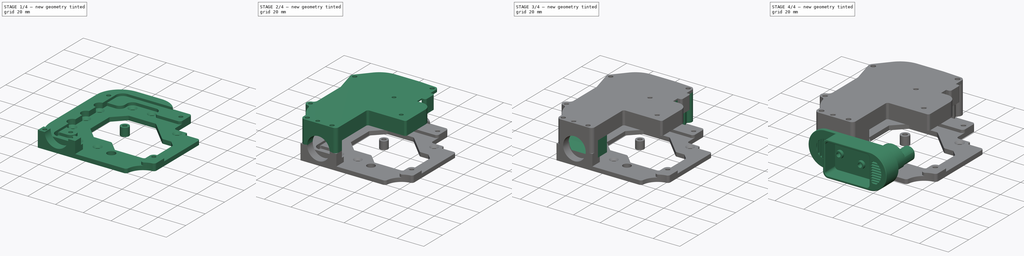
[diagram: build sequence overview — one tinted view per stage of 4, left to right]
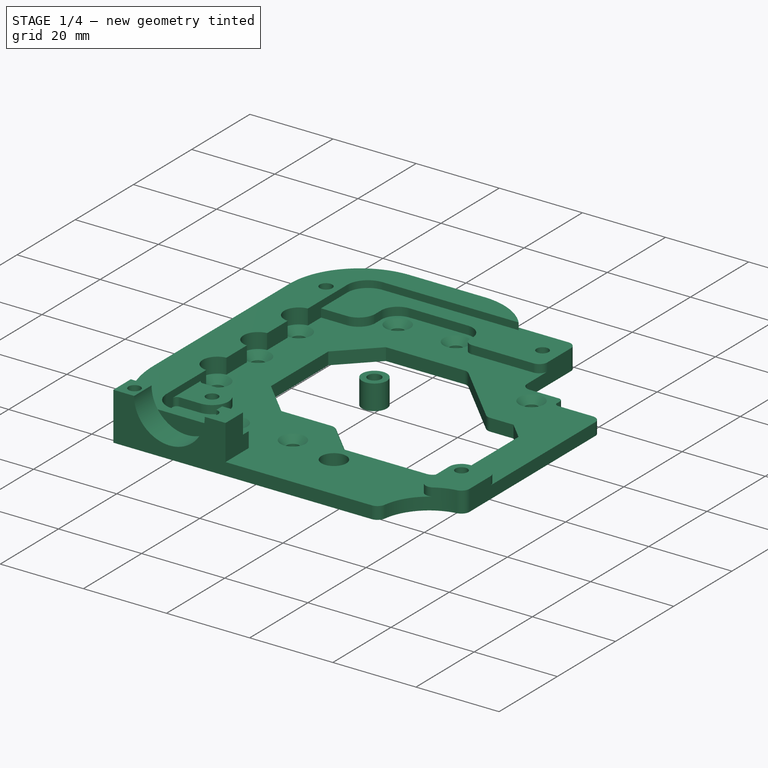
[diagram: stage 1 of 4 — iso view after this stage's code; geometry added in this stage tinted green]
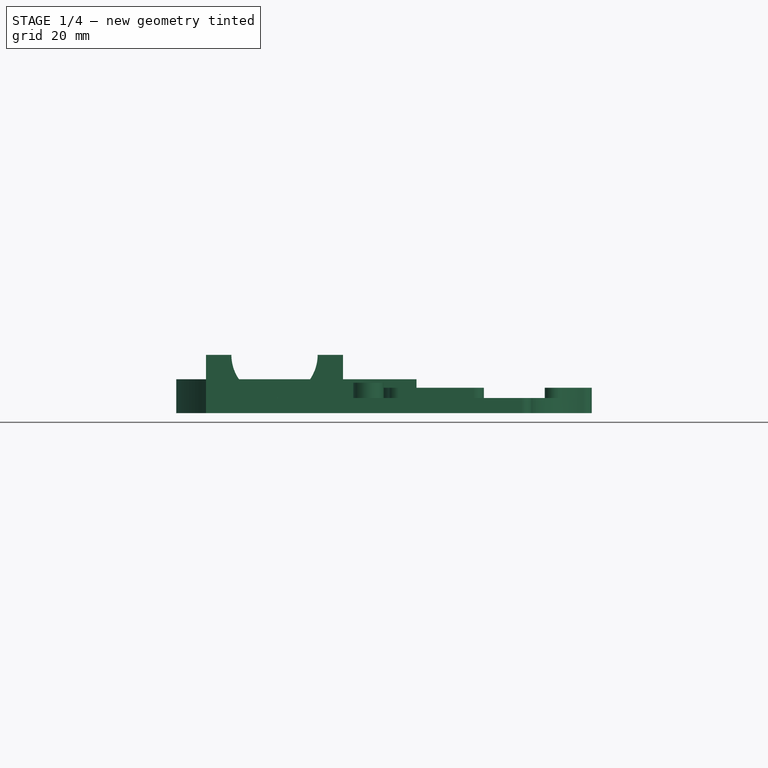
[diagram: stage 1 of 4 — front view after this stage's code; geometry added in this stage tinted green]
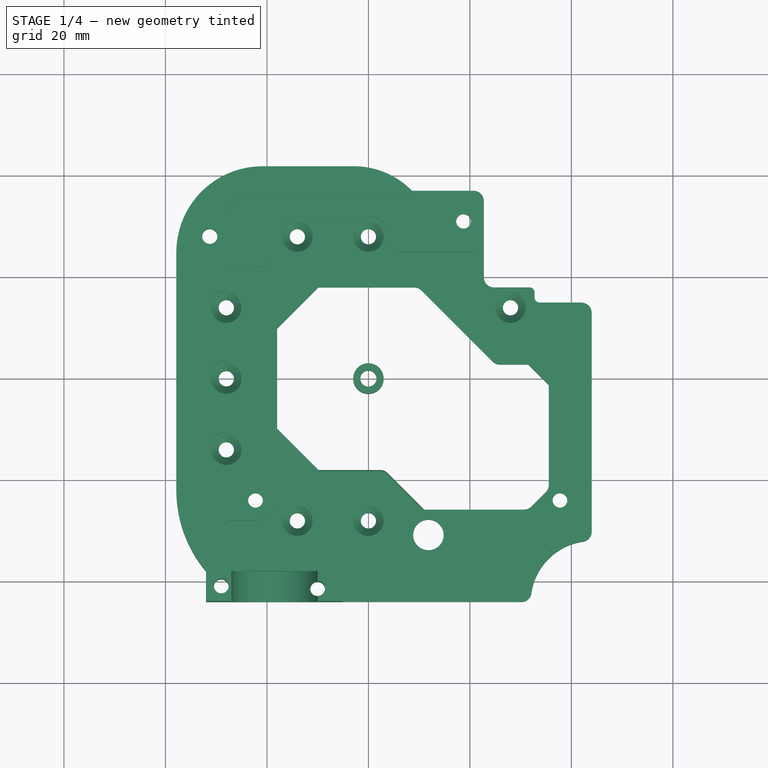
[diagram: stage 1 of 4 — top view after this stage's code; geometry added in this stage tinted green]
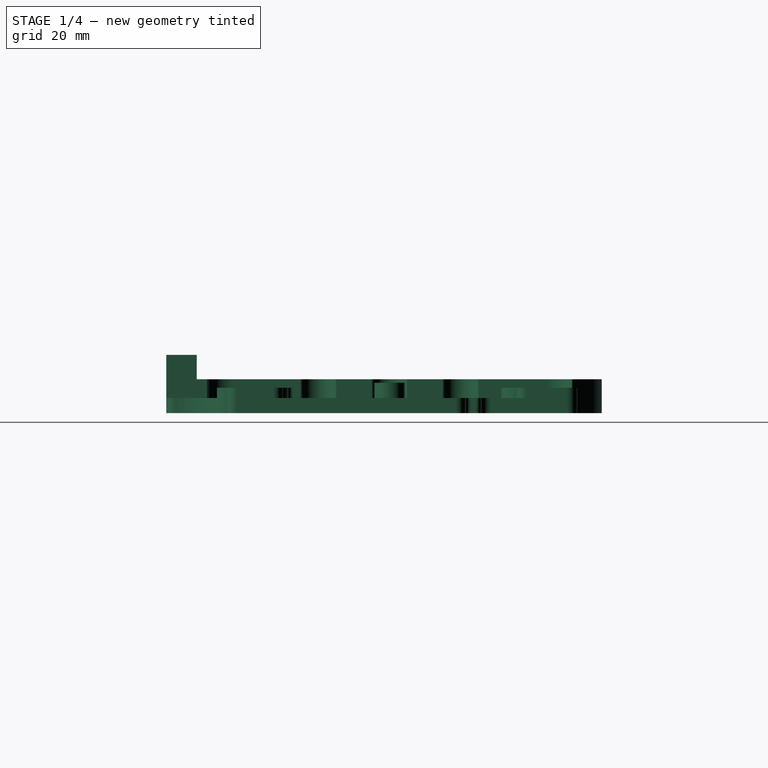
[diagram: stage 1 of 4 — right view after this stage's code; geometry added in this stage tinted green]
FCSTD DOCUMENT  (FreeCAD 0.19R17068 (Git))
Label: luftdaten_insert_Hensel_DK_0400_G
License: All rights reserved
LicenseURL: http://en.wikipedia.org/wiki/All_rights_reserved
objects: Sketcher::SketchObject×58, Part::Feature×35, PartDesign::ShapeBinder×28, PartDesign::Pad×22, PartDesign::Pocket×20, PartDesign::Chamfer×9, PartDesign::Plane×7, App::Part×6, PartDesign::Body×6, PartDesign::SubtractiveLoft×5, PartDesign::Fillet×4, PartDesign::AdditiveLoft×1
note: 243 computed .brp shape members not serialized (recipe doc carries the construction recipe); baked Part::Feature solids carry a one-line shape summary decoded from their .brp

FEATURE [PartDesign::ShapeBinder] CopyCopyPad022
  TraceSupport = false
FEATURE [Sketcher::SketchObject] Sketch092
  ExternalGeometry = -> [CopyCopyPad022]
  MapMode = 5
  Placement = pos=(0,0,28.6789) rot=(0,0,1;0rad)
  Support = -> [CopyCopyPad022]
  sketch-geometry (2):
    g0: Circle CenterX=-29 CenterY=-41.0039 CenterZ=0 NormalX=0 NormalY=0 NormalZ=1 AngleXU=0 Radius=1.45
    g1: Circle CenterX=-10.008 CenterY=-41.5039 CenterZ=0 NormalX=0 NormalY=0 NormalZ=1 AngleXU=0 Radius=1.45
  constraints (4):
    c: Coincident(g0,g-4)
    c: Coincident(g1,g-3)
    c: Equal(g1,g0)
    c: Radius(g1) = 1.45
FEATURE [PartDesign::Pocket] Pocket018
  BaseFeature = -> Chamfer004
  Length = 5
  Length2 = 100
  Profile = -> Sketch092
  Type = 1
FEATURE [PartDesign::Body] Body  label="Bottom insert"
  Group = -> [Sketch,Pad,Chamfer,DatumPlane,CopyPart__Feature006,CopyPart__Feature008,Sketch019,Pocket007,CopyPart__Feature008001,Sketch020,Pad006,Pad014,Sketch037,Sketch021,Pocket008,ShapeBinder,ShapeBinder001,ShapeBinder002,ShapeBinder003,ShapeBinder004,Pad018,Sketch047,Sketch025,Pad009,Fillet,Fillet001,Chamfer001,Sketch084,Pocket014,Chamfer004,CopyCopyPad022,Sketch092,Pocket018,Chamfer009]
  Origin = -> Origin001
  Tip = -> Chamfer009
FEATURE [App::Part] Part  label="Insert project"
  Group = -> [Body,Body001]
  Origin = -> Origin
FEATURE [Sketcher::SketchObject] Sketch103  label="M3 spacer cross-section"
  MapMode = 5
  Support = -> [XY_Plane012]
  sketch-geometry (2):
    g0: Circle CenterX=0 CenterY=0 CenterZ=0 NormalX=0 NormalY=0 NormalZ=1 AngleXU=0 Radius=1.6
    g1: Circle CenterX=0 CenterY=0 CenterZ=0 NormalX=0 NormalY=0 NormalZ=1 AngleXU=0 Radius=3
  constraints (4):
    c: Coincident(g1,g0)
    c: Diameter(g0) = 3.2
    c: Diameter(g1) = 6
    c: Coincident(g0,g-1)
FEATURE [PartDesign::Pad] Pad025  label="Pad M3x3"
  Length = 3
  Length2 = 100
  Profile = -> Sketch103
  Type = 0
FEATURE [PartDesign::Body] Body005  label="M3x3"
  Group = -> [Sketch103,Pad025]
  Origin = -> Origin012
  Tip = -> Pad025
FEATURE [PartDesign::Pad] Pad026  label="Pad M3x6"
  Length = 6
  Length2 = 100
  Profile = -> Sketch103
  Type = 0
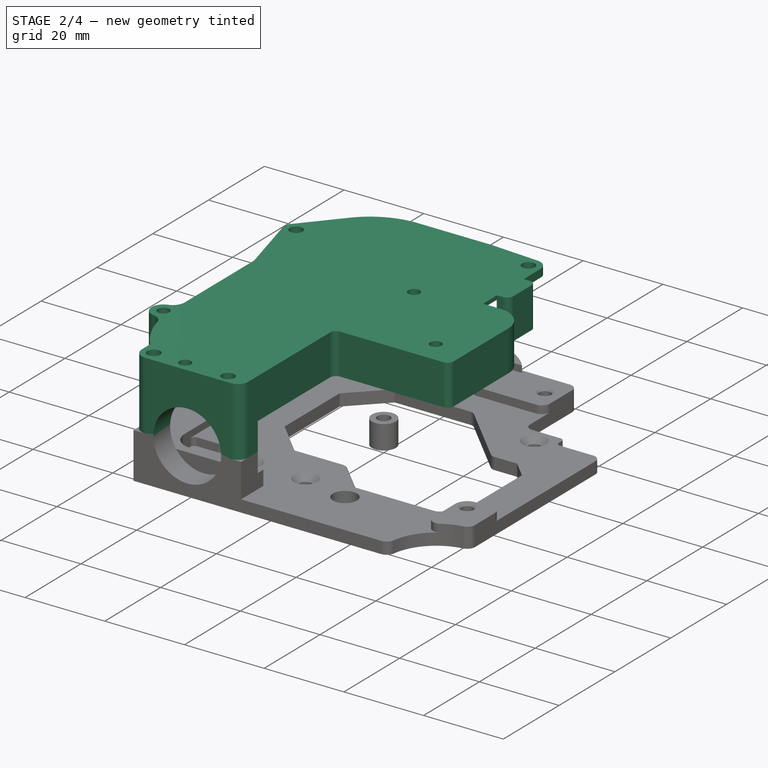
[diagram: stage 2 of 4 — iso view after this stage's code; geometry added in this stage tinted green]
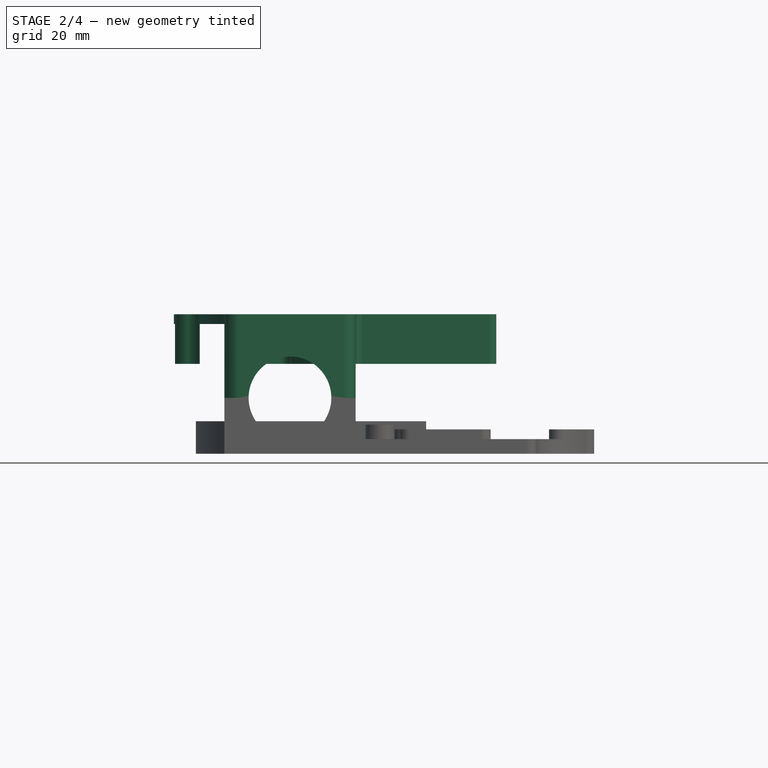
[diagram: stage 2 of 4 — front view after this stage's code; geometry added in this stage tinted green]
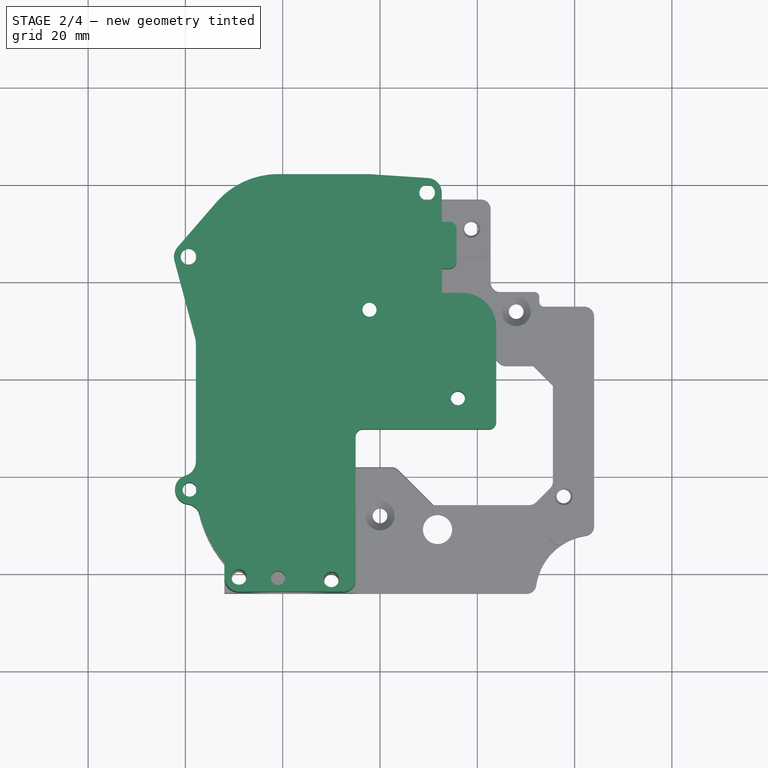
[diagram: stage 2 of 4 — top view after this stage's code; geometry added in this stage tinted green]
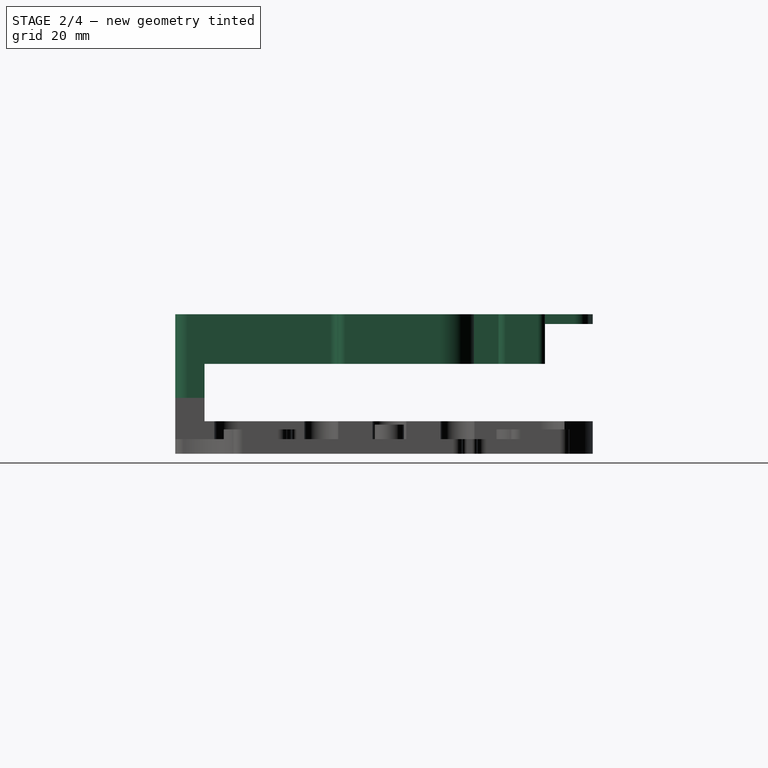
[diagram: stage 2 of 4 — right view after this stage's code; geometry added in this stage tinted green]
FEATURE [PartDesign::Body] Body001  label="External lower colar"
  Group = -> [DatumPlane001,CopyPart__Feature006001,Sketch003,Pad001,Sketch004,Pad002,Sketch005,Pocket,DatumPlane012,CopyPart__Feature006002,Sketch006,Pocket001,ReferencePart__Feature006,Sketch007,Sketch008,Pad003,Sketch009,Pocket002,CopyPart__Feature007,Pad004,Sketch015,Pocket005,Sketch016,Sketch017,Pocket006,Sketch018,Pad005,DatumPlane003,Sketch022,Pad007,DatumPlane004,Sketch033,Pocket010,SubtractiveLoft002,+29 more]
  Origin = -> Origin003
  Placement = pos=(0,1,0) rot=(0,0,1;0rad)
  Tip = -> SubtractiveLoft005
FEATURE [PartDesign::ShapeBinder] ShapeBinder026  label="NodeMCU PCB shape binder"
  Placement = pos=(8.97832,6.895,37.28) rot=(-0.862856,0.357407,-0.357407;1.71777rad)
  Support = -> [Part__Feature009]
  TraceSupport = true
FEATURE [Sketcher::SketchObject] Sketch100  label="MCU V3 pcb holes"
  AttachmentOffset = pos=(-1,0,0) rot=(0,0,1;0rad)
  ExternalGeometry = -> [ShapeBinder026]
  MapMode = 5
  Placement = pos=(8.27122,7.6021,37.28) rot=(2e-06,0,-1;0.785398rad)
  Support = -> [ShapeBinder026]
  sketch-geometry (8):
    g0: GeomPoint X=-11.85 Y=-2.9 Z=0
    g1: GeomPoint X=13.85 Y=-2.9 Z=0
    g2: GeomPoint X=-11.85 Y=-55.2 Z=0
    g3: GeomPoint X=13.85 Y=-55.2 Z=0
    g4: LineSegment StartX=-11.85 StartY=-2.9 StartZ=0 EndX=13.85 EndY=-2.9 EndZ=0
    g5: LineSegment StartX=13.85 StartY=-2.9 StartZ=0 EndX=13.85 EndY=-55.2 EndZ=0
    g6: LineSegment StartX=13.85 StartY=-55.2 StartZ=0 EndX=-11.85 EndY=-55.2 EndZ=0
    g7: LineSegment StartX=-11.85 StartY=-55.2 StartZ=0 EndX=-11.85 EndY=-2.9 EndZ=0
  constraints (12):
    c: Coincident(g0,g-4)
    c: Coincident(g1,g-6)
    c: Coincident(g2,g-8)
    c: Coincident(g3,g-10)
    c: Coincident(g4,g0)
    c: Coincident(g4,g1)
    c: Coincident(g4,g5)
    c: Coincident(g5,g3)
    c: Coincident(g5,g6)
    c: Coincident(g6,g2)
    c: Coincident(g6,g7)
    c: Coincident(g7,g4)
FEATURE [Sketcher::SketchObject] Sketch102
  ExternalGeometry = -> [Pocket011]
  MapMode = 5
  Placement = pos=(0,0,26.6789) rot=(0,0,1;0rad)
  Support = -> [Pocket011]
  sketch-geometry (4):
    g0: LineSegment StartX=-15.8552 StartY=-27.6 StartZ=0 EndX=-5.016 EndY=-27.6 EndZ=0
    g1: LineSegment StartX=-5.016 StartY=-27.6 StartZ=0 EndX=-5.016 EndY=-38.0039 EndZ=0
    g2: LineSegment StartX=-5.016 StartY=-38.0039 StartZ=0 EndX=-15.8552 EndY=-38.0039 EndZ=0
    g3: LineSegment StartX=-15.8552 StartY=-38.0039 StartZ=0 EndX=-15.8552 EndY=-27.6 EndZ=0
  constraints (10):
    c: Coincident(g0,g1)
    c: Coincident(g1,g2)
    c: Coincident(g2,g3)
    c: Coincident(g3,g0)
    c: Horizontal(g0)
    c: Horizontal(g2)
    c: Vertical(g1)
    c: Vertical(g3)
    c: Coincident(g0,g-4)
    c: Coincident(g1,g-3)
FEATURE [PartDesign::Chamfer] Chamfer009
  Base = -> Pocket018 [Edge278,Edge305,Edge298,Edge267,Edge356,Edge283]
  BaseFeature = -> Pocket018
  Size = 0.4
FEATURE [PartDesign::Body] Body006  label="M3x6"
  Group = -> [Pad026]
  Origin = -> Origin013
  Tip = -> Pad026
FEATURE [App::Part] Part004  label="Spacers"
  Group = -> [Body005,Body006]
  Origin = -> Origin011
FEATURE [App::Part] Part002  label="Outlet upper part"
  Group = -> [Body003]
  Origin = -> Origin006
FEATURE [PartDesign::Body] Body003  label="Upper part"
  Group = -> [ShapeBinder025,ShapeBinder020,ShapeBinder021,ShapeBinder022,ShapeBinder023,ShapeBinder024,Sketch087,ShapeBinder026,Sketch100,Sketch086,Pad021,Sketch089,Pad022,Sketch090,Pocket016,Sketch093,Pocket019,Sketch094,Pad023,Pad024,Sketch095,Pocket020,Sketch101,Pocket023,Chamfer008]
  Origin = -> Origin007
  Tip = -> Chamfer008
FEATURE [App::Part] Part003  label="Outlet lower part"
  Group = -> [Body004]
  Origin = -> Origin008
FEATURE [PartDesign::Body] Body004  label="Outlet lower body"
  Group = -> [ShapeBinder010,ShapeBinder019,ShapeBinder011,ShapeBinder013,ShapeBinder012,ShapeBinder018,Sketch048,ShapeBinder027,DatumPlane009,Sketch038,Pad015,Sketch039,Pocket011,Pocket024,Sketch102,ShapeBinder014,Sketch079,Pad019,Sketch080,Sketch081,SubtractiveLoft004,Sketch082,Sketch083,Pad020,Fillet003,Sketch085,Pocket015,Chamfer005,Chamfer006]
  Origin = -> Origin009
  Tip = -> Chamfer006
FEATURE [PartDesign::Pad] Pad019
  BaseFeature = -> Pocket024
  Length = 10
  Length2 = 100
  Placement = pos=(0,0,6.6789) rot=(0,0,1;0rad)
  Profile = -> Sketch079
  Type = 3
  UpToFace = -> ShapeBinder010 [Face93]
FEATURE [Sketcher::SketchObject] Sketch080  label="Lower half of the outlet ccrosssection contour"
  ExternalGeometry = -> [Sketch048,Pad019]
  MapMode = 5
  Placement = pos=(0,-38.0039,6.6789) rot=(1,0,0;1.5708rad)
  Support = -> [Pad019]
  sketch-geometry (4):
    g0: LineSegment StartX=-13.508 StartY=0 StartZ=0 EndX=-13.508 EndY=4.8211 EndZ=0
    g1: LineSegment StartX=-13.508 StartY=0 StartZ=0 EndX=-24.8921 EndY=9e-16 EndZ=0
    g2: LineSegment StartX=-13.508 StartY=4.8211 StartZ=0 EndX=-26.508 EndY=4.8211 EndZ=0
    g3: ArcOfCircle CenterX=-18.508 CenterY=4.8211 CenterZ=0 NormalX=0 NormalY=0 NormalZ=1 AngleXU=0 Radius=8 StartAngle=3.14159 EndAngle=3.7884
  constraints (10):
    c: PointOnObject(g0,g-7)
    c: Coincident(g0,g-6)
    c: Vertical(g0)
    c: Coincident(g1,g0)
    c: PointOnObject(g1,g-7)
    c: Coincident(g2,g0)
    c: Coincident(g2,g-5)
    c: Coincident(g3,g-6)
    c: Coincident(g3,g2)
    c: Coincident(g1,g3)
FEATURE [Sketcher::SketchObject] Sketch081
  ExternalGeometry = -> [Pad019]
  MapMode = 5
  Placement = pos=(0,-29.6,6.6789) rot=(0,0.707107,0.707107;3.14159rad)
  Support = -> [Pad019]
  sketch-geometry (4):
    g0: LineSegment StartX=16.8552 StartY=4.8211 StartZ=0 EndX=34.5402 EndY=4.8211 EndZ=0
    g1: LineSegment StartX=34.5402 StartY=4.8211 StartZ=0 EndX=34.5402 EndY=2 EndZ=0
    g2: LineSegment StartX=34.5402 StartY=2 StartZ=0 EndX=16.8552 EndY=2 EndZ=0
    g3: LineSegment StartX=16.8552 StartY=2 StartZ=0 EndX=16.8552 EndY=4.8211 EndZ=0
  constraints (10):
    c: Coincident(g0,g1)
    c: Coincident(g1,g2)
    c: Coincident(g2,g3)
    c: Coincident(g3,g0)
    c: Horizontal(g0)
    c: Horizontal(g2)
    c: Vertical(g1)
    c: Vertical(g3)
    c: Coincident(g0,g-3)
    c: Coincident(g1,g-4)
FEATURE [PartDesign::SubtractiveLoft] SubtractiveLoft004
  BaseFeature = -> Pad019
  Closed = true
  Placement = pos=(0,0,6.6789) rot=(0,0,1;0rad)
  Profile = -> Sketch080
  Ruled = true
  Sections = -> [Sketch081]
FEATURE [Sketcher::SketchObject] Sketch082
  ExternalGeometry = -> [SubtractiveLoft004]
  MapMode = 5
  Placement = pos=(0,0,26.6789) rot=(0,0,1;0rad)
  Support = -> [SubtractiveLoft004]
FEATURE [PartDesign::Pad] Pad020
  BaseFeature = -> SubtractiveLoft004
  Length = 10
  Length2 = 100
  Placement = pos=(0,0,6.6789) rot=(0,0,1;0rad)
  Profile = -> Sketch083
  Type = 3
  UpToFace = -> SubtractiveLoft004 [Face2]
FEATURE [PartDesign::Fillet] Fillet003  label="Fillet for external screws nests"
  Base = -> Pad020 [Edge55,Edge60,Edge67,Edge63]
  BaseFeature = -> Pad020
  Placement = pos=(0,0,6.6789) rot=(0,0,1;0rad)
  Radius = 1.5
FEATURE [PartDesign::Pocket] Pocket015  label="Additional screw hole"
  BaseFeature = -> Fillet003
  Length = 0
  Length2 = 100
  Placement = pos=(0,0,6.6789) rot=(0,0,1;0rad)
  Profile = -> Sketch085
  Type = 3
  UpToFace = -> Fillet003 [Face37]
FEATURE [PartDesign::Chamfer] Chamfer005
  Base = -> Pocket015 [Edge106]
  BaseFeature = -> Pocket015
  Placement = pos=(0,0,6.6789) rot=(0,0,1;0rad)
  Size = 1.5
FEATURE [PartDesign::ShapeBinder] ShapeBinder020  label="Middle part top surface binder"
  Support = -> [Chamfer005]
  TraceSupport = false
FEATURE [Sketcher::SketchObject] Sketch086  label="Base contour"
  ExternalGeometry = -> [ShapeBinder023,ShapeBinder020,Sketch087,ShapeBinder025,ShapeBinder022]
  MapMode = 5
  Placement = pos=(0,0,26.6789) rot=(0,0,1;0rad)
  Support = -> [ShapeBinder020]
  sketch-geometry (30):
    g0: ArcOfCircle CenterX=-39.36 CenterY=24.8048 CenterZ=0 NormalX=0 NormalY=0 NormalZ=1 AngleXU=0 Radius=3 StartAngle=2.42913 EndAngle=3.40339
    g1: ArcOfCircle CenterX=-20.86 CenterY=24.8048 CenterZ=0 NormalX=0 NormalY=0 NormalZ=1 AngleXU=0 Radius=17 StartAngle=1.5708 EndAngle=2.42913
    g2: ArcOfCircle CenterX=-2.85997 CenterY=25.8048 CenterZ=0 NormalX=0 NormalY=0 NormalZ=1 AngleXU=0 Radius=16 StartAngle=1.50449 EndAngle=1.5708
    g3: ArcOfCircle CenterX=9.691 CenterY=38 CenterZ=0 NormalX=0 NormalY=0 NormalZ=1 AngleXU=0 Radius=3 StartAngle=0.006251 EndAngle=1.50449
    g4: ArcOfCircle CenterX=-12.86 CenterY=-21.9211 CenterZ=0 NormalX=0 NormalY=0 NormalZ=1 AngleXU=0 Radius=25 StartAngle=3.14159 EndAngle=3.84041
    g5: ArcOfCircle CenterX=-3.516 CenterY=-7.1 CenterZ=0 NormalX=0 NormalY=0 NormalZ=1 AngleXU=0 Radius=1.5 StartAngle=1.5708 EndAngle=3.14159
    g6: LineSegment StartX=-37.86 StartY=-21.9211 StartZ=0 EndX=-37.86 EndY=6.95735 EndZ=0
    g7: LineSegment StartX=-20.86 StartY=41.8048 StartZ=0 EndX=-2.85997 EndY=41.8048 EndZ=0
    g8: LineSegment StartX=-3.516 StartY=-5.6 StartZ=0 EndX=11.2448 EndY=-5.6 EndZ=0
    g9: LineSegment StartX=12.7448 StartY=29.4 StartZ=0 EndX=12.7448 EndY=-4.1 EndZ=0
    g10: LineSegment StartX=-32 StartY=-38.0039 StartZ=0 EndX=-32 EndY=-41.0039 EndZ=0
    g11: LineSegment StartX=-29 StartY=-44.0039 StartZ=0 EndX=-7.516 EndY=-44.0039 EndZ=0
    g12: LineSegment StartX=-5.016 StartY=-41.5039 StartZ=0 EndX=-5.016 EndY=-7.1 EndZ=0
    g13: Circle CenterX=-39.36 CenterY=24.8048 CenterZ=0 NormalX=0 NormalY=0 NormalZ=1 AngleXU=0 Radius=1.6
    g14: Circle CenterX=9.691 CenterY=38 CenterZ=0 NormalX=0 NormalY=0 NormalZ=1 AngleXU=0 Radius=1.6
    g15: LineSegment StartX=-41.6302 StartY=26.7659 StartZ=0 EndX=-33.7248 EndY=35.9176 EndZ=0
    g16: LineSegment StartX=-1.79986 StartY=41.7696 StartZ=0 EndX=9.88977 EndY=40.9934 EndZ=0
    g17: LineSegment StartX=12.6909 StartY=38.0188 StartZ=0 EndX=12.7448 EndY=29.4 EndZ=0
    g18: ArcOfCircle CenterX=-42.86 CenterY=6.95735 CenterZ=0 NormalX=0 NormalY=0 NormalZ=1 AngleXU=0 Radius=5 StartAngle=0 EndAngle=0.261799
    g19: LineSegment StartX=-42.2577 StartY=24.0283 StartZ=0 EndX=-38.0303 EndY=8.25145 EndZ=0
    g20: ArcOfCircle CenterX=11.2448 CenterY=-4.1 CenterZ=0 NormalX=0 NormalY=0 NormalZ=1 AngleXU=0 Radius=1.5 StartAngle=4.71239 EndAngle=6.28319
    g21: LineSegment [constr] StartX=-10.008 StartY=-44.0039 StartZ=0 EndX=-10.008 EndY=-41.5039 EndZ=0
    g22: LineSegment [constr] StartX=-10.008 StartY=-41.5039 StartZ=0 EndX=-10.008 EndY=-39.0039 EndZ=0
    g23: Circle CenterX=-29 CenterY=-41.0039 CenterZ=0 NormalX=0 NormalY=0 NormalZ=1 AngleXU=0 Radius=1.6
    g24: Circle CenterX=-10.008 CenterY=-41.5039 CenterZ=0 NormalX=0 NormalY=0 NormalZ=1 AngleXU=0 Radius=1.6
    g25: ArcOfCircle CenterX=-7.516 CenterY=-41.5039 CenterZ=0 NormalX=0 NormalY=0 NormalZ=1 AngleXU=0 Radius=2.5 StartAngle=4.71239 EndAngle=6.28319
    g26: ArcOfCircle CenterX=-29 CenterY=-41.0039 CenterZ=0 NormalX=0 NormalY=0 NormalZ=1 AngleXU=0 Radius=3 StartAngle=3.14159 EndAngle=4.71239
    g27: LineSegment [constr] StartX=-29 StartY=-41.0039 StartZ=0 EndX=-29 EndY=-38.0039 EndZ=0
    g28: LineSegment [constr] StartX=-29 StartY=-41.0039 StartZ=0 EndX=-32 EndY=-41.0039 EndZ=0
    g29: LineSegment [constr] StartX=-29 StartY=-41.0039 StartZ=0 EndX=-29 EndY=-44.0039 EndZ=0
  constraints (1):
    c: Diameter(g13) = 3.2
FEATURE [PartDesign::Pad] Pad021  label="Base plate"
  Length = 2
  Length2 = 100
  Profile = -> Sketch086
  Type = 0
FEATURE [Sketcher::SketchObject] Sketch089  label="Upper pipe nest contour"
  ExternalGeometry = -> [Pad021]
  MapMode = 5
  Placement = pos=(0,0,28.6789) rot=(0,0,1;0rad)
  Support = -> [Pad021]
  sketch-geometry (8):
    g0: LineSegment StartX=-32 StartY=-41.0039 StartZ=0 EndX=-32 EndY=-38.0039 EndZ=0
    g1: LineSegment StartX=-32 StartY=-38.0039 StartZ=0 EndX=-5.016 EndY=-38.0039 EndZ=0
    g2: LineSegment StartX=-5.016 StartY=-38.0039 StartZ=0 EndX=-5.016 EndY=-41.5039 EndZ=0
    g3: LineSegment StartX=-7.516 StartY=-44.0039 StartZ=0 EndX=-29 EndY=-44.0039 EndZ=0
    g4: Circle CenterX=-10.008 CenterY=-41.5039 CenterZ=0 NormalX=0 NormalY=0 NormalZ=1 AngleXU=0 Radius=1.6
    g5: Circle CenterX=-29 CenterY=-41.0039 CenterZ=0 NormalX=0 NormalY=0 NormalZ=1 AngleXU=0 Radius=1.6
    g6: ArcOfCircle CenterX=-29 CenterY=-41.0039 CenterZ=0 NormalX=0 NormalY=0 NormalZ=1 AngleXU=0 Radius=3 StartAngle=3.14159 EndAngle=4.71239
    g7: ArcOfCircle CenterX=-7.516 CenterY=-41.5039 CenterZ=0 NormalX=0 NormalY=0 NormalZ=1 AngleXU=0 Radius=2.5 StartAngle=4.71239 EndAngle=6.28319
  constraints (19):
    c: Vertical(g0)
    c: Coincident(g0,g1)
    c: Horizontal(g1)
    c: Coincident(g1,g2)
    c: Horizontal(g3)
    c: Coincident(g5,g-5)
    c: Coincident(g7,g-7)
    c: Coincident(g2,g7)
    c: Coincident(g2,g-7)
    c: Coincident(g7,g3)
    c: Coincident(g3,g6)
    c: Coincident(g0,g6)
    c: Equal(g-5,g5)
    c: Coincident(g5,g6)
    c: Coincident(g4,g-8)
    c: Equal(g-8,g4)
    c: Coincident(g3,g-6)
    c: Coincident(g0,g-3)
    c: Vertical(g2)
FEATURE [PartDesign::Pad] Pad022  label="Upper pipe nest block"
  BaseFeature = -> Pad021
  Length = 10
  Length2 = 100
  Profile = -> Sketch089
  Type = 3
  UpToFace = -> ShapeBinder022 [Face1]
FEATURE [Sketcher::SketchObject] Sketch090
  ExternalGeometry = -> [ShapeBinder025]
  MapMode = 5
  Placement = pos=(0,-38.0039,0) rot=(0,0.707107,0.707107;3.14159rad)
  Support = -> [Pad022]
  sketch-geometry (1):
    g0: Circle CenterX=18.508 CenterY=11.5 CenterZ=0 NormalX=0 NormalY=0 NormalZ=1 AngleXU=0 Radius=8.5
FEATURE [PartDesign::Pocket] Pocket016
  BaseFeature = -> Pad022
  Length = 5
  Length2 = 100
  Profile = -> Sketch090
  Type = 1
FEATURE [Sketcher::SketchObject] Sketch093
  ExternalGeometry = -> [Sketch087]
  MapMode = 5
  Placement = pos=(0,0,26.6789) rot=(1,0,0;3.14159rad)
  Support = -> [Pad022]
  sketch-geometry (18):
    g0: LineSegment StartX=12.7448 StartY=5.6 StartZ=0 EndX=7.74482 EndY=5.6 EndZ=0
    g1: LineSegment StartX=7.74482 StartY=5.6 StartZ=0 EndX=7.74482 EndY=2.1 EndZ=0
    g2: LineSegment StartX=9.24482 StartY=0.6 StartZ=0 EndX=12.7448 EndY=0.6 EndZ=0
    g3: LineSegment StartX=12.7448 StartY=0.6 StartZ=0 EndX=12.7448 EndY=5.6 EndZ=0
    g4: LineSegment StartX=-17.2552 StartY=5.6 StartZ=0 EndX=-17.2552 EndY=2.1 EndZ=0
    g5: LineSegment StartX=-18.7552 StartY=0.6 StartZ=0 EndX=-22.2552 EndY=0.6 EndZ=0
    g6: LineSegment StartX=-22.2552 StartY=0.6 StartZ=0 EndX=-22.2552 EndY=5.6 EndZ=0
    g7: LineSegment StartX=-22.2552 StartY=5.6 StartZ=0 EndX=-17.2552 EndY=5.6 EndZ=0
    g8: LineSegment StartX=12.7448 StartY=-29.4 StartZ=0 EndX=7.74482 EndY=-29.4 EndZ=0
    g9: LineSegment StartX=7.74482 StartY=-29.4 StartZ=0 EndX=7.74482 EndY=-26.9 EndZ=0
    g10: LineSegment StartX=7.74482 StartY=-26.9 StartZ=0 EndX=3.24482 EndY=-26.9 EndZ=0
    g11: LineSegment StartX=1.74482 StartY=-25.4 StartZ=0 EndX=1.74482 EndY=-9.9 EndZ=0
    g12: LineSegment StartX=3.24482 StartY=-8.4 StartZ=0 EndX=12.7448 EndY=-8.4 EndZ=0
    g13: LineSegment StartX=12.7448 StartY=-8.4 StartZ=0 EndX=12.7448 EndY=-29.4 EndZ=0
    g14: ArcOfCircle CenterX=3.24482 CenterY=-25.4 CenterZ=0 NormalX=0 NormalY=0 NormalZ=1 AngleXU=0 Radius=1.5 StartAngle=3.14159 EndAngle=4.71239
    g15: ArcOfCircle CenterX=9.24482 CenterY=2.1 CenterZ=0 NormalX=0 NormalY=0 NormalZ=1 AngleXU=0 Radius=1.5 StartAngle=3.14159 EndAngle=4.71239
    g16: ArcOfCircle CenterX=-18.7552 CenterY=2.1 CenterZ=0 NormalX=0 NormalY=0 NormalZ=1 AngleXU=0 Radius=1.5 StartAngle=4.71239 EndAngle=6.28319
    g17: ArcOfCircle CenterX=3.24482 CenterY=-9.9 CenterZ=0 NormalX=0 NormalY=0 NormalZ=1 AngleXU=0 Radius=1.5 StartAngle=1.5708 EndAngle=3.14159
  constraints (27):
    c: Coincident(g0,g1)
    c: Vertical(g1)
    c: Horizontal(g2)
    c: Coincident(g2,g3)
    c: Coincident(g3,g0)
    c: Vertical(g4)
    c: Coincident(g5,g6)
    c: Coincident(g6,g7)
    c: Coincident(g8,g9)
    c: Vertical(g9)
    c: Coincident(g9,g10)
    c: Horizontal(g10)
    c: Vertical(g11)
    c: Horizontal(g12)
    c: Coincident(g12,g13)
    c: Coincident(g13,g8)
    c: Coincident(g4,g7)
    c: Vertical(g8,g0)
    c: Tangent(g10,g14) = 1.5708
    c: Tangent(g11,g14) = 1.5708
    c: DistanceY(g8,g9) = 2.5
    c: Tangent(g2,g15) = -1.5708
    c: Tangent(g1,g15) = -1.5708
    c: Tangent(g4,g16) = 1.5708
    c: Tangent(g5,g16) = 1.5708
    c: Tangent(g12,g17) = 1.5708
    c: Tangent(g11,g17) = 1.5708
FEATURE [PartDesign::Pocket] Pocket019
  BaseFeature = -> Pocket016
  Length = 1
  Length2 = 100
  Profile = -> Sketch093
  Type = 0
FEATURE [Sketcher::SketchObject] Sketch094
  ExternalGeometry = -> [Pocket019,Sketch087,ShapeBinder022,ShapeBinder020,ShapeBinder021,ShapeBinder024,Sketch100]
  MapMode = 5
  Placement = pos=(0,0,26.6789) rot=(1,0,0;3.14159rad)
  Support = -> [Pad022]
  sketch-geometry (34):
    g0: LineSegment StartX=-22.2552 StartY=5.6 StartZ=0 EndX=-22.2552 EndY=-29.4 EndZ=0
    g1: LineSegment StartX=-24.2552 StartY=-24.1085 StartZ=0 EndX=-24.2552 EndY=19.8108 EndZ=0
    g2: LineSegment StartX=-23.3609 StartY=20.7051 StartZ=0 EndX=-20.3591 EndY=20.7051 EndZ=0
    g3: LineSegment StartX=-18.3603 StartY=22.7039 StartZ=0 EndX=-18.3603 EndY=24.7057 EndZ=0
    g4: LineSegment StartX=-10.008 StartY=38.0039 StartZ=0 EndX=-5.016 EndY=38.0039 EndZ=0
    g5: LineSegment StartX=-5.016 StartY=38.0039 StartZ=0 EndX=-5.016 EndY=12.1 EndZ=0
    g6: LineSegment StartX=-3.516 StartY=10.6 StartZ=0 EndX=22.382 EndY=10.6 EndZ=0
    g7: LineSegment StartX=23.882 StartY=9.1 StartZ=0 EndX=23.882 EndY=-10.4 EndZ=0
    g8: LineSegment StartX=16.882 StartY=-17.4 StartZ=0 EndX=12.7448 EndY=-17.4 EndZ=0
    g9: LineSegment StartX=12.7448 StartY=-17.4 StartZ=0 EndX=12.7448 EndY=4.1 EndZ=0
    g10: LineSegment StartX=11.2448 StartY=5.6 StartZ=0 EndX=-22.2552 EndY=5.6 EndZ=0
    g11: LineSegment StartX=7.74482 StartY=-29.4 StartZ=0 EndX=7.74482 EndY=-32 EndZ=0
    g12: LineSegment StartX=7.74482 StartY=-32 StartZ=0 EndX=11.892 EndY=-32 EndZ=0
    g13: LineSegment StartX=11.892 StartY=-32 StartZ=0 EndX=14.2448 EndY=-32 EndZ=0
    g14: LineSegment StartX=15.7448 StartY=-30.5 StartZ=0 EndX=15.7448 EndY=-23.9 EndZ=0
    g15: LineSegment StartX=14.2448 StartY=-22.4 StartZ=0 EndX=12.7448 EndY=-22.4 EndZ=0
    g16: LineSegment StartX=12.7448 StartY=-22.4 StartZ=0 EndX=12.7448 EndY=-29.4 EndZ=0
    g17: LineSegment StartX=12.7448 StartY=-29.4 StartZ=0 EndX=7.74482 EndY=-29.4 EndZ=0
    g18: ArcOfCircle CenterX=22.382 CenterY=9.1 CenterZ=0 NormalX=0 NormalY=0 NormalZ=1 AngleXU=0 Radius=1.5 StartAngle=0 EndAngle=1.5708
    g19: ArcOfCircle CenterX=-3.516 CenterY=12.1 CenterZ=0 NormalX=0 NormalY=0 NormalZ=1 AngleXU=0 Radius=1.5 StartAngle=3.14159 EndAngle=4.71239
    g20: ArcOfCircle CenterX=14.2448 CenterY=-30.5 CenterZ=0 NormalX=0 NormalY=0 NormalZ=1 AngleXU=0 Radius=1.5 StartAngle=4.71239 EndAngle=6.28319
    g21: ArcOfCircle CenterX=11.2448 CenterY=4.1 CenterZ=0 NormalX=0 NormalY=0 NormalZ=1 AngleXU=0 Radius=1.5 StartAngle=0 EndAngle=1.5708
    g22: ArcOfCircle CenterX=-23.3609 CenterY=19.8108 CenterZ=0 NormalX=0 NormalY=0 NormalZ=1 AngleXU=0 Radius=0.8943 StartAngle=1.5708 EndAngle=3.14159
    g23: ArcOfCircle CenterX=-20.3591 CenterY=22.7039 CenterZ=0 NormalX=0 NormalY=0 NormalZ=1 AngleXU=0 Radius=1.99878 StartAngle=4.71239 EndAngle=6.28319
    g24: LineSegment StartX=-18.2017 StartY=25.2461 StartZ=0 EndX=-10.008 EndY=38.0039 EndZ=0
    g25: ArcOfCircle CenterX=-17.3603 CenterY=24.7057 CenterZ=0 NormalX=0 NormalY=0 NormalZ=1 AngleXU=0 Radius=1 StartAngle=2.57069 EndAngle=3.14159
    g26: ArcOfCircle CenterX=-16.2552 CenterY=-24.1085 CenterZ=0 NormalX=0 NormalY=0 NormalZ=1 AngleXU=0 Radius=8 StartAngle=3.14159 EndAngle=3.86433
    g27: ArcOfCircle CenterX=14.2448 CenterY=-23.9 CenterZ=0 NormalX=0 NormalY=0 NormalZ=1 AngleXU=0 Radius=1.5 StartAngle=6e-16 EndAngle=1.5708
    g28: ArcOfCircle CenterX=16.882 CenterY=-10.4 CenterZ=0 NormalX=0 NormalY=0 NormalZ=1 AngleXU=0 Radius=7 StartAngle=4.71239 EndAngle=6.28319
    g29: ArcOfCircle [constr] CenterX=-39.1403 CenterY=23.051 CenterZ=0 NormalX=0 NormalY=0 NormalZ=1 AngleXU=0 Radius=3 StartAngle=1.7064 EndAngle=4.4217
    g30: ArcOfCircle [constr] CenterX=-39.9514 CenterY=28.9959 CenterZ=0 NormalX=0 NormalY=0 NormalZ=1 AngleXU=0 Radius=3 StartAngle=4.84799 EndAngle=6.02775
    g31: ArcOfCircle [constr] CenterX=-40.86 CenterY=17.3027 CenterZ=0 NormalX=0 NormalY=0 NormalZ=1 AngleXU=0 Radius=3 StartAngle=5.58407e-06 EndAngle=1.28011
    g32: ArcOfCircle CenterX=-12.86 CenterY=21.9211 CenterZ=0 NormalX=0 NormalY=0 NormalZ=1 AngleXU=0 Radius=25 StartAngle=2.88615 EndAngle=3.14159
    g33: LineSegment StartX=-37.86 StartY=17.3027 StartZ=0 EndX=-37.86 EndY=21.9211 EndZ=0
  constraints (1):
    c: Equal(g29,g31)
FEATURE [PartDesign::Pad] Pad023
  BaseFeature = -> Pocket019
  Length = 10
  Length2 = 100
  Profile = -> Sketch094
  Type = 3
  UpToFace = -> Pocket019 [Face5]
FEATURE [PartDesign::Pad] Pad024
  BaseFeature = -> Pad023
  Length = 10
  Length2 = 100
  Profile = -> Sketch094
  Type = 3
  UpToFace = -> ShapeBinder021 [Face17]
FEATURE [Sketcher::SketchObject] Sketch095
  ExternalGeometry = -> [Sketch087]
  MapMode = 5
  Placement = pos=(12.7448,0,0) rot=(0.57735,-0.57735,-0.57735;2.0944rad)
  Support = -> [Pad024]
  sketch-geometry (4):
    g0: LineSegment StartX=22.6 StartY=18.4789 StartZ=0 EndX=14.6 EndY=18.4789 EndZ=0
    g1: LineSegment StartX=14.6 StartY=18.4789 StartZ=0 EndX=14.6 EndY=18.4789 EndZ=0
    g2: LineSegment StartX=14.6 StartY=18.4789 StartZ=0 EndX=22.6 EndY=18.4789 EndZ=0
    g3: LineSegment StartX=22.6 StartY=18.4789 StartZ=0 EndX=22.6 EndY=18.4789 EndZ=0
  constraints (10):
    c: Coincident(g0,g1)
    c: Coincident(g1,g2)
    c: Coincident(g2,g3)
    c: Coincident(g3,g0)
    c: Horizontal(g0)
    c: Horizontal(g2)
    c: Vertical(g1)
    c: Vertical(g3)
    c: Coincident(g0,g-4)
    c: Coincident(g1,g-6)
FEATURE [PartDesign::Pocket] Pocket020
  BaseFeature = -> Pad024
  Length = 1.5
  Length2 = 100
  Profile = -> Sketch095
  Type = 0
FEATURE [Sketcher::SketchObject] Sketch101  label="Node MCU holes contours"
  ExternalGeometry = -> [Sketch100]
  MapMode = 5
  Placement = pos=(0,0,28.6789) rot=(0,0,1;0rad)
  Support = -> [Pocket020]
  sketch-geometry (8):
    g0: GeomPoint X=-2.15861 Y=13.9307 Z=0
    g1: GeomPoint X=16.014 Y=-4.24194 Z=0
    g2: GeomPoint X=-20.9677 Y=-41.2236 Z=0
    g3: GeomPoint X=-39.1403 Y=-23.051 Z=0
    g4: Circle CenterX=-39.1403 CenterY=-23.051 CenterZ=0 NormalX=0 NormalY=0 NormalZ=1 AngleXU=0 Radius=1.45
    g5: Circle CenterX=-2.15861 CenterY=13.9307 CenterZ=0 NormalX=0 NormalY=0 NormalZ=1 AngleXU=0 Radius=1.45
    g6: Circle CenterX=16.014 CenterY=-4.24194 CenterZ=0 NormalX=0 NormalY=0 NormalZ=1 AngleXU=0 Radius=1.45
    g7: Circle CenterX=-20.9677 CenterY=-41.2236 CenterZ=0 NormalX=0 NormalY=0 NormalZ=1 AngleXU=0 Radius=1.45
  constraints (12):
    c: Coincident(g0,g-5)
    c: Coincident(g1,g-6)
    c: Coincident(g2,g-3)
    c: Coincident(g3,g-4)
    c: Coincident(g4,g3)
    c: Coincident(g5,g0)
    c: Coincident(g6,g1)
    c: Coincident(g7,g2)
    c: Diameter(g7) = 2.9
    c: Equal(g7,g4)
    c: Equal(g7,g6)
    c: Equal(g7,g5)
FEATURE [PartDesign::Pocket] Pocket023
  BaseFeature = -> Pocket020
  Length = 50
  Length2 = 100
  Profile = -> Sketch101
  Type = 0
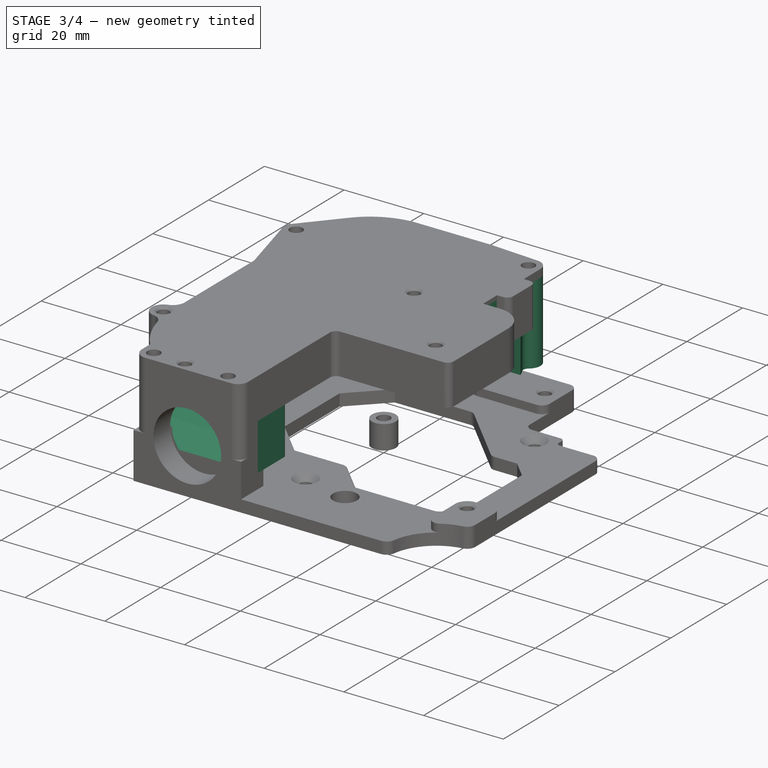
[diagram: stage 3 of 4 — iso view after this stage's code; geometry added in this stage tinted green]
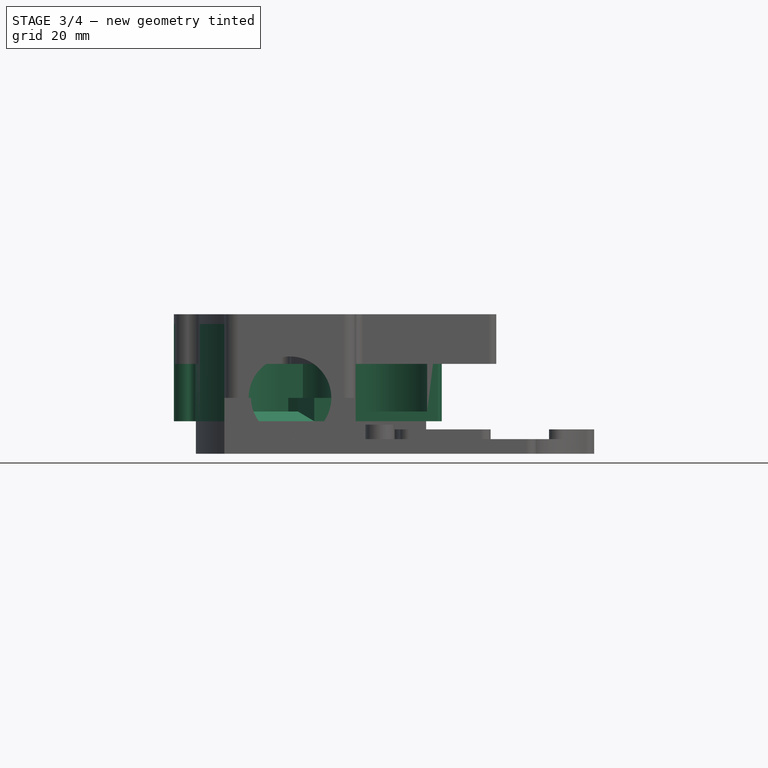
[diagram: stage 3 of 4 — front view after this stage's code; geometry added in this stage tinted green]
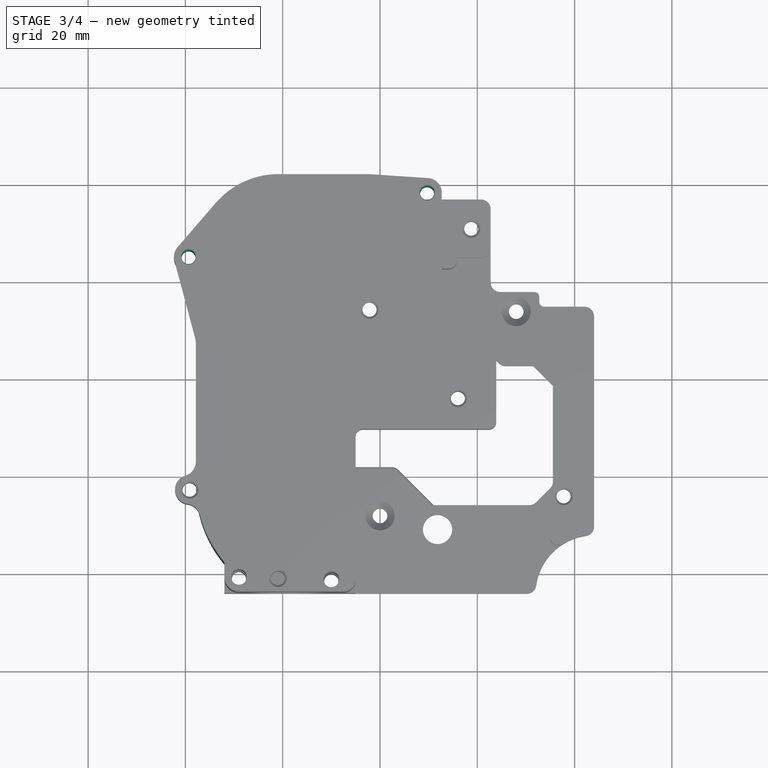
[diagram: stage 3 of 4 — top view after this stage's code; geometry added in this stage tinted green]
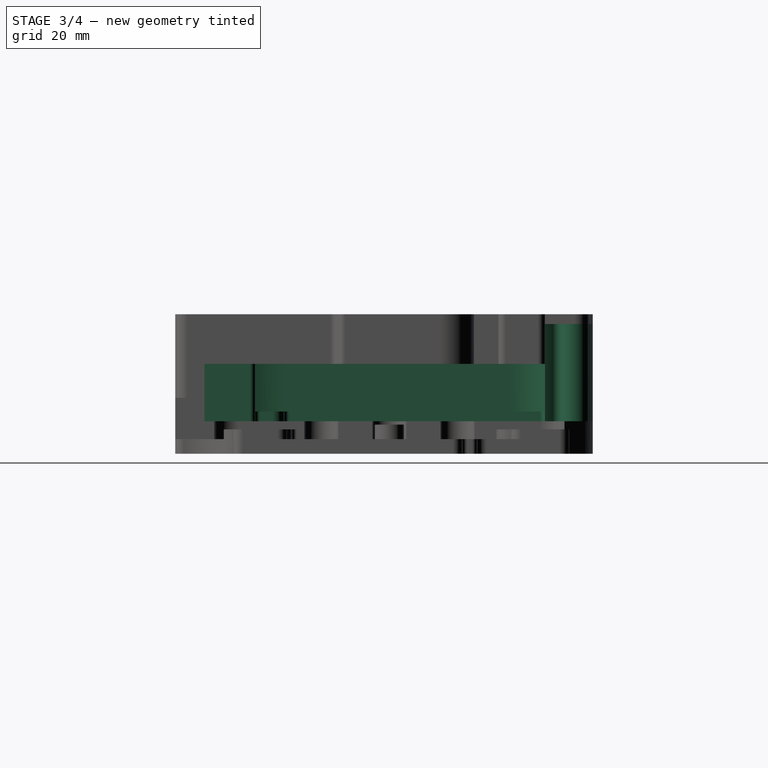
[diagram: stage 3 of 4 — right view after this stage's code; geometry added in this stage tinted green]
FEATURE [PartDesign::ShapeBinder] ShapeBinder027  label="Upper part shape binder"
  Support = -> [Pad024]
  TraceSupport = false
FEATURE [PartDesign::Pocket] Pocket024  label="Lowering right side of the outlet nest"
  BaseFeature = -> Pocket011
  Length = 0
  Length2 = 100
  Placement = pos=(0,0,6.6789) rot=(0,0,1;0rad)
  Profile = -> Sketch102
  Type = 3
  UpToFace = -> ShapeBinder027 [Face62]
FEATURE [PartDesign::Chamfer] Chamfer006
  Base = -> Chamfer005 [Edge150,Edge143]
  BaseFeature = -> Chamfer005
  Placement = pos=(0,0,6.6789) rot=(0,0,1;0rad)
  Size = 0.4
FEATURE [PartDesign::Chamfer] Chamfer008
  Base = -> Pocket023 [Edge173,Edge212,Edge204,Edge90]
  BaseFeature = -> Pocket023
  Size = 0.4
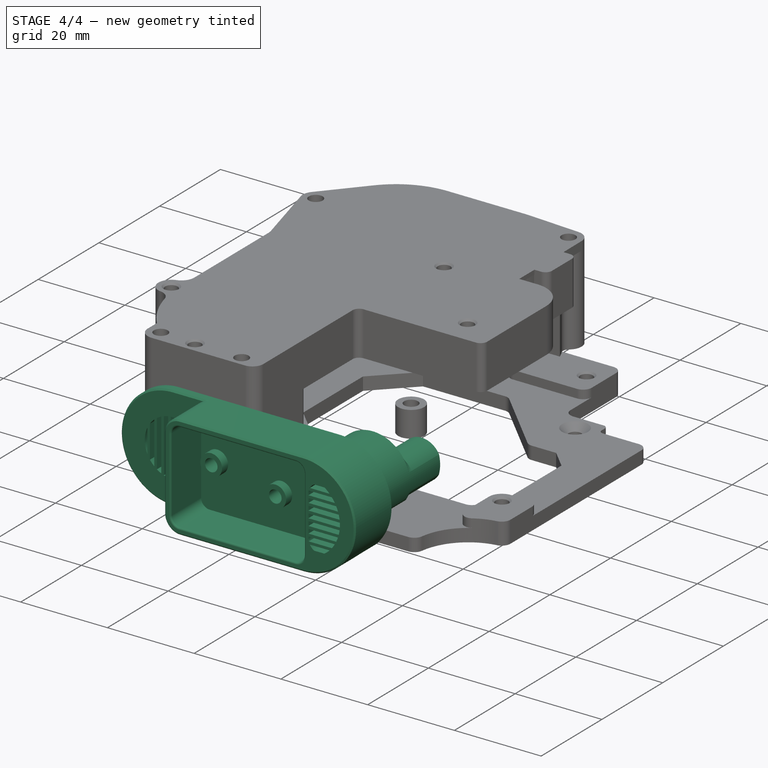
[diagram: stage 4 of 4 — iso view after this stage's code; geometry added in this stage tinted green]
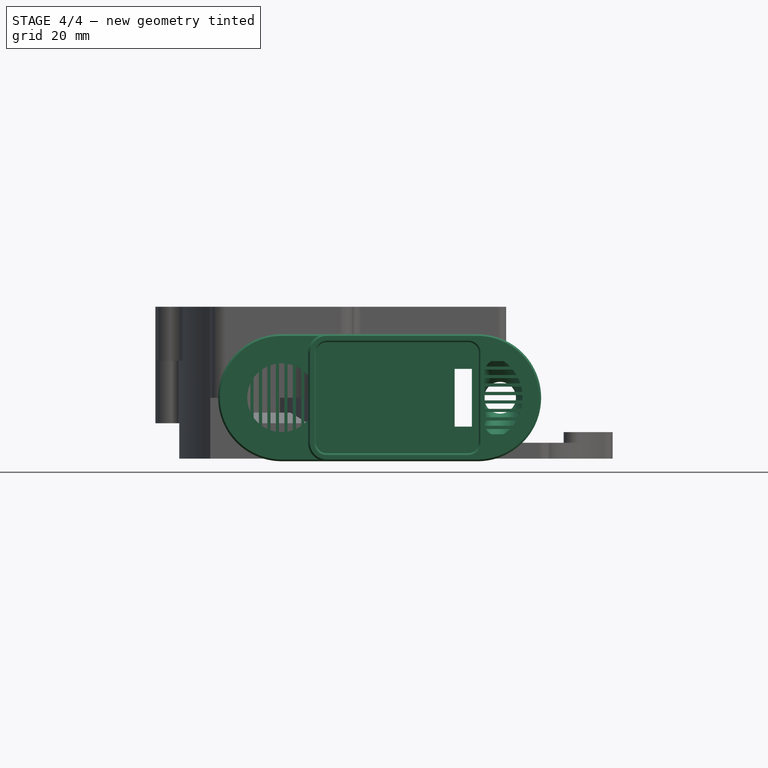
[diagram: stage 4 of 4 — front view after this stage's code; geometry added in this stage tinted green]
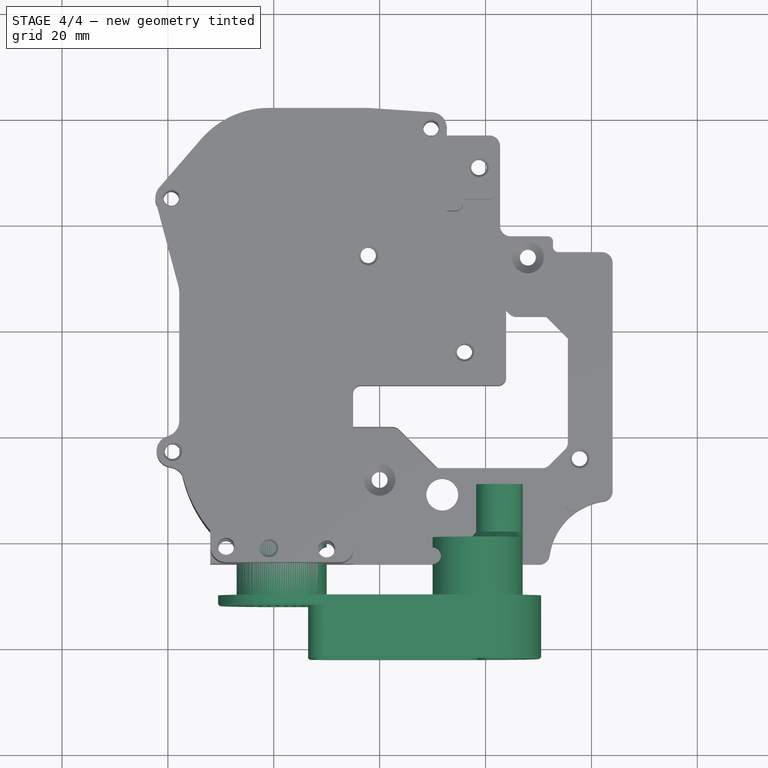
[diagram: stage 4 of 4 — top view after this stage's code; geometry added in this stage tinted green]
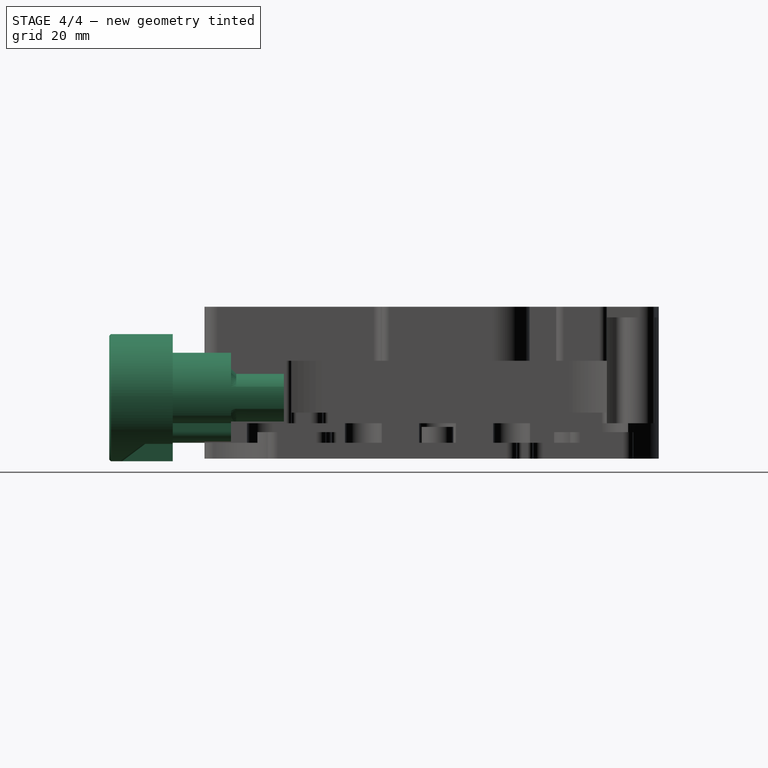
[diagram: stage 4 of 4 — right view after this stage's code; geometry added in this stage tinted green]
FEATURE [Part::Feature] Part__Feature001  label="V_62500052_00"
  shape: bbox 41.63 x 136.2 x 136.2 mm, 158 faces (baked)
FEATURE [Part::Feature] Part__Feature002  label="V_62520015_00"
  Placement = pos=(58.2647,92,-42) rot=(0.678702,-0.280582,-0.678702;2.5945rad)
  shape: bbox 28.48 x 14.34 x 14.34 mm, 15 faces (baked)
FEATURE [Part::Feature] Part__Feature003  label="V_62520015_001"
  Placement = pos=(58.2647,8,-42) rot=(0.357923,-0.862428,-0.357923;1.71826rad)
  shape: bbox 28.48 x 14.34 x 14.34 mm, 15 faces (baked)
FEATURE [Part::Feature] Part__Feature004  label="V_62520015_002"
  Placement = pos=(58.2647,8,42) rot=(-0.35689,-0.863284,0.35689;1.71728rad)
  shape: bbox 28.48 x 14.34 x 14.34 mm, 15 faces (baked)
FEATURE [Part::Feature] Part__Feature005  label="V_62520015_003"
  Placement = pos=(58.2647,92,42) rot=(0.678702,0.280582,-0.678702;3.68869rad)
  shape: bbox 28.48 x 14.34 x 14.34 mm, 15 faces (baked)
FEATURE [PartDesign::ShapeBinder] CopyPart__Feature006
  Placement = pos=(-0.0051828,-50.0039,-7) rot=(0,-1,0;1.5708rad)
  TraceSupport = false
FEATURE [PartDesign::Plane] DatumPlane
  AttachmentOffset = pos=(0,0,0) rot=(0,0,-1;1.5708rad)
  Length = 90.2504
  MapMode = 5
  Placement = pos=(-0.0051828,-50.0039,-7) rot=(1,0,0;1.5708rad)
  ResizeMode = 0
  Support = -> [CopyPart__Feature006]
  Width = 29.8904
FEATURE [PartDesign::ShapeBinder] CopyPart__Feature006001
  Placement = pos=(-0.0051828,-50.0039,-7) rot=(0,-1,0;1.5708rad)
  TraceSupport = false
FEATURE [PartDesign::Plane] DatumPlane001
  AttachmentOffset = pos=(0,0,0) rot=(0,0,-1;1.5708rad)
  Length = 24
  MapMode = 5
  Placement = pos=(-0.0051828,-50.0039,-7) rot=(1,0,0;1.5708rad)
  ResizeMode = 0
  Support = -> [CopyPart__Feature006001]
  Width = 24
FEATURE [Sketcher::SketchObject] Sketch003  label="Colar contour"
  ExternalGeometry = -> [CopyPart__Feature006001]
  MapMode = 5
  Placement = pos=(-0.0051828,-50.0039,-7) rot=(1,0,0;1.5708rad)
  Support = -> [DatumPlane001]
  sketch-geometry (4):
    g0: ArcOfCircle CenterX=18.5 CenterY=18.5 CenterZ=0 NormalX=0 NormalY=0 NormalZ=1 AngleXU=0 Radius=12 StartAngle=4.71239 EndAngle=7.85398
    g1: LineSegment StartX=-18.5028 StartY=30.5 StartZ=0 EndX=18.5 EndY=30.5 EndZ=0
    g2: LineSegment StartX=-18.5028 StartY=6.5 StartZ=0 EndX=18.5 EndY=6.5 EndZ=0
    g3: ArcOfCircle CenterX=-18.5028 CenterY=18.5 CenterZ=0 NormalX=0 NormalY=0 NormalZ=1 AngleXU=0 Radius=12 StartAngle=1.5708 EndAngle=4.71239
  constraints (12):
    c: Coincident(g0,g-3)
    c: Coincident(g1,g0)
    c: Horizontal(g1)
    c: Coincident(g2,g0)
    c: Horizontal(g2)
    c: Diameter(g3) = 24
    c: Coincident(g-4,g3)
    c: Vertical(g3,g3)
    c: Vertical(g3,g3)
    c: Coincident(g3,g1)
    c: Coincident(g3,g2)
    c: Equal(g3,g0)
FEATURE [PartDesign::Pad] Pad001  label="Lower colar"
  Length = 12
  Length2 = 100
  Placement = pos=(-0.0051828,-50.0039,-7) rot=(1,0,0;1.5708rad)
  Profile = -> Sketch003
  Type = 0
FEATURE [Sketcher::SketchObject] Sketch004  label="Connectin pipes contour"
  ExternalGeometry = -> [Sketch003,CopyPart__Feature006001]
  MapMode = 5
  Placement = pos=(-0.0051828,-50.0039,-7) rot=(1,0,0;1.5708rad)
  Support = -> [DatumPlane001]
  sketch-geometry (2):
    g0: Circle CenterX=-18.5028 CenterY=18.5 CenterZ=0 NormalX=0 NormalY=0 NormalZ=1 AngleXU=0 Radius=8.5
    g1: Circle CenterX=18.5 CenterY=18.5 CenterZ=0 NormalX=0 NormalY=0 NormalZ=1 AngleXU=0 Radius=8.5
  constraints (4):
    c: Diameter(g0) = 17
    c: Equal(g0,g1)
    c: Coincident(g-7,g0)
    c: Coincident(g1,g-8)
FEATURE [PartDesign::Pad] Pad002  label="Pipes"
  BaseFeature = -> Pad001
  Length = 3
  Length2 = 11
  Placement = pos=(-0.0051828,-50.0039,-7) rot=(1,0,0;1.5708rad)
  Profile = -> Sketch004
  Reversed = true
  Type = 4
FEATURE [Sketcher::SketchObject] Sketch005  label="colar pocket contour"
  ExternalGeometry = -> [Pad002]
  MapMode = 5
  Placement = pos=(-0.0051828,-62.0039,-7) rot=(1,0,0;1.5708rad)
  Support = -> [Pad002]
  sketch-geometry (15):
    g0: LineSegment StartX=-10.0028 StartY=29 StartZ=0 EndX=18.5 EndY=29 EndZ=0
    g1: LineSegment StartX=-10.0028 StartY=8 StartZ=0 EndX=18.5 EndY=8 EndZ=0
    g2: ArcOfCircle CenterX=-10.0028 CenterY=27 CenterZ=0 NormalX=0 NormalY=0 NormalZ=1 AngleXU=0 Radius=2 StartAngle=1.5708 EndAngle=3.14159
    g3: ArcOfCircle CenterX=-10.0028 CenterY=10 CenterZ=0 NormalX=0 NormalY=0 NormalZ=1 AngleXU=0 Radius=2 StartAngle=3.14159 EndAngle=4.71239
    g4: LineSegment StartX=-12.0028 StartY=27 StartZ=0 EndX=-12.0028 EndY=10 EndZ=0
    g5: LineSegment StartX=-13.5028 StartY=10 StartZ=0 EndX=-13.5028 EndY=27 EndZ=0
    g6: ArcOfCircle CenterX=-10.0028 CenterY=27 CenterZ=0 NormalX=0 NormalY=0 NormalZ=1 AngleXU=0 Radius=3.5 StartAngle=1.5708 EndAngle=3.14159
    g7: ArcOfCircle CenterX=-10.0028 CenterY=10 CenterZ=0 NormalX=0 NormalY=0 NormalZ=1 AngleXU=0 Radius=3.5 StartAngle=3.14159 EndAngle=4.71239
    g8: LineSegment StartX=-10.0028 StartY=30.5 StartZ=0 EndX=-10.0028 EndY=36 EndZ=0
    g9: LineSegment StartX=-10.0028 StartY=36 StartZ=0 EndX=-35.0028 EndY=36 EndZ=0
    g10: LineSegment StartX=-35.0028 StartY=36 StartZ=0 EndX=-35.0028 EndY=1 EndZ=0
    g11: LineSegment StartX=-35.0028 StartY=1 StartZ=0 EndX=-10.0028 EndY=1 EndZ=0
    g12: LineSegment StartX=-10.0028 StartY=1 StartZ=0 EndX=-10.0028 EndY=6.5 EndZ=0
    g13: Circle [constr] CenterX=-18.5028 CenterY=18.5 CenterZ=0 NormalX=0 NormalY=0 NormalZ=1 AngleXU=0 Radius=7
    g14: ArcOfCircle CenterX=18.5 CenterY=18.5 CenterZ=0 NormalX=0 NormalY=0 NormalZ=1 AngleXU=0 Radius=10.5 StartAngle=4.71239 EndAngle=7.85398
  constraints (40):
    c: Vertical(g-6,g1)
    c: Vertical(g-4,g0)
    c: Vertical(g4)
    c: Tangent(g4,g2) = -1.5708
    c: Tangent(g3,g4) = -1.5708
    c: Tangent(g1,g3) = -1.5708
    c: Tangent(g0,g2) = 1.5708
    c: Equal(g2,g3)
    c: Parallel(g-4,g0)
    c: Radius(g2) = 2
    c: Parallel(g0,g1)
    c: Vertical(g5)
    c: Coincident(g2,g6)
    c: Coincident(g3,g7)
    c: Vertical(g0,g6)
    c: Vertical(g6,g7)
    c: Tangent(g6,g5) = 1.5708
    c: Tangent(g7,g5) = 1.5708
    c: DistanceX(g5,g2) = 1.5
    c: Coincident(g6,g8)
    c: Coincident(g8,g9)
    c: Horizontal(g9)
    c: Coincident(g9,g10)
    c: Vertical(g10)
    c: Coincident(g10,g11)
    c: Coincident(g11,g12)
    c: Coincident(g12,g7)
    c: Vertical(g8)
    c: Vertical(g12)
    c: Horizontal(g11)
    c: DistanceX(g9,g9) = 25
    c: DistanceY(g10,g10) = 35
    c: Equal(g8,g12)
    c: Coincident(g13,g-8)
    c: Diameter(g13) = 14
    c: Distance(g13,g5) = 5
    c: PointOnObject(g6,g-6)
    c: Coincident(g-7,g14)
    c: Coincident(g0,g14)
    c: Coincident(g1,g14)
FEATURE [PartDesign::Pocket] Pocket  label="Colar pocket"
  BaseFeature = -> Pad002
  Length = 10
  Length2 = 100
  Placement = pos=(-0.0051828,-50.0039,-7) rot=(1,0,0;1.5708rad)
  Profile = -> Sketch005
  Type = 0
FEATURE [Part::Feature] Part__Feature006  label="DHT22"
  Placement = pos=(14.0699,-56.5089,7.69) rot=(0,-1,0;1.5708rad)
  shape: bbox 27.78 x 60.99 x 15.47 mm, 310 faces, 11 solids (baked)
FEATURE [PartDesign::ShapeBinder] CopyPart__Feature006002
  Placement = pos=(14.0699,-54.5089,7.69) rot=(0,-1,0;1.5708rad)
  TraceSupport = false
FEATURE [PartDesign::ShapeBinder] ReferencePart__Feature006
  Placement = pos=(14.0699,-56.5089,7.69) rot=(0,-1,0;1.5708rad)
  Support = -> [Part__Feature006]
  TraceSupport = false
FEATURE [Sketcher::SketchObject] Sketch007  label="DHT hole plane"
  MapMode = 5
  Placement = pos=(14.0699,-55.5239,7.69) rot=(0.57735,-0.57735,0.57735;2.0944rad)
  Support = -> [ReferencePart__Feature006]
FEATURE [Sketcher::SketchObject] Sketch008  label="DHT hole base contour"
  ExternalGeometry = -> [ReferencePart__Feature006]
  MapMode = 5
  Placement = pos=(-0.0051828,-52.0039,-7) rot=(1,0,0;1.5708rad)
  Support = -> [Pocket]
  sketch-geometry (1):
    g0: Circle CenterX=-8.27487 CenterY=18.5 CenterZ=0 NormalX=0 NormalY=0 NormalZ=1 AngleXU=0 Radius=2.5
  constraints (2):
    c: Coincident(g0,g-3)
    c: Radius(g0) = 2.5
FEATURE [Part::Feature] Part__Feature007  label="GY-BME280"
  Placement = pos=(17.0449,-53.0039,11.3701) rot=(0.57735,-0.57735,0.57735;2.0944rad)
  shape: bbox 13.54 x 3.646 x 10.72 mm, 1357 faces, 42 solids (baked)
FEATURE [PartDesign::ShapeBinder] CopyPart__Feature007
  Placement = pos=(17.0449,-53.0039,11.3701) rot=(0.57735,-0.57735,0.57735;2.0944rad)
  TraceSupport = false
FEATURE [Part::Feature] Part__Feature  label="V_62520066_00"
  shape: bbox 62.6 x 124.9 x 124.9 mm, 459 faces (baked)
FEATURE [App::Part] DK_04xx_00  label="DK 04xx_00"
  Group = -> [Part__Feature,Part__Feature001,Part__Feature002,Part__Feature003,Part__Feature004,Part__Feature005]
  Origin = -> Origin002
  Placement = pos=(1.8e-15,50,-6.90112) rot=(0.707107,0,0.707107;3.14159rad)
FEATURE [Sketcher::SketchObject] Sketch017  label="Inlet 6mm hole contour"
  MapMode = 5
  Placement = pos=(-0.0051828,-52.0039,-7) rot=(1,0,0;1.5708rad)
  sketch-geometry (2):
    g0: LineSegment [constr] StartX=18.5 StartY=18.5 StartZ=0 EndX=22.75 EndY=18.5 EndZ=0
    g1: Circle CenterX=22.75 CenterY=18.5 CenterZ=0 NormalX=0 NormalY=0 NormalZ=1 AngleXU=0 Radius=3
  constraints (4):
    c: Horizontal(g0)
    c: DistanceX(g0,g0) = 4.25
    c: Coincident(g1,g0)
    c: Diameter(g1) = 6
FEATURE [Part::Feature] Part__Feature008  label="PMsensor_Nova_SDS011"
  Placement = pos=(7.74482,0,4.9789) rot=(0,0,1;3.14159rad)
  shape: bbox 70 x 71.53 x 24.2 mm, 297 faces (baked)
FEATURE [PartDesign::ShapeBinder] CopyPart__Feature008
  Placement = pos=(7.74482,0,4.9789) rot=(0,0,1;3.14159rad)
  TraceSupport = false
FEATURE [PartDesign::ShapeBinder] CopyPart__Feature008001
  Placement = pos=(7.74482,0,4.9789) rot=(0,0,1;3.14159rad)
  TraceSupport = false
FEATURE [PartDesign::ShapeBinder] ShapeBinder
  Placement = pos=(7.74482,0,4.9789) rot=(0,0,1;3.14159rad)
  Support = -> [Part__Feature008]
  TraceSupport = false
FEATURE [Sketcher::SketchObject] Sketch  label="Bottom contour"
  ExternalGeometry = -> [ShapeBinder]
  MapMode = 5
  Support = -> [XY_Plane001]
  sketch-geometry (52):
    g0: LineSegment [constr] StartX=-32 StartY=44 StartZ=0 EndX=32 EndY=44 EndZ=0
    g1: LineSegment StartX=-32 StartY=-44 StartZ=0 EndX=30.1436 EndY=-44 EndZ=0
    g2: LineSegment [constr] StartX=44 StartY=32 StartZ=0 EndX=44 EndY=-32 EndZ=0
    g3: LineSegment [constr] StartX=-44 StartY=32 StartZ=0 EndX=-44 EndY=-32 EndZ=0
    g4: ArcOfCircle [constr] CenterX=-44 CenterY=44 CenterZ=0 NormalX=0 NormalY=0 NormalZ=1 AngleXU=0 Radius=12 StartAngle=4.71239 EndAngle=6.28319
    g5: ArcOfCircle [constr] CenterX=44 CenterY=44 CenterZ=0 NormalX=0 NormalY=0 NormalZ=1 AngleXU=0 Radius=12 StartAngle=3.14159 EndAngle=4.71239
    g6: ArcOfCircle [constr] CenterX=-44 CenterY=-44 CenterZ=0 NormalX=0 NormalY=0 NormalZ=1 AngleXU=0 Radius=12 StartAngle=0 EndAngle=1.5708
    g7: Circle CenterX=-14 CenterY=28 CenterZ=0 NormalX=0 NormalY=0 NormalZ=1 AngleXU=0 Radius=1.5
    g8: Circle CenterX=0 CenterY=28 CenterZ=0 NormalX=0 NormalY=0 NormalZ=1 AngleXU=0 Radius=1.5
    g9: Circle [constr] CenterX=14 CenterY=28 CenterZ=0 NormalX=0 NormalY=0 NormalZ=1 AngleXU=0 Radius=1.5
    g10: Circle [constr] CenterX=14 CenterY=-28 CenterZ=0 NormalX=0 NormalY=0 NormalZ=1 AngleXU=0 Radius=1.5
    g11: Circle CenterX=0 CenterY=-28 CenterZ=0 NormalX=0 NormalY=0 NormalZ=1 AngleXU=0 Radius=1.5
    g12: Circle CenterX=-14 CenterY=-28 CenterZ=0 NormalX=0 NormalY=0 NormalZ=1 AngleXU=0 Radius=1.5
    g13: Circle [constr] CenterX=28 CenterY=-14 CenterZ=0 NormalX=0 NormalY=0 NormalZ=1 AngleXU=0 Radius=1.5
    g14: Circle [constr] CenterX=28 CenterY=0 CenterZ=0 NormalX=0 NormalY=0 NormalZ=1 AngleXU=0 Radius=1.5
    g15: Circle CenterX=28 CenterY=14 CenterZ=0 NormalX=0 NormalY=0 NormalZ=1 AngleXU=0 Radius=1.5
    g16: Circle CenterX=-28 CenterY=-14 CenterZ=0 NormalX=0 NormalY=0 NormalZ=1 AngleXU=0 Radius=1.5
    g17: Circle CenterX=-28 CenterY=0 CenterZ=0 NormalX=0 NormalY=0 NormalZ=1 AngleXU=0 Radius=1.5
    g18: Circle CenterX=-28 CenterY=14 CenterZ=0 NormalX=0 NormalY=0 NormalZ=1 AngleXU=0 Radius=1.5
    g19: LineSegment [constr] StartX=-28 StartY=28 StartZ=0 EndX=28 EndY=28 EndZ=0
    g20: LineSegment [constr] StartX=28 StartY=28 StartZ=0 EndX=28 EndY=-28 EndZ=0
    g21: LineSegment [constr] StartX=28 StartY=-28 StartZ=0 EndX=-28 EndY=-28 EndZ=0
    g22: LineSegment [constr] StartX=-28 StartY=-28 StartZ=0 EndX=-28 EndY=28 EndZ=0
    g23: LineSegment StartX=44 StartY=-30.1436 StartZ=0 EndX=44 EndY=13 EndZ=0
    g24: LineSegment StartX=42 StartY=15 StartZ=0 EndX=33.7448 EndY=15 EndZ=0
    g25: LineSegment StartX=22.7448 StartY=35 StartZ=0 EndX=22.7448 EndY=20 EndZ=0
    g26: LineSegment StartX=20.7448 StartY=37 StartZ=0 EndX=-27 EndY=37 EndZ=0
    g27: LineSegment StartX=-32 StartY=32 StartZ=0 EndX=-32 EndY=-44 EndZ=0
    g28: ArcOfCircle CenterX=-27 CenterY=32 CenterZ=0 NormalX=0 NormalY=0 NormalZ=1 AngleXU=0 Radius=5 StartAngle=1.5708 EndAngle=3.14159
    g29: ArcOfCircle CenterX=20.7448 CenterY=35 CenterZ=0 NormalX=0 NormalY=0 NormalZ=1 AngleXU=0 Radius=2 StartAngle=1.4e-15 EndAngle=1.5708
    g30: LineSegment StartX=24.7448 StartY=18 StartZ=0 EndX=31.7448 EndY=18 EndZ=0
    g31: LineSegment StartX=32.7448 StartY=17 StartZ=0 EndX=32.7448 EndY=16 EndZ=0
    g32: LineSegment StartX=9.85786 StartY=-18 StartZ=0 EndX=18 EndY=-9.85786 EndZ=0
    g33: LineSegment StartX=18 StartY=-9.85786 StartZ=0 EndX=18 EndY=9.85786 EndZ=0
    g34: LineSegment StartX=18 StartY=9.85786 StartZ=0 EndX=9.85786 EndY=18 EndZ=0
    g35: LineSegment StartX=9.85786 StartY=18 StartZ=0 EndX=-9.85786 EndY=18 EndZ=0
    g36: LineSegment StartX=-9.85786 StartY=18 StartZ=0 EndX=-18 EndY=9.85786 EndZ=0
    g37: LineSegment StartX=-18 StartY=9.85786 StartZ=0 EndX=-18 EndY=-9.85786 EndZ=0
    g38: LineSegment StartX=-18 StartY=-9.85786 StartZ=0 EndX=-9.85786 EndY=-18 EndZ=0
    g39: LineSegment StartX=-9.85786 StartY=-18 StartZ=0 EndX=9.85786 EndY=-18 EndZ=0
    g40: Circle [constr] CenterX=0 CenterY=0 CenterZ=0 NormalX=0 NormalY=0 NormalZ=1 AngleXU=0 Radius=20.5226
    g41: LineSegment [constr] StartX=-28 StartY=-14 StartZ=0 EndX=-14 EndY=-28 EndZ=0
    g42: LineSegment [constr] StartX=-18 StartY=-9.85786 StartZ=0 EndX=-25.0711 EndY=-16.9289 EndZ=0
    g43: ArcOfCircle CenterX=42 CenterY=-30.1436 CenterZ=0 NormalX=0 NormalY=0 NormalZ=1 AngleXU=0 Radius=2 StartAngle=4.85574 EndAngle=6.28319
    g44: ArcOfCircle CenterX=30.1436 CenterY=-42 CenterZ=0 NormalX=0 NormalY=0 NormalZ=1 AngleXU=0 Radius=2 StartAngle=4.71239 EndAngle=6.13984
    g45: ArcOfCircle CenterX=24.7448 CenterY=20 CenterZ=0 NormalX=0 NormalY=0 NormalZ=1 AngleXU=0 Radius=2 StartAngle=3.14159 EndAngle=4.71239
    g46: ArcOfCircle CenterX=42 CenterY=13 CenterZ=0 NormalX=0 NormalY=0 NormalZ=1 AngleXU=0 Radius=2 StartAngle=1e-16 EndAngle=1.5708
    g47: ArcOfCircle [constr] CenterX=44 CenterY=-44 CenterZ=0 NormalX=0 NormalY=0 NormalZ=1 AngleXU=0 Radius=12 StartAngle=1.5708 EndAngle=3.14159
    g48: LineSegment [constr] StartX=-32 StartY=-44 StartZ=0 EndX=32 EndY=-44 EndZ=0
    g49: ArcOfCircle CenterX=44 CenterY=-44 CenterZ=0 NormalX=0 NormalY=0 NormalZ=1 AngleXU=0 Radius=12 StartAngle=1.71414 EndAngle=2.99825
    g50: ArcOfCircle CenterX=33.7448 CenterY=16 CenterZ=0 NormalX=0 NormalY=0 NormalZ=1 AngleXU=0 Radius=1 StartAngle=3.14159 EndAngle=4.71239
    g51: ArcOfCircle CenterX=31.7448 CenterY=17 CenterZ=0 NormalX=0 NormalY=0 NormalZ=1 AngleXU=0 Radius=1 StartAngle=-1.8e-15 EndAngle=1.5708
  constraints (133):
    c: Vertical(g2)
    c: Equal(g4,g5)
    c: Coincident(g4,g0)
    c: Coincident(g0,g5)
    c: Coincident(g5,g2)
    c: Coincident(g6,g3)
    c: Coincident(g3,g4)
    c: Equal(g3,g0)
    c: Equal(g0,g2)
    c: Radius(g4) = 12
    c: Horizontal(g6,g1)
    c: Vertical(g6,g3)
    c: Diameter(g7) = 3
    c: Equal(g7,g8)
    c: Equal(g7,g10)
    c: Equal(g7, g13-g18) x6
    c: Equal(g7,g9)
    c: Equal(g7,g11)
    c: Equal(g7,g12)
    c: PointOnObject(g8,g-2)
    c: PointOnObject(g14,g-1)
    c: Vertical(g14,g15)
    c: Horizontal(g8,g7)
    c: Symmetric(g9,g7,g-2)
    c: Symmetric(g13,g15,g-1)
    c: Symmetric(g9,g12,g-1)
    c: Symmetric(g8,g11,g-1)
    c: Symmetric(g10,g7,g-1)
    c: Symmetric(g13,g18,g-1)
    c: Symmetric(g14,g17,g-1)
    c: Symmetric(g15,g16,g-1)
    c: Horizontal(g4,g0)
    c: Coincident(g19,g20)
    c: Coincident(g20,g21)
    c: Coincident(g21,g22)
    c: Coincident(g22,g19)
    c: Horizontal(g19)
    c: Horizontal(g21)
    c: Vertical(g20)
    c: Vertical(g22)
    c: DistanceX(g19,g19) = 56
    c: Equal(g19,g22)
    c: Symmetric(g19,g20,g-1)
    c: PointOnObject(g9,g19)
    c: PointOnObject(g18,g22)
    c: DistanceY(g13,g15) = 28
    c: DistanceX(g7,g9) = 28
    c: DistanceX(g3,g2) = 88
    c: Vertical(g23)
    c: Horizontal(g24)
    c: Vertical(g25)
    c: Horizontal(g26)
    c: Vertical(g27)
    c: Tangent(g26,g28) = -1.5708
    c: Tangent(g27,g28) = -1.5708
    c: Radius(g28) = 5
    c: Tangent(g25,g29) = 1.5708
    c: Tangent(g26,g29) = -1.5708
    c: Radius(g29) = 2
    c: DistanceX(g-5,g25) = 4
    c: DistanceY(g-3,g26) = 2
    c: Horizontal(g30)
    c: Vertical(g31)
    c: Coincident(g32,g33)
    c: Coincident(g33,g34)
    c: Coincident(g34,g35)
    c: Coincident(g35,g36)
    c: Coincident(g36,g37)
    c: Coincident(g37,g38)
    c: Coincident(g38,g39)
    c: Coincident(g39,g32)
    c: Equal(g32,g34)
    c: Equal(g32,g36)
    c: Equal(g32,g38)
    c: PointOnObject(g32,g40)
    c: PointOnObject(g33,g40)
    c: PointOnObject(g34,g40)
    c: PointOnObject(g35,g40)
    c: PointOnObject(g36,g40)
    c: PointOnObject(g37,g40)
    c: PointOnObject(g38,g40)
    c: PointOnObject(g39,g40)
    c: Coincident(g40,g-1)
    c: Equal(g35,g37)
    c: Equal(g35,g39)
    c: Equal(g35,g33)
    c: Horizontal(g35)
    c: DistanceY(g35,g19) = 10
    c: Coincident(g41,g16)
    c: Coincident(g41,g12)
    c: Coincident(g42,g37)
    c: PointOnObject(g42,g41)
    c: Perpendicular(g41,g42)
    c: Distance(g42) = 10
    c: Tangent(g23,g43) = -1.5708
    c: Tangent(g1,g44) = -1.5708
    c: Equal(g44,g29)
    c: Equal(g43,g29)
    c: Tangent(g25,g45) = -1.5708
    c: Tangent(g30,g45) = -1.5708
    c: Equal(g45,g29)
    c: Tangent(g24,g46) = -1.5708
    c: Tangent(g23,g46) = -1.5708
    c: DistanceY(g24,g-3) = 20
    c: Equal(g29,g46)
    c: Vertical(g4,g3)
    c: Coincident(g48,g6)
    c: Horizontal(g48)
    c: Coincident(g47,g48)
    c: Coincident(g2,g47)
    c: Horizontal(g47,g6)
    c: Equal(g47,g49)
    c: Coincident(g47,g49)
    c: Tangent(g49,g44) = 1.5708
    c: Tangent(g43,g49) = 1.5708
    c: PointOnObject(g23,g2)
    c: Tangent(g31,g50) = -1.5708
    c: Tangent(g24,g50) = 1.5708
    c: Radius(g50) = 1
    c: DistanceX(g31,g-3) = 10
    c: DistanceY(g30,g-3) = 17
    c: Tangent(g30,g51) = 1.5708
    c: Tangent(g31,g51) = 1.5708
    c: Equal(g50,g51)
    c: DistanceY(g6,g0) = 88
    c: Vertical(g49,g2)
    c: Vertical(g5,g2)
    c: Horizontal(g5,g0)
    c: Symmetric(g0,g0,g-2)
    c: Symmetric(g3,g3,g-1)
    c: Coincident(g27,g6)
    c: Coincident(g1,g27)
    c: Horizontal(g1)
FEATURE [PartDesign::Pad] Pad  label="Pad: Bottom plate"
  Length = 3
  Length2 = 100
  Profile = -> Sketch
  Type = 0
FEATURE [Sketcher::SketchObject] Sketch019  label="Metal plate hole contour"
  ExternalGeometry = -> [CopyPart__Feature008,Sketch]
  MapMode = 5
  Placement = pos=(7.74482,0,2.4789) rot=(0,1,0;3.14159rad)
  Support = -> [CopyPart__Feature008]
  sketch-geometry (19):
    g0: LineSegment StartX=-23.7456 StartY=2.8 StartZ=0 EndX=-17.313 EndY=2.8 EndZ=0
    g1: LineSegment StartX=4.54558 StartY=9.85786 StartZ=0 EndX=4.54558 EndY=-18 EndZ=0
    g2: LineSegment StartX=-3.25442 StartY=-25.8 StartZ=0 EndX=-23.7456 EndY=-25.8 EndZ=0
    g3: LineSegment StartX=-27.8 StartY=-21.7456 StartZ=0 EndX=-27.8 EndY=-1.25442 EndZ=0
    g4: LineSegment StartX=-17.313 StartY=2.8 StartZ=0 EndX=-10.2552 EndY=9.85786 EndZ=0
    g5: LineSegment StartX=-27.8 StartY=-1.25442 StartZ=0 EndX=-23.7456 EndY=2.8 EndZ=0
    g6: LineSegment StartX=-27.8 StartY=-21.7456 StartZ=0 EndX=-23.7456 EndY=-25.8 EndZ=0
    g7: LineSegment StartX=-3.25442 StartY=-25.8 StartZ=0 EndX=4.54558 EndY=-18 EndZ=0
    g8: Circle [constr] CenterX=-22.9172 CenterY=0.8 CenterZ=0 NormalX=0 NormalY=0 NormalZ=1 AngleXU=0 Radius=2
    g9: Circle [constr] CenterX=-25.8 CenterY=-2.08284 CenterZ=0 NormalX=0 NormalY=0 NormalZ=1 AngleXU=0 Radius=2
    g10: Circle [constr] CenterX=-25.8 CenterY=-20.9172 CenterZ=0 NormalX=0 NormalY=0 NormalZ=1 AngleXU=0 Radius=2
    g11: Circle [constr] CenterX=-22.9172 CenterY=-23.8 CenterZ=0 NormalX=0 NormalY=0 NormalZ=1 AngleXU=0 Radius=2
    g12: Circle [constr] CenterX=-4.08284 CenterY=-23.8 CenterZ=0 NormalX=0 NormalY=0 NormalZ=1 AngleXU=0 Radius=2
    g13: Circle [constr] CenterX=-1.2 CenterY=-20.9172 CenterZ=0 NormalX=0 NormalY=0 NormalZ=1 AngleXU=0 Radius=2
    g14: Circle [constr] CenterX=-1.2 CenterY=-2.08284 CenterZ=0 NormalX=0 NormalY=0 NormalZ=1 AngleXU=0 Radius=2
    g15: Circle [constr] CenterX=-4.08284 CenterY=0.8 CenterZ=0 NormalX=0 NormalY=0 NormalZ=1 AngleXU=0 Radius=2
    g16: LineSegment [constr] StartX=-4.08284 StartY=-23.8 StartZ=0 EndX=-4.08284 EndY=-30.8 EndZ=0
    g17: Circle CenterX=-4.08284 CenterY=-30.8 CenterZ=0 NormalX=0 NormalY=0 NormalZ=1 AngleXU=0 Radius=3
    g18: LineSegment StartX=-10.2552 StartY=9.85786 StartZ=0 EndX=4.54558 EndY=9.85786 EndZ=0
FEATURE [PartDesign::ShapeBinder] ShapeBinder001
  Placement = pos=(7.74482,0,4.9789) rot=(0,0,1;3.14159rad)
  Support = -> [Part__Feature008]
  TraceSupport = false
FEATURE [PartDesign::ShapeBinder] ShapeBinder002
  Placement = pos=(7.74482,0,4.9789) rot=(0,0,1;3.14159rad)
  Support = -> [Part__Feature008]
  TraceSupport = false
FEATURE [PartDesign::ShapeBinder] ShapeBinder003
  Placement = pos=(-1e-15,12,4e-15) rot=(0,0,1;0rad)
  TraceSupport = false
FEATURE [PartDesign::ShapeBinder] ShapeBinder004
  Placement = pos=(-0.0051828,-50.0039,-7) rot=(1,0,0;1.5708rad)
  TraceSupport = false
FEATURE [PartDesign::ShapeBinder] ShapeBinder011  label="Sensor board surface"
  Placement = pos=(7.74482,0,4.9789) rot=(0,0,1;3.14159rad)
  Support = -> [Part__Feature008]
  TraceSupport = false
FEATURE [PartDesign::ShapeBinder] ShapeBinder012  label="Sensor fan top surface"
  Placement = pos=(7.74482,0,4.9789) rot=(0,0,1;3.14159rad)
  Support = -> [Part__Feature008]
  TraceSupport = false
FEATURE [PartDesign::ShapeBinder] ShapeBinder013  label="Sensor main chamber top surface"
  Placement = pos=(7.74482,0,4.9789) rot=(0,0,1;3.14159rad)
  Support = -> [Part__Feature008]
  TraceSupport = false
FEATURE [PartDesign::Chamfer] Chamfer  label="Chamfer for the base screws"
  Base = -> Pad [Edge93,Edge87,Edge96,Edge81]
  BaseFeature = -> Pad
  Size = 1.5
FEATURE [PartDesign::Pocket] Pocket007  label="Hole for the metal plate"
  BaseFeature = -> Chamfer
  Length = 5
  Length2 = 100
  Profile = -> Sketch019
  Type = 4
FEATURE [Sketcher::SketchObject] Sketch020  label="Sensor screws platforms contour"
  ExternalGeometry = -> [CopyPart__Feature008001,Pocket007]
  MapMode = 5
  Placement = pos=(7.74482,0,4.9789) rot=(0,1,0;3.14159rad)
  Support = -> [CopyPart__Feature008001]
  sketch-geometry (3):
    g0: Circle CenterX=-11 CenterY=31 CenterZ=0 NormalX=0 NormalY=0 NormalZ=1 AngleXU=0 Radius=3
    g1: Circle CenterX=-30 CenterY=-24 CenterZ=0 NormalX=0 NormalY=0 NormalZ=1 AngleXU=0 Radius=3
    g2: Circle CenterX=30 CenterY=-24 CenterZ=0 NormalX=0 NormalY=0 NormalZ=1 AngleXU=0 Radius=3
  constraints (6):
    c: Coincident(g0,g-4)
    c: Diameter(g0) = 6
    c: Equal(g0,g1) = 6
    c: Coincident(g1,g-8)
    c: Equal(g0,g2)
    c: Coincident(g2,g-6)
FEATURE [PartDesign::Pad] Pad006  label="Sensor screws platforms"
  BaseFeature = -> Pocket007
  Length = 4
  Length2 = 100
  Profile = -> Sketch020
  Type = 0
FEATURE [Sketcher::SketchObject] Sketch021  label="Sensor screws holes contour"
  ExternalGeometry = -> [Sketch020]
  MapMode = 5
  Support = -> [XY_Plane001]
  sketch-geometry (3):
    g0: Circle CenterX=18.7448 CenterY=31 CenterZ=0 NormalX=0 NormalY=0 NormalZ=1 AngleXU=0 Radius=1.45
    g1: Circle CenterX=37.7448 CenterY=-24 CenterZ=0 NormalX=0 NormalY=0 NormalZ=1 AngleXU=0 Radius=1.45
    g2: Circle CenterX=-22.2552 CenterY=-24 CenterZ=0 NormalX=0 NormalY=0 NormalZ=1 AngleXU=0 Radius=1.45
  constraints (6):
    c: Diameter(g0) = 2.9
    c: Equal(g0,g2)
    c: Equal(g0,g1)
    c: Coincident(g0,g-3)
    c: Coincident(g2,g-4)
    c: Coincident(g1,g-5)
FEATURE [Sketcher::SketchObject] Sketch037  label="Shelfs for the dust sensor contour"
  ExternalGeometry = -> [Pad006,Sketch020,Sketch,Sketch019,Pad]
  MapMode = 5
  Placement = pos=(0,0,3) rot=(0,0,1;0rad)
  Support = -> [Pad006]
  sketch-geometry (28):
    g0: ArcOfCircle CenterX=-22.2552 CenterY=-24 CenterZ=0 NormalX=0 NormalY=0 NormalZ=1 AngleXU=0 Radius=4 StartAngle=4.71239 EndAngle=7.85398
    g1: LineSegment StartX=-22.2552 StartY=-20 StartZ=0 EndX=-32 EndY=-20 EndZ=0
    g2: LineSegment StartX=-32 StartY=-28 StartZ=0 EndX=-22.2552 EndY=-28 EndZ=0
    g3: ArcOfCircle CenterX=-22 CenterY=26 CenterZ=0 NormalX=0 NormalY=0 NormalZ=1 AngleXU=0 Radius=4 StartAngle=4.71239 EndAngle=6.28319
    g4: LineSegment StartX=20.7448 StartY=37 StartZ=0 EndX=-27 EndY=37 EndZ=0
    g5: LineSegment StartX=-32 StartY=32 StartZ=0 EndX=-32 EndY=22 EndZ=0
    g6: LineSegment StartX=-32 StartY=22 StartZ=0 EndX=-22 EndY=22 EndZ=0
    g7: ArcOfCircle CenterX=-27 CenterY=32 CenterZ=0 NormalX=0 NormalY=0 NormalZ=1 AngleXU=0 Radius=5 StartAngle=1.5708 EndAngle=3.14159
    g8: LineSegment StartX=20.7448 StartY=25 StartZ=0 EndX=6 EndY=25 EndZ=0
    g9: LineSegment StartX=22.7448 StartY=35 StartZ=0 EndX=22.7448 EndY=27 EndZ=0
    g10: ArcOfCircle CenterX=20.7448 CenterY=35 CenterZ=0 NormalX=0 NormalY=0 NormalZ=1 AngleXU=0 Radius=2 StartAngle=8e-16 EndAngle=1.5708
    g11: ArcOfCircle CenterX=-14 CenterY=28 CenterZ=0 NormalX=0 NormalY=0 NormalZ=1 AngleXU=0 Radius=4 StartAngle=1.5708 EndAngle=3.14159
    g12: ArcOfCircle CenterX=0 CenterY=28 CenterZ=0 NormalX=0 NormalY=0 NormalZ=1 AngleXU=0 Radius=4 StartAngle=0 EndAngle=1.5708
    g13: LineSegment StartX=-14 StartY=32 StartZ=0 EndX=0 EndY=32 EndZ=0
    g14: LineSegment StartX=4 StartY=28 StartZ=0 EndX=4 EndY=27 EndZ=0
    g15: LineSegment StartX=-18 StartY=28 StartZ=0 EndX=-18 EndY=26 EndZ=0
    g16: LineSegment StartX=-32 StartY=-20 StartZ=0 EndX=-32 EndY=-28 EndZ=0
    g17: ArcOfCircle CenterX=37.7448 CenterY=-24 CenterZ=0 NormalX=0 NormalY=0 NormalZ=1 AngleXU=0 Radius=3 StartAngle=1.5708 EndAngle=3.14159
    g18: ArcOfCircle CenterX=42 CenterY=-30.1436 CenterZ=0 NormalX=0 NormalY=0 NormalZ=1 AngleXU=0 Radius=2 StartAngle=4.85574 EndAngle=6.28319
    g19: LineSegment StartX=37.7448 StartY=-21 StartZ=0 EndX=42 EndY=-21 EndZ=0
    g20: LineSegment StartX=44 StartY=-23 StartZ=0 EndX=44 EndY=-30.1436 EndZ=0
    g21: LineSegment StartX=34.7448 StartY=-32.0266 StartZ=0 EndX=34.7448 EndY=-24 EndZ=0
    g22: ArcOfCircle CenterX=42 CenterY=-23 CenterZ=0 NormalX=0 NormalY=0 NormalZ=1 AngleXU=0 Radius=2 StartAngle=3e-16 EndAngle=1.5708
    g23: ArcOfCircle CenterX=44 CenterY=-44 CenterZ=0 NormalX=0 NormalY=0 NormalZ=1 AngleXU=0 Radius=12 StartAngle=1.71414 EndAngle=2.11557
    g24: ArcOfCircle CenterX=36.7448 CenterY=-32.0266 CenterZ=0 NormalX=0 NormalY=0 NormalZ=1 AngleXU=0 Radius=2 StartAngle=3.14159 EndAngle=5.25717
    g25: LineSegment [constr] StartX=0 StartY=28 StartZ=0 EndX=4 EndY=28 EndZ=0
    g26: ArcOfCircle CenterX=20.7448 CenterY=27 CenterZ=0 NormalX=0 NormalY=0 NormalZ=1 AngleXU=0 Radius=2 StartAngle=4.71239 EndAngle=6.28319
    g27: ArcOfCircle CenterX=6 CenterY=27 CenterZ=0 NormalX=0 NormalY=0 NormalZ=1 AngleXU=0 Radius=2 StartAngle=3.14159 EndAngle=4.71239
  constraints (24):
    c: Coincident(g4,g10)
    c: Coincident(g4,g-11)
    c: Horizontal(g8)
    c: Coincident(g25,g-30)
    c: Coincident(g25,g14)
    c: Horizontal(g25)
    c: DistanceX(g25,g25) = 4
    c: Equal(g-11,g10)
    c: Vertical(g9)
    c: Coincident(g10,g9)
    c: Coincident(g-11,g9)
    c: Coincident(g12,g25)
    c: Coincident(g12,g14)
    c: Coincident(g12,g13)
    c: Vertical(g14)
    c: Horizontal(g13)
    c: Tangent(g8,g26) = 1.5708
    c: Tangent(g9,g26) = 1.5708
    c: Tangent(g14,g27) = -1.5708
    c: Tangent(g8,g27) = 1.5708
    c: DistanceY(g8,g4) = 12
    c: Equal(g10,g26)
    c: Equal(g10,g27)
    c: Vertical(g12,g12)
FEATURE [PartDesign::Pad] Pad014  label="Shelfs for the dust sensor"
  BaseFeature = -> Pad006
  Length = 2
  Length2 = 100
  Offset = 2
  Profile = -> Sketch037
  Type = 0
FEATURE [PartDesign::Pocket] Pocket008  label="Sensor srews holes"
  BaseFeature = -> Pad014
  Length = 10
  Length2 = 10
  Profile = -> Sketch021
  Type = 4
FEATURE [PartDesign::ShapeBinder] ShapeBinder014  label="Outlet pipe nest profile"
  TraceSupport = false
FEATURE [Sketcher::SketchObject] Sketch043  label="Inlet external contour"
  ExternalGeometry = -> [Sketch004]
  MapMode = 5
  Placement = pos=(-0.0051828,-62.0039,-7) rot=(1,0,0;1.5708rad)
  Support = -> [Pad001]
  sketch-geometry (4):
    g0: LineSegment StartX=19.75 StartY=23.1837 StartZ=0 EndX=19.75 EndY=13.8163 EndZ=0
    g1: ArcOfCircle CenterX=18.5 CenterY=18.5 CenterZ=0 NormalX=0 NormalY=0 NormalZ=1 AngleXU=0 Radius=8.5 StartAngle=5.38752 EndAngle=7.17885
    g2: ArcOfCircle CenterX=22.25 CenterY=23.1837 CenterZ=0 NormalX=0 NormalY=0 NormalZ=1 AngleXU=0 Radius=2.5 StartAngle=0.895665 EndAngle=3.14159
    g3: ArcOfCircle CenterX=22.25 CenterY=13.8163 CenterZ=0 NormalX=0 NormalY=0 NormalZ=1 AngleXU=0 Radius=2.5 StartAngle=3.14159 EndAngle=5.38752
  constraints (10):
    c: Vertical(g0)
    c: Tangent(g0,g2) = -1.5708
    c: Tangent(g1,g2) = -1.5708
    c: Tangent(g0,g3) = -1.5708
    c: Tangent(g1,g3) = -1.5708
    c: Radius(g3) = 2.5
    c: Equal(g3,g2)
    c: DistanceX(g1,g0) = 1.25
    c: Equal(g1,g-3)
    c: Coincident(g1,g-3)
FEATURE [Sketcher::SketchObject] Sketch045  label="Horizontal inlet bars contour"
  ExternalGeometry = -> [Sketch043,Sketch017]
  MapMode = 5
  Placement = pos=(-0.0051828,-62.0039,-7) rot=(1,0,0;1.5708rad)
  sketch-geometry (46):
    g0: LineSegment StartX=19.75 StartY=18 StartZ=0 EndX=26.9853 EndY=18 EndZ=0
    g1: LineSegment StartX=26.9853 StartY=18 StartZ=0 EndX=26.9853 EndY=17.4 EndZ=0
    g2: LineSegment StartX=26.9853 StartY=17.4 StartZ=0 EndX=19.75 EndY=17.4 EndZ=0
    g3: LineSegment StartX=19.75 StartY=17.4 StartZ=0 EndX=19.75 EndY=18 EndZ=0
    g4: LineSegment StartX=19.75 StartY=19.6 StartZ=0 EndX=26.9853 EndY=19.6 EndZ=0
    g5: LineSegment StartX=26.9853 StartY=19.6 StartZ=0 EndX=26.9853 EndY=19 EndZ=0
    g6: LineSegment StartX=26.9853 StartY=19 StartZ=0 EndX=19.75 EndY=19 EndZ=0
    g7: LineSegment StartX=19.75 StartY=19 StartZ=0 EndX=19.75 EndY=19.6 EndZ=0
    g8: LineSegment StartX=19.75 StartY=21.2 StartZ=0 EndX=26.7365 EndY=21.2 EndZ=0
    g9: LineSegment StartX=26.7365 StartY=21.2 StartZ=0 EndX=26.7365 EndY=20.6 EndZ=0
    g10: LineSegment StartX=26.7365 StartY=20.6 StartZ=0 EndX=19.75 EndY=20.6 EndZ=0
    g11: LineSegment StartX=19.75 StartY=20.6 StartZ=0 EndX=19.75 EndY=21.2 EndZ=0
    g12: LineSegment StartX=19.75 StartY=22.8 StartZ=0 EndX=26.1525 EndY=22.8 EndZ=0
    g13: LineSegment StartX=26.1525 StartY=22.8 StartZ=0 EndX=26.1525 EndY=22.2 EndZ=0
    g14: LineSegment StartX=26.1525 StartY=22.2 StartZ=0 EndX=19.75 EndY=22.2 EndZ=0
    g15: LineSegment StartX=19.75 StartY=22.2 StartZ=0 EndX=19.75 EndY=22.8 EndZ=0
    g16: LineSegment StartX=19.75 StartY=24.4 StartZ=0 EndX=25.1453 EndY=24.4 EndZ=0
    g17: LineSegment StartX=25.1453 StartY=24.4 StartZ=0 EndX=25.1453 EndY=23.8 EndZ=0
    g18: LineSegment StartX=25.1453 StartY=23.8 StartZ=0 EndX=19.75 EndY=23.8 EndZ=0
    g19: LineSegment StartX=19.75 StartY=23.8 StartZ=0 EndX=19.75 EndY=24.4 EndZ=0
    g20: LineSegment StartX=19.75 StartY=16.4 StartZ=0 EndX=26.7365 EndY=16.4 EndZ=0
    g21: LineSegment StartX=26.7365 StartY=16.4 StartZ=0 EndX=26.7365 EndY=15.8 EndZ=0
    g22: LineSegment StartX=26.7365 StartY=15.8 StartZ=0 EndX=19.75 EndY=15.8 EndZ=0
    g23: LineSegment StartX=19.75 StartY=15.8 StartZ=0 EndX=19.75 EndY=16.4 EndZ=0
    g24: LineSegment StartX=19.75 StartY=14.8 StartZ=0 EndX=26.1525 EndY=14.8 EndZ=0
    g25: LineSegment StartX=26.1525 StartY=14.8 StartZ=0 EndX=26.1525 EndY=14.2 EndZ=0
    g26: LineSegment StartX=26.1525 StartY=14.2 StartZ=0 EndX=19.75 EndY=14.2 EndZ=0
    g27: LineSegment StartX=19.75 StartY=14.2 StartZ=0 EndX=19.75 EndY=14.8 EndZ=0
    g28: LineSegment StartX=19.75 StartY=13.2 StartZ=0 EndX=25.1453 EndY=13.2 EndZ=0
    g29: LineSegment StartX=25.1453 StartY=13.2 StartZ=0 EndX=25.1453 EndY=12.6 EndZ=0
    g30: LineSegment StartX=25.1453 StartY=12.6 StartZ=0 EndX=19.75 EndY=12.6 EndZ=0
    g31: LineSegment StartX=19.75 StartY=12.6 StartZ=0 EndX=19.75 EndY=13.2 EndZ=0
    g32: LineSegment StartX=19.75 StartY=11.6 StartZ=0 EndX=23.4068 EndY=11.6 EndZ=0
    g33: LineSegment StartX=23.4068 StartY=11.6 StartZ=0 EndX=23.4068 EndY=11 EndZ=0
    g34: LineSegment StartX=23.4068 StartY=11 StartZ=0 EndX=19.75 EndY=11 EndZ=0
    g35: LineSegment StartX=19.75 StartY=11 StartZ=0 EndX=19.75 EndY=11.6 EndZ=0
    g36: LineSegment [constr] StartX=19.75 StartY=19 StartZ=0 EndX=19.75 EndY=18 EndZ=0
    g37: LineSegment [constr] StartX=18.5 StartY=18.5 StartZ=0 EndX=22.75 EndY=18.5 EndZ=0
    g38: LineSegment [constr] StartX=19.75 StartY=17.4 StartZ=0 EndX=19.75 EndY=16.4 EndZ=0
    g39: LineSegment [constr] StartX=19.75 StartY=15.8 StartZ=0 EndX=19.75 EndY=14.8 EndZ=0
    g40: LineSegment [constr] StartX=19.75 StartY=14.2 StartZ=0 EndX=19.75 EndY=13.2 EndZ=0
    g41: LineSegment [constr] StartX=19.75 StartY=12.6 StartZ=0 EndX=19.75 EndY=11.6 EndZ=0
    g42: LineSegment StartX=19.75 StartY=26 StartZ=0 EndX=23.4068 EndY=26 EndZ=0
    g43: LineSegment StartX=19.75 StartY=25.4 StartZ=0 EndX=19.75 EndY=26 EndZ=0
    g44: LineSegment StartX=23.4068 StartY=25.4 StartZ=0 EndX=19.75 EndY=25.4 EndZ=0
    g45: LineSegment StartX=23.4068 StartY=26 StartZ=0 EndX=23.4068 EndY=25.4 EndZ=0
  constraints (120):
    c: Coincident(g0,g1)
    c: Coincident(g1,g2)
    c: Coincident(g2,g3)
    c: Coincident(g3,g0)
    c: Horizontal(g0)
    c: Horizontal(g2)
    c: Vertical(g3)
    c: Coincident(g4,g5)
    c: Coincident(g5,g6)
    c: Coincident(g6,g7)
    c: Coincident(g7,g4)
    c: Horizontal(g4)
    c: Horizontal(g6)
    c: Vertical(g7)
    c: Coincident(g8,g9)
    c: Coincident(g9,g10)
    c: Coincident(g10,g11)
    c: Coincident(g11,g8)
    c: Horizontal(g8)
    c: Horizontal(g10)
    c: Vertical(g11)
    c: Coincident(g12,g13)
    c: Coincident(g13,g14)
    c: Coincident(g14,g15)
    c: Coincident(g15,g12)
    c: Horizontal(g12)
    c: Horizontal(g14)
    c: Vertical(g15)
    c: Coincident(g16,g17)
    c: Coincident(g17,g18)
    c: Coincident(g18,g19)
    c: Coincident(g19,g16)
    c: Horizontal(g16)
    c: Horizontal(g18)
    c: Vertical(g19)
    c: Coincident(g20,g21)
    c: Coincident(g21,g22)
    c: Coincident(g22,g23)
    c: Coincident(g23,g20)
    c: Horizontal(g22)
    c: Vertical(g23)
    c: Coincident(g24,g25)
    c: Coincident(g25,g26)
    c: Coincident(g26,g27)
    c: Coincident(g27,g24)
    c: Horizontal(g26)
    c: Vertical(g27)
    c: Coincident(g28,g29)
    c: Coincident(g29,g30)
    c: Coincident(g30,g31)
    c: Coincident(g31,g28)
    c: Horizontal(g30)
    c: Vertical(g31)
    c: Coincident(g32,g33)
    c: Coincident(g33,g34)
    c: Coincident(g34,g35)
    c: Coincident(g35,g32)
    c: Horizontal(g32)
    c: Horizontal(g34)
    c: Vertical(g35)
    c: DistanceY(g3,g3) = 0.6
    c: Equal(g3,g7)
    c: Equal(g3,g11)
    c: Equal(g3,g15)
    c: Equal(g3,g19)
    c: Equal(g3,g23)
    c: Equal(g3,g27)
    c: Equal(g3,g31)
    c: Equal(g3,g35)
    c: Coincident(g36,g6)
    c: DistanceY(g36,g36) = 1
    c: Coincident(g36,g0)
    c: Vertical(g36)
    c: Symmetric(g5,g0,g37)
    c: Coincident(g38,g2)
    c: Coincident(g38,g20)
    c: Vertical(g38)
    c: Coincident(g39,g22)
    c: Coincident(g40,g26)
    c: Coincident(g40,g28)
    c: Coincident(g41,g30)
    c: Coincident(g41,g32)
    c: Vertical(g41)
    c: Vertical(g40)
    c: Coincident(g24,g39)
    c: Vertical(g39)
    c: Equal(g36, g38-g41) x4
    c: Symmetric(g10,g20,g37)
    c: Symmetric(g24,g14,g37)
    c: Symmetric(g28,g18,g37)
    c: Coincident(g42,g45)
    c: Coincident(g45,g44)
    c: Coincident(g44,g43)
    c: Coincident(g43,g42)
    c: Horizontal(g42)
    c: Vertical(g43)
    c: Equal(g3,g43)
    c: Symmetric(g32,g43,g37)
    c: Vertical(g1)
    c: Symmetric(g9,g20,g37)
    c: Symmetric(g13,g24,g37)
    c: Vertical(g21)
    c: Vertical(g25)
    c: Symmetric(g28,g17,g37)
    c: Vertical(g29)
    c: Symmetric(g32,g44,g37)
    c: Vertical(g45)
    c: Vertical(g33)
    c: Vertical(g9)
    c: Vertical(g13)
    c: Vertical(g17)
    c: Coincident(g-5,g37)
    c: Coincident(g37,g-7)
    c: PointOnObject(g44,g-3)
    c: PointOnObject(g17,g-5)
    c: PointOnObject(g13,g-5)
    c: PointOnObject(g9,g-5)
    c: PointOnObject(g5,g-5)
    c: Vertical(g5)
    c: PointOnObject(g6,g-4)
FEATURE [Sketcher::SketchObject] Sketch047  label="Pipe nest contour"
  ExternalGeometry = -> [ShapeBinder003,Sketch,Pad]
  MapMode = 5
  Placement = pos=(-1e-15,-38.0039,4e-15) rot=(0,0.707107,0.707107;3.14159rad)
  Support = -> [ShapeBinder003]
  sketch-geometry (7):
    g0: LineSegment StartX=5.016 StartY=11.5 StartZ=0 EndX=10.008 EndY=11.5 EndZ=0
    g1: LineSegment [constr] StartX=10.008 StartY=11.5 StartZ=0 EndX=27.008 EndY=11.5 EndZ=0
    g2: LineSegment StartX=27.008 StartY=11.5 StartZ=0 EndX=32 EndY=11.5 EndZ=0
    g3: LineSegment StartX=32 StartY=11.5 StartZ=0 EndX=32 EndY=-5.3e-15 EndZ=0
    g4: LineSegment StartX=32 StartY=-5.3e-15 StartZ=0 EndX=5.016 EndY=-5.3e-15 EndZ=0
    g5: LineSegment StartX=5.016 StartY=-5.3e-15 StartZ=0 EndX=5.016 EndY=11.5 EndZ=0
    g6: ArcOfCircle CenterX=18.508 CenterY=11.5 CenterZ=0 NormalX=0 NormalY=0 NormalZ=1 AngleXU=0 Radius=8.5 StartAngle=3.1416 EndAngle=6.28318
  constraints (20):
    c: Horizontal(g0)
    c: Coincident(g0,g1)
    c: Horizontal(g1)
    c: Coincident(g1,g2)
    c: Horizontal(g2)
    c: Coincident(g2,g3)
    c: Coincident(g3,g4)
    c: Horizontal(g4)
    c: Coincident(g4,g5)
    c: Coincident(g5,g0)
    c: Vertical(g3)
    c: Vertical(g5)
    c: Coincident(g3,g-4)
    c: PointOnObject(g2,g-3)
    c: PointOnObject(g0,g-3)
    c: Equal(g2,g0)
    c: PointOnObject(g-3,g1)
    c: Coincident(g6,g2)
    c: Coincident(g0,g6)
    c: Equal(g6,g-3)
FEATURE [PartDesign::Pad] Pad018  label="Blowing pipe nest"
  BaseFeature = -> Pocket008
  Length = 6
  Length2 = 100
  Profile = -> Sketch047
  Reversed = true
  Type = 0
FEATURE [Sketcher::SketchObject] Sketch025  label="Blowing channel bottom contour"
  ExternalGeometry = -> [Pocket008,ShapeBinder002,ShapeBinder001,ShapeBinder,Sketch,Pad018]
  MapMode = 5
  Support = -> [XY_Plane001]
  sketch-geometry (25):
    g0: LineSegment StartX=-2.85997 StartY=41.8048 StartZ=0 EndX=-20.86 EndY=41.8048 EndZ=0
    g1: LineSegment StartX=-37.86 StartY=-21.9211 StartZ=0 EndX=-37.86 EndY=24.8048 EndZ=0
    g2: LineSegment StartX=9.4712 StartY=36 StartZ=0 EndX=-23.2552 EndY=36 EndZ=0
    g3: LineSegment StartX=-5.016 StartY=-38.0039 StartZ=0 EndX=-5.016 EndY=-36 EndZ=0
    g4: LineSegment StartX=-5.016 StartY=-36 StartZ=0 EndX=-23.2552 EndY=-36 EndZ=0
    g5: LineSegment StartX=-28.2552 StartY=17.4907 StartZ=0 EndX=-28.2552 EndY=31 EndZ=0
    g6: ArcOfCircle CenterX=-23.2552 CenterY=-31 CenterZ=0 NormalX=0 NormalY=0 NormalZ=1 AngleXU=0 Radius=5 StartAngle=3.14159 EndAngle=4.71239
    g7: LineSegment [constr] StartX=-20.86 StartY=25.8048 StartZ=0 EndX=-20.86 EndY=41.8048 EndZ=0
    g8: LineSegment [constr] StartX=-21.86 StartY=24.8048 StartZ=0 EndX=-37.86 EndY=24.8048 EndZ=0
    g9: ArcOfCircle CenterX=-20.86 CenterY=24.8048 CenterZ=0 NormalX=0 NormalY=0 NormalZ=1 AngleXU=0 Radius=17 StartAngle=1.5708 EndAngle=3.14159
    g10: ArcOfCircle CenterX=-2.85997 CenterY=25.8048 CenterZ=0 NormalX=0 NormalY=0 NormalZ=1 AngleXU=0 Radius=16 StartAngle=0.690861 EndAngle=1.5708
    g11: LineSegment [constr] StartX=13.14 StartY=25.8048 StartZ=0 EndX=-2.85997 EndY=25.8048 EndZ=0
    g12: LineSegment [constr] StartX=-2.85997 StartY=41.8048 StartZ=0 EndX=-2.85997 EndY=25.8048 EndZ=0
    g13: ArcOfCircle CenterX=-28 CenterY=14 CenterZ=0 NormalX=0 NormalY=0 NormalZ=1 AngleXU=0 Radius=3.5 StartAngle=1.64377 EndAngle=4.63941
    g14: ArcOfCircle CenterX=-28 CenterY=0 CenterZ=0 NormalX=0 NormalY=0 NormalZ=1 AngleXU=0 Radius=3.5 StartAngle=1.64377 EndAngle=4.63941
    g15: ArcOfCircle CenterX=-28 CenterY=-14 CenterZ=0 NormalX=0 NormalY=0 NormalZ=1 AngleXU=0 Radius=3.5 StartAngle=1.64377 EndAngle=4.63941
    g16: LineSegment StartX=-28.2552 StartY=-31 StartZ=0 EndX=-28.2552 EndY=-17.4907 EndZ=0
    g17: LineSegment StartX=-28.2552 StartY=-10.5093 StartZ=0 EndX=-28.2552 EndY=-3.49068 EndZ=0
    g18: LineSegment StartX=-28.2552 StartY=3.49068 StartZ=0 EndX=-28.2552 EndY=10.5093 EndZ=0
    g19: LineSegment [constr] StartX=-23.2552 StartY=-35 StartZ=0 EndX=-23.2552 EndY=-36 EndZ=0
    g20: LineSegment [constr] StartX=-27.2552 StartY=-31 StartZ=0 EndX=-28.2552 EndY=-31 EndZ=0
    g21: LineSegment [constr] StartX=-23.2552 StartY=35 StartZ=0 EndX=-23.2552 EndY=36 EndZ=0
    g22: ArcOfCircle CenterX=-23.2552 CenterY=31 CenterZ=0 NormalX=0 NormalY=0 NormalZ=1 AngleXU=0 Radius=5 StartAngle=1.5708 EndAngle=3.14159
    g23: ArcOfCircle CenterX=-12.86 CenterY=-21.9211 CenterZ=0 NormalX=0 NormalY=0 NormalZ=1 AngleXU=0 Radius=25 StartAngle=3.14159 EndAngle=3.84041
    g24: LineSegment StartX=-5.016 StartY=-38.0039 StartZ=0 EndX=-32 EndY=-38.0039 EndZ=0
  constraints (67):
    c: Coincident(g23,g24)
    c: Coincident(g23,g-34)
    c: Coincident(g3,g24)
    c: Coincident(g3,g-34)
    c: Vertical(g3)
    c: Vertical(g1)
    c: Coincident(g3,g4)
    c: DistanceY(g7,g7) = 16
    c: Equal(g7,g12)
    c: Equal(g7,g8)
    c: Equal(g7,g11)
    c: Horizontal(g8)
    c: Vertical(g7)
    c: Vertical(g12)
    c: Coincident(g1,g9)
    c: Coincident(g1,g8)
    c: Coincident(g8,g-25)
    c: DistanceY(g19,g19) = 1
    c: Vertical(g19)
    c: Horizontal(g20)
    c: Equal(g19,g20)
    c: Coincident(g-22,g19)
    c: Coincident(g20,g-21)
    c: Horizontal(g4)
    c: Tangent(g6,g16) = 1.5708
    c: Tangent(g4,g6) = 1.5708
    c: Coincident(g6,g20)
    c: Vertical(g17)
    c: Vertical(g18)
    c: Vertical(g5)
    c: Vertical(g5,g13)
    c: Vertical(g14,g14)
    c: Vertical(g15,g15)
    c: Radius(g15) = 3.5
    c: Equal(g15,g14)
    c: Equal(g15,g13)
    c: Coincident(g19,g4)
    c: Coincident(g15,g16)
    c: Coincident(g15,g-35)
    c: Coincident(g14,g17)
    c: Coincident(g15,g17)
    c: Coincident(g14,g18)
    c: Coincident(g14,g-30)
    c: Coincident(g13,g5)
    c: Coincident(g18,g13)
    c: Coincident(g13,g-29)
    c: Equal(g20,g21)
    c: Vertical(g21)
    c: Tangent(g5,g22) = 1.5708
    c: Horizontal(g-20,g5)
    c: Coincident(g21,g-19)
    c: Coincident(g2,g21)
    c: Coincident(g22,g2)
    c: Horizontal(g2)
    c: Coincident(g10,g11)
    c: Coincident(g10,g12)
    c: Coincident(g0,g10)
    c: Coincident(g0,g12)
    c: Coincident(g10,g2)
    c: Horizontal(g11)
    c: Vertical(g11,g-8)
    c: Horizontal(g-8,g11)
    c: Coincident(g7,g-25)
    c: Coincident(g0,g7)
    c: Tangent(g9,g0) = -1.5708
    c: Radius(g23) = 25
    c: Tangent(g1,g23) = 1.5708
FEATURE [PartDesign::Pad] Pad009  label="Blowing channel bottom"
  BaseFeature = -> Pad018
  Length = 10
  Length2 = 100
  Profile = -> Sketch025
  Type = 3
  UpToFace = -> ShapeBinder [Face1]
FEATURE [PartDesign::ShapeBinder] ShapeBinder010  label="Bottom insert surface binder"
  Support = -> [Pad009]
  TraceSupport = false
FEATURE [PartDesign::Plane] DatumPlane009
  Length = 24
  MapMode = 5
  Placement = pos=(0,0,6.6789) rot=(0,0,1;0rad)
  ResizeMode = 0
  Support = -> [ShapeBinder010]
  Width = 24
FEATURE [PartDesign::Fillet] Fillet  label="Vertical fillets "
  Base = -> Pad009 [Edge206,Edge204]
  BaseFeature = -> Pad009
  Radius = 1
FEATURE [PartDesign::Fillet] Fillet001  label="Vertical fillet of the bottom hole"
  Base = -> Fillet [Edge197,Edge196,Edge206,Edge192,Edge183]
  BaseFeature = -> Fillet
  Radius = 2
FEATURE [PartDesign::Chamfer] Chamfer001  label="Chamfer of the bottom hole"
  Base = -> Fillet001 [Edge4]
  BaseFeature = -> Fillet001
  Size = 0.2
FEATURE [Sketcher::SketchObject] Sketch052  label="Inlet 6mm hole contour (deeper)"
  MapMode = 5
  Placement = pos=(-0.0051828,-50,-7) rot=(1,0,0;1.5708rad)
  sketch-geometry (2):
    g0: LineSegment [constr] StartX=18.5 StartY=18.5 StartZ=0 EndX=22.75 EndY=18.5 EndZ=0
    g1: Circle CenterX=22.75 CenterY=18.5 CenterZ=0 NormalX=0 NormalY=0 NormalZ=1 AngleXU=0 Radius=3
  constraints (4):
    c: Horizontal(g0)
    c: DistanceX(g0,g0) = 4.25
    c: Coincident(g1,g0)
    c: Diameter(g1) = 6
FEATURE [PartDesign::Plane] DatumPlane012  label="Outer base surface"
  Length = 24
  MapMode = 5
  Placement = pos=(-0.0051828,-52.0039,-7) rot=(1,0,0;1.5708rad)
  ResizeMode = 0
  Support = -> [Pocket]
  Width = 24
FEATURE [Sketcher::SketchObject] Sketch006  label="Quadruple Dupont hole contour"
  ExternalGeometry = -> [CopyPart__Feature006002]
  MapMode = 5
  Placement = pos=(-0.0051828,-52.0039,-7) rot=(1,0,0;1.5708rad)
  Support = -> [DatumPlane012]
  sketch-geometry (6):
    g0: LineSegment StartX=14.1751 StartY=23.95 StartZ=0 EndX=17.4251 EndY=23.95 EndZ=0
    g1: LineSegment StartX=17.4251 StartY=23.95 StartZ=0 EndX=17.4251 EndY=13.05 EndZ=0
    g2: LineSegment StartX=17.4251 StartY=13.05 StartZ=0 EndX=14.1751 EndY=13.05 EndZ=0
    g3: LineSegment StartX=14.1751 StartY=13.05 StartZ=0 EndX=14.1751 EndY=23.95 EndZ=0
    g4: LineSegment [constr] StartX=14.1751 StartY=23.95 StartZ=0 EndX=14.0751 EndY=26.15 EndZ=0
    g5: LineSegment [constr] StartX=14.1751 StartY=13.05 StartZ=0 EndX=14.0751 EndY=10.85 EndZ=0
  constraints (16):
    c: Coincident(g0,g1)
    c: Coincident(g1,g2)
    c: Coincident(g2,g3)
    c: Coincident(g3,g0)
    c: Horizontal(g0)
    c: Horizontal(g2)
    c: Vertical(g1)
    c: Vertical(g3)
    c: Coincident(g4,g0)
    c: Coincident(g4,g-3)
    c: Coincident(g5,g2)
    c: Coincident(g5,g-3)
    c: Equal(g4,g5)
    c: DistanceY(g1,g1) = 10.9
    c: DistanceX(g0,g0) = 3.25
    c: Distance(g2,g-3) = 0.1
FEATURE [PartDesign::Pocket] Pocket001  label="Quad Dupont hole"
  BaseFeature = -> Pocket
  Length = 30
  Length2 = 100
  Placement = pos=(-0.0051828,-50.0039,-7) rot=(1,0,0;1.5708rad)
  Profile = -> Sketch006
  Type = 0
FEATURE [PartDesign::Pad] Pad003  label="DHT hole base"
  BaseFeature = -> Pocket001
  Length = 2
  Length2 = 100
  Placement = pos=(-0.0051828,-50.0039,-7) rot=(1,0,0;1.5708rad)
  Profile = -> Sketch008
  Type = 0
FEATURE [Sketcher::SketchObject] Sketch009  label="DHT hole contour"
  ExternalGeometry = -> [Pad003]
  MapMode = 5
  Placement = pos=(-0.0051828,-54.0039,-7) rot=(1,0,0;1.5708rad)
  Support = -> [Pad003]
  sketch-geometry (1):
    g0: Circle CenterX=-8.27487 CenterY=18.5 CenterZ=0 NormalX=0 NormalY=0 NormalZ=1 AngleXU=0 Radius=1.45
  constraints (2):
    c: Coincident(g0,g-3)
    c: Diameter(g0) = 2.9
FEATURE [PartDesign::Pocket] Pocket002  label="DHT hole"
  BaseFeature = -> Pad003
  Length = 3.9
  Length2 = 100
  Placement = pos=(-0.0051828,-50.0039,-7) rot=(1,0,0;1.5708rad)
  Profile = -> Sketch009
  Type = 0
FEATURE [Sketcher::SketchObject] Sketch015  label="BME hole plane contour"
  ExternalGeometry = -> [CopyPart__Feature007,Pocket002]
  MapMode = 5
  Placement = pos=(-0.0051828,-52.0039,-7) rot=(1,0,0;1.5708rad)
  Support = -> [Pocket002]
  sketch-geometry (1):
    g0: Circle CenterX=6.50013 CenterY=15.9201 CenterZ=0 NormalX=0 NormalY=0 NormalZ=1 AngleXU=0 Radius=2.5
FEATURE [PartDesign::Pad] Pad004  label="BME hole plane"
  BaseFeature = -> Pocket002
  Length = 2
  Length2 = 100
  Placement = pos=(-0.0051828,-50.0039,-7) rot=(1,0,0;1.5708rad)
  Profile = -> Sketch015
  Type = 0
FEATURE [Sketcher::SketchObject] Sketch016  label="BME screw hole contour"
  ExternalGeometry = -> [Pad004]
  MapMode = 5
  Placement = pos=(-0.0051828,-54.0039,-7) rot=(1,0,0;1.5708rad)
  Support = -> [Pad004]
  sketch-geometry (1):
    g0: Circle CenterX=6.50013 CenterY=15.9201 CenterZ=0 NormalX=0 NormalY=0 NormalZ=1 AngleXU=0 Radius=1.45
  constraints (2):
    c: Coincident(g0,g-3)
    c: Diameter(g0) = 2.9
FEATURE [PartDesign::Pocket] Pocket005  label="BME screw hole"
  BaseFeature = -> Pad004
  Length = 3.9
  Length2 = 100
  Placement = pos=(-0.0051828,-50.0039,-7) rot=(1,0,0;1.5708rad)
  Profile = -> Sketch016
  Type = 0
FEATURE [PartDesign::Pocket] Pocket006  label="Inlet 6mm hole"
  BaseFeature = -> Pocket005
  Length = 30
  Length2 = 100
  Placement = pos=(-0.0051828,-50.0039,-7) rot=(1,0,0;1.5708rad)
  Profile = -> Sketch017
  Type = 0
FEATURE [Sketcher::SketchObject] Sketch018  label="Inlet part contour"
  ExternalGeometry = -> [Pocket006,Sketch017,Sketch005,Sketch006]
  MapMode = 5
  Placement = pos=(-0.0051828,-52.0039,-7) rot=(1,0,0;1.5708rad)
  Support = -> [Pocket006]
  sketch-geometry (16):
    g0: LineSegment StartX=18.75 StartY=27 StartZ=0 EndX=18.75 EndY=10 EndZ=0
    g1: LineSegment [constr] StartX=22.75 StartY=18.5 StartZ=0 EndX=19.75 EndY=18.5 EndZ=0
    g2: LineSegment [constr] StartX=19.75 StartY=18.5 StartZ=0 EndX=18.75 EndY=18.5 EndZ=0
    g3: ArcOfCircle CenterX=16.75 CenterY=27 CenterZ=0 NormalX=0 NormalY=0 NormalZ=1 AngleXU=0 Radius=2 StartAngle=1e-16 EndAngle=1.5708
    g4: ArcOfCircle CenterX=16.75 CenterY=10 CenterZ=0 NormalX=0 NormalY=0 NormalZ=1 AngleXU=0 Radius=2 StartAngle=4.71239 EndAngle=6.28319
    g5: LineSegment [constr] StartX=19.75 StartY=23.95 StartZ=0 EndX=27.4748 EndY=23.95 EndZ=0
    g6: LineSegment [constr] StartX=27.4748 StartY=23.95 StartZ=0 EndX=27.4748 EndY=13.05 EndZ=0
    g7: LineSegment [constr] StartX=27.4748 StartY=13.05 StartZ=0 EndX=19.75 EndY=13.05 EndZ=0
    g8: LineSegment [constr] StartX=19.75 StartY=13.05 StartZ=0 EndX=19.75 EndY=23.95 EndZ=0
    g9: LineSegment [constr] StartX=22.75 StartY=18.5 StartZ=0 EndX=27.4748 EndY=23.95 EndZ=0
    g10: LineSegment [constr] StartX=22.75 StartY=18.5 StartZ=0 EndX=27.4748 EndY=13.05 EndZ=0
    g11: ArcOfCircle CenterX=18.5 CenterY=18.5 CenterZ=0 NormalX=0 NormalY=0 NormalZ=1 AngleXU=0 Radius=11 StartAngle=4.71239 EndAngle=7.85398
    g12: LineSegment StartX=16.75 StartY=7.5 StartZ=0 EndX=18.5 EndY=7.5 EndZ=0
    g13: LineSegment StartX=18.5 StartY=29.5 StartZ=0 EndX=16.75 EndY=29.5 EndZ=0
    g14: LineSegment StartX=16.75 StartY=29.5 StartZ=0 EndX=16.75 EndY=29 EndZ=0
    g15: LineSegment StartX=16.75 StartY=7.5 StartZ=0 EndX=16.75 EndY=8 EndZ=0
  constraints (50):
    c: Vertical(g0)
    c: Coincident(g1,g-4)
    c: Horizontal(g1)
    c: PointOnObject(g1,g-4)
    c: Coincident(g2,g1)
    c: Horizontal(g2)
    c: DistanceX(g2,g2) = 1
    c: PointOnObject(g2,g0)
    c: Radius(g3) = 2
    c: Equal(g3,g4)
    c: Vertical(g4,g4)
    c: Vertical(g3,g3)
    c: Horizontal(g3,g3)
    c: Coincident(g3,g0)
    c: PointOnObject(g3,g-3)
    c: Horizontal(g4,g4)
    c: Coincident(g0,g4)
    c: PointOnObject(g4,g-5)
    c: Coincident(g5,g6)
    c: Coincident(g6,g7)
    c: Coincident(g7,g8)
    c: Coincident(g8,g5)
    c: Horizontal(g5)
    c: Horizontal(g7)
    c: Vertical(g6)
    c: Vertical(g8)
    c: Coincident(g9,g1)
    c: Coincident(g9,g5)
    c: Coincident(g10,g9)
    c: Equal(g9,g10)
    c: Tangent(g-4,g8)
    c: Coincident(g6,g10)
    c: Equal(g-6,g6)
    c: Radius(g-7) = 10.5
    c: Coincident(g-7,g11)
    c: Radius(g11) = 11
    c: Vertical(g11,g11)
    c: Vertical(g11,g11)
    c: Coincident(g12,g11)
    c: Coincident(g13,g11)
    c: Horizontal(g13)
    c: Coincident(g14,g13)
    c: Coincident(g15,g12)
    c: Coincident(g15,g4)
    c: Horizontal(g12)
    c: Coincident(g3,g14)
    c: Vertical(g14)
    c: PointOnObject(g5,g-7)
    c: Vertical(g15)
    c: Diameter(g-4) = 6
FEATURE [PartDesign::Pad] Pad005  label="Inlet part of the colar"
  BaseFeature = -> Pocket006
  Length = 10
  Length2 = 100
  Placement = pos=(-0.0051828,-50.0039,-7) rot=(1,0,0;1.5708rad)
  Profile = -> Sketch018
  Type = 0
FEATURE [PartDesign::Plane] DatumPlane003
  Length = 24
  MapMode = 5
  Placement = pos=(-0.0051828,-39.0039,-7) rot=(-1,0,0;1.5708rad)
  ResizeMode = 0
  Support = -> [Pad005]
  Width = 24
FEATURE [Sketcher::SketchObject] Sketch022  label="Senson inlet connector contour"
  ExternalGeometry = -> [Pad005]
  MapMode = 5
  Placement = pos=(-0.0051828,-39.0039,-7) rot=(-1,0,0;1.5708rad)
  Support = -> [DatumPlane003]
  sketch-geometry (3):
    g0: Circle CenterX=22.75 CenterY=-18.5 CenterZ=0 NormalX=0 NormalY=0 NormalZ=1 AngleXU=0 Radius=3.5
    g1: ArcOfCircle CenterX=22.75 CenterY=-18.5 CenterZ=0 NormalX=0 NormalY=0 NormalZ=1 AngleXU=0 Radius=4.5 StartAngle=0.479437 EndAngle=5.80375
    g2: ArcOfCircle CenterX=18.5 CenterY=-18.5 CenterZ=0 NormalX=0 NormalY=0 NormalZ=1 AngleXU=0 Radius=8.5 StartAngle=6.03648 EndAngle=6.52989
  constraints (8):
    c: Coincident(g-3,g0)
    c: Diameter(g0) = 7
    c: Coincident(g0,g1)
    c: Diameter(g1) = 9
    c: Equal(g-4,g2)
    c: Coincident(g-4,g2)
    c: Coincident(g2,g1)
    c: Coincident(g1,g2)
FEATURE [PartDesign::Pad] Pad007  label="Dust sensor inlet pipe interface"
  BaseFeature = -> Pad005
  Length = 10
  Length2 = 100
  Placement = pos=(-0.0051828,-50.0039,-7) rot=(1,0,0;1.5708rad)
  Profile = -> Sketch022
  Type = 0
FEATURE [PartDesign::Plane] DatumPlane004
  Length = 24
  MapMode = 5
  Placement = pos=(-0.0051828,-39.0039,-7) rot=(-1,0,0;1.5708rad)
  ResizeMode = 0
  Support = -> [Pad007]
  Width = 24
FEATURE [Sketcher::SketchObject] Sketch033  label="Outlet hole contour"
  ExternalGeometry = -> [Pad007]
  MapMode = 5
  Placement = pos=(-0.0051828,-39.0039,-7) rot=(-1,0,0;1.5708rad)
  Support = -> [DatumPlane004]
  sketch-geometry (2):
    g0: ArcOfCircle CenterX=-18.5028 CenterY=-18.5 CenterZ=0 NormalX=0 NormalY=0 NormalZ=1 AngleXU=0 Radius=6.5 StartAngle=0.69316 EndAngle=5.59003
    g1: LineSegment StartX=-13.5028 StartY=-14.3467 StartZ=0 EndX=-13.5028 EndY=-22.6533 EndZ=0
  constraints (7):
    c: Coincident(g0,g-3)
    c: Radius(g-3) = 8.5
    c: Radius(g0) = 6.5
    c: Coincident(g1,g0)
    c: Coincident(g1,g0)
    c: Vertical(g1)
    c: PointOnObject(g0,g-4)
FEATURE [PartDesign::Pocket] Pocket010  label="Outlet hole"
  BaseFeature = -> Pad007
  Length = 5
  Length2 = 100
  Placement = pos=(-0.0051828,-50.0039,-7) rot=(1,0,0;1.5708rad)
  Profile = -> Sketch033
  Type = 1
FEATURE [PartDesign::Plane] DatumPlane005
  Length = 24
  MapMode = 5
  Placement = pos=(-0.0051828,-52.0039,-7) rot=(1,0,0;1.5708rad)
  ResizeMode = 0
  Support = -> [Pocket010]
  Width = 24
FEATURE [Sketcher::SketchObject] Sketch034  label="Vertical bars contour"
  ExternalGeometry = -> [Sketch033]
  MapMode = 5
  Placement = pos=(-0.0051828,-52.0039,-7) rot=(1,0,0;1.5708rad)
  Support = -> [Pocket]
  sketch-geometry (40):
    g0: LineSegment StartX=-19.0028 StartY=24.9807 StartZ=0 EndX=-19.6028 EndY=24.9807 EndZ=0
    g1: LineSegment StartX=-19.6028 StartY=24.9807 StartZ=0 EndX=-19.6028 EndY=12.0193 EndZ=0
    g2: LineSegment StartX=-19.6028 StartY=12.0193 StartZ=0 EndX=-19.0028 EndY=12.0193 EndZ=0
    g3: LineSegment StartX=-19.0028 StartY=12.0193 StartZ=0 EndX=-19.0028 EndY=24.9807 EndZ=0
    g4: LineSegment StartX=-17.4028 StartY=12.0193 StartZ=0 EndX=-17.4028 EndY=24.9807 EndZ=0
    g5: LineSegment StartX=-17.4028 StartY=24.9807 StartZ=0 EndX=-18.0028 EndY=24.9807 EndZ=0
    g6: LineSegment StartX=-18.0028 StartY=24.9807 StartZ=0 EndX=-18.0028 EndY=12.0193 EndZ=0
    g7: LineSegment StartX=-18.0028 StartY=12.0193 StartZ=0 EndX=-17.4028 EndY=12.0193 EndZ=0
    g8: LineSegment StartX=-15.8028 StartY=24.9807 StartZ=0 EndX=-16.4028 EndY=24.9807 EndZ=0
    g9: LineSegment StartX=-16.4028 StartY=24.9807 StartZ=0 EndX=-16.4028 EndY=12.0193 EndZ=0
    g10: LineSegment StartX=-16.4028 StartY=12.0193 StartZ=0 EndX=-15.8028 EndY=12.0193 EndZ=0
    g11: LineSegment StartX=-15.8028 StartY=12.0193 StartZ=0 EndX=-15.8028 EndY=24.9807 EndZ=0
    g12: LineSegment StartX=-14.2028 StartY=12.0193 StartZ=0 EndX=-14.2028 EndY=24.9807 EndZ=0
    g13: LineSegment StartX=-14.2028 StartY=24.9807 StartZ=0 EndX=-14.8028 EndY=24.9807 EndZ=0
    g14: LineSegment StartX=-14.8028 StartY=24.9807 StartZ=0 EndX=-14.8028 EndY=12.0193 EndZ=0
    g15: LineSegment StartX=-14.8028 StartY=12.0193 StartZ=0 EndX=-14.2028 EndY=12.0193 EndZ=0
    g16: LineSegment StartX=-22.2028 StartY=24.9807 StartZ=0 EndX=-22.8028 EndY=24.9807 EndZ=0
    g17: LineSegment StartX=-22.8028 StartY=24.9807 StartZ=0 EndX=-22.8028 EndY=12.0193 EndZ=0
    g18: LineSegment StartX=-22.8028 StartY=12.0193 StartZ=0 EndX=-22.2028 EndY=12.0193 EndZ=0
    g19: LineSegment StartX=-22.2028 StartY=12.0193 StartZ=0 EndX=-22.2028 EndY=24.9807 EndZ=0
    g20: LineSegment StartX=-20.6028 StartY=12.0193 StartZ=0 EndX=-20.6028 EndY=24.9807 EndZ=0
    g21: LineSegment StartX=-20.6028 StartY=24.9807 StartZ=0 EndX=-21.2028 EndY=24.9807 EndZ=0
    g22: LineSegment StartX=-21.2028 StartY=24.9807 StartZ=0 EndX=-21.2028 EndY=12.0193 EndZ=0
    g23: LineSegment StartX=-21.2028 StartY=12.0193 StartZ=0 EndX=-20.6028 EndY=12.0193 EndZ=0
    g24: LineSegment [constr] StartX=-20.6028 StartY=24.9807 StartZ=0 EndX=-19.6028 EndY=24.9807 EndZ=0
    g25: LineSegment [constr] StartX=-19.0028 StartY=24.9807 StartZ=0 EndX=-18.0028 EndY=24.9807 EndZ=0
    g26: LineSegment [constr] StartX=-17.4028 StartY=24.9807 StartZ=0 EndX=-16.4028 EndY=24.9807 EndZ=0
    g27: LineSegment [constr] StartX=-15.8028 StartY=24.9807 StartZ=0 EndX=-14.8028 EndY=24.9807 EndZ=0
    g28: LineSegment [constr] StartX=-22.2028 StartY=24.9807 StartZ=0 EndX=-21.2028 EndY=24.9807 EndZ=0
    g29: LineSegment StartX=-24.4028 StartY=22.263 StartZ=0 EndX=-24.4028 EndY=14.737 EndZ=0
    g30: LineSegment StartX=-23.8028 StartY=22.263 StartZ=0 EndX=-24.4028 EndY=22.263 EndZ=0
    g31: LineSegment StartX=-24.4028 StartY=14.737 StartZ=0 EndX=-23.8028 EndY=14.737 EndZ=0
    g32: LineSegment StartX=-23.8028 StartY=14.737 StartZ=0 EndX=-23.8028 EndY=22.263 EndZ=0
    g33: LineSegment [constr] StartX=-23.8028 StartY=22.263 StartZ=0 EndX=-22.8028 EndY=22.263 EndZ=0
    g34: LineSegment StartX=-13.2028 StartY=22.263 StartZ=0 EndX=-13.2028 EndY=14.737 EndZ=0
    g35: LineSegment StartX=-12.6028 StartY=22.263 StartZ=0 EndX=-13.2028 EndY=22.263 EndZ=0
    g36: LineSegment StartX=-13.2028 StartY=14.737 StartZ=0 EndX=-12.6028 EndY=14.737 EndZ=0
    g37: LineSegment StartX=-12.6028 StartY=14.737 StartZ=0 EndX=-12.6028 EndY=22.263 EndZ=0
    g38: LineSegment [constr] StartX=-18.5028 StartY=18.5 StartZ=0 EndX=-25.0028 EndY=18.5 EndZ=0
    g39: LineSegment [constr] StartX=-13.2028 StartY=22.263 StartZ=0 EndX=-14.2028 EndY=22.263 EndZ=0
  constraints (113):
    c: Coincident(g0,g1)
    c: Coincident(g1,g2)
    c: Coincident(g2,g3)
    c: Coincident(g3,g0)
    c: Horizontal(g0)
    c: Horizontal(g2)
    c: Vertical(g1)
    c: Vertical(g3)
    c: DistanceX(g0,g0) = 0.6
    c: Coincident(g5,g6)
    c: Coincident(g6,g7)
    c: Coincident(g7,g4)
    c: Coincident(g4,g5)
    c: Horizontal(g5)
    c: Horizontal(g7)
    c: Vertical(g4)
    c: Equal(g0,g5) = 0.6
    c: Coincident(g8,g9)
    c: Coincident(g9,g10)
    c: Coincident(g10,g11)
    c: Coincident(g11,g8)
    c: Horizontal(g8)
    c: Horizontal(g10)
    c: Vertical(g9)
    c: Vertical(g11)
    c: Equal(g0,g8) = 0.6
    c: Coincident(g13,g14)
    c: Coincident(g14,g15)
    c: Coincident(g15,g12)
    c: Coincident(g12,g13)
    c: Horizontal(g13)
    c: Horizontal(g15)
    c: Vertical(g12)
    c: Equal(g8,g13) = 0.6
    c: Coincident(g16,g17)
    c: Coincident(g17,g18)
    c: Coincident(g18,g19)
    c: Coincident(g19,g16)
    c: Horizontal(g16)
    c: Horizontal(g18)
    c: Vertical(g17)
    c: Vertical(g19)
    c: Equal(g0,g16) = 0.6
    c: Coincident(g21,g22)
    c: Coincident(g22,g23)
    c: Coincident(g23,g20)
    c: Coincident(g20,g21)
    c: Horizontal(g21)
    c: Horizontal(g23)
    c: Vertical(g20)
    c: Equal(g16,g21) = 0.6
    c: Coincident(g24,g20)
    c: Coincident(g24,g0)
    c: Horizontal(g24)
    c: Coincident(g25,g0)
    c: Coincident(g25,g5)
    c: DistanceX(g25,g25) = 1
    c: Equal(g25,g24)
    c: Vertical(g22)
    c: Coincident(g26,g4)
    c: Coincident(g26,g8)
    c: Horizontal(g26)
    c: Equal(g25,g26)
    c: Coincident(g27,g8)
    c: Coincident(g27,g13)
    c: Coincident(g28,g16)
    c: Coincident(g28,g21)
    c: Horizontal(g28)
    c: Horizontal(g27)
    c: Equal(g25,g27)
    c: Equal(g25,g28)
    c: Coincident(g30,g29)
    c: Coincident(g29,g31)
    c: Coincident(g31,g32)
    c: Coincident(g32,g30)
    c: Horizontal(g30)
    c: Horizontal(g31)
    c: Vertical(g29)
    c: Vertical(g32)
    c: Coincident(g33,g30)
    c: PointOnObject(g33,g17)
    c: Horizontal(g33)
    c: Equal(g25,g33)
    c: Equal(g0,g30)
    c: Coincident(g35,g34)
    c: Coincident(g34,g36)
    c: Coincident(g36,g37)
    c: Coincident(g37,g35)
    c: Horizontal(g35)
    c: Horizontal(g36)
    c: Vertical(g37)
    c: Equal(g35,g30)
    c: Vertical(g14)
    c: Symmetric(g30,g31,g38)
    c: Equal(g1,g19)
    c: Horizontal(g1,g20)
    c: Horizontal(g9,g4)
    c: Horizontal(g10,g14)
    c: DistanceX(g38,g38) = 6.5
    c: Vertical(g6)
    c: Vertical(g34)
    c: Coincident(g39,g34)
    c: PointOnObject(g39,g12)
    c: Horizontal(g39)
    c: Equal(g33,g39)
    c: Horizontal(g25)
    c: Symmetric(g6,g0,g38)
    c: Horizontal(g30,g34)
    c: Horizontal(g31,g34)
    c: PointOnObject(g0,g-3)
    c: Symmetric(g6,g0,g-3)
    c: PointOnObject(g30,g-3)
    c: PointOnObject(g2,g-3)
FEATURE [Sketcher::SketchObject] Sketch044  label="Inlet behind bars contour"
  AttachmentOffset = pos=(0,0,-2) rot=(0,0,1;0rad)
  ExternalGeometry = -> [Sketch017,Sketch018,Sketch004]
  MapMode = 5
  Placement = pos=(-0.0051828,-60.0039,-7) rot=(1,0,0;1.5708rad)
  Support = -> [Pad001]
  sketch-geometry (4):
    g0: LineSegment StartX=19.75 StartY=23.1837 StartZ=0 EndX=19.75 EndY=13.8163 EndZ=0
    g1: ArcOfCircle CenterX=18.5 CenterY=18.5 CenterZ=0 NormalX=0 NormalY=0 NormalZ=1 AngleXU=0 Radius=8.5 StartAngle=5.38752 EndAngle=7.17885
    g2: ArcOfCircle CenterX=22.25 CenterY=23.1837 CenterZ=0 NormalX=0 NormalY=0 NormalZ=1 AngleXU=0 Radius=2.5 StartAngle=0.895665 EndAngle=3.14159
    g3: ArcOfCircle CenterX=22.25 CenterY=13.8163 CenterZ=0 NormalX=0 NormalY=0 NormalZ=1 AngleXU=0 Radius=2.5 StartAngle=3.14159 EndAngle=5.38752
  constraints (10):
    c: Tangent(g0,g2) = -1.5708
    c: Tangent(g1,g2) = -1.5708
    c: Tangent(g0,g3) = -1.5708
    c: Tangent(g1,g3) = -1.5708
    c: Radius(g3) = 2.5
    c: Equal(g3,g2)
    c: Tangent(g-3,g0)
    c: Equal(g1,g-6)
    c: Coincident(g-6,g1)
    c: Vertical(g0)
FEATURE [Sketcher::SketchObject] Sketch050  label="Outlet inner funnel wider end"
  ExternalGeometry = -> [Sketch004,Sketch033]
  MapMode = 5
  Placement = pos=(-0.0051828,-39.0039,-7) rot=(-1,0,0;1.5708rad)
  Support = -> [Pad002]
  sketch-geometry (2):
    g0: LineSegment StartX=-13.5028 StartY=-12.255 StartZ=0 EndX=-13.5028 EndY=-24.745 EndZ=0
    g1: ArcOfCircle CenterX=-18.5028 CenterY=-18.5 CenterZ=0 NormalX=0 NormalY=0 NormalZ=1 AngleXU=0 Radius=8 StartAngle=0.895665 EndAngle=5.38752
  constraints (6):
    c: Vertical(g0)
    c: Vertical(g-4,g0)
    c: Coincident(g1,g-3)
    c: Coincident(g1,g0)
    c: Coincident(g0,g1)
    c: Radius(g1) = 8
FEATURE [Sketcher::SketchObject] Sketch053  label="Outlet inner funnel narrower end"
  AttachmentOffset = pos=(0,0,-6) rot=(0,0,1;0rad)
  ExternalGeometry = -> [Pocket010]
  MapMode = 5
  Placement = pos=(-0.0051828,-45.0039,-7) rot=(-1,0,0;1.5708rad)
  Support = -> [Pad002]
  sketch-geometry (2):
    g0: ArcOfCircle CenterX=-18.5028 CenterY=-18.5 CenterZ=0 NormalX=0 NormalY=0 NormalZ=1 AngleXU=0 Radius=6.5 StartAngle=0.69316 EndAngle=5.59003
    g1: LineSegment StartX=-13.5028 StartY=-14.3467 StartZ=0 EndX=-13.5028 EndY=-22.6533 EndZ=0
  constraints (5):
    c: Equal(g-3,g0)
    c: Coincident(g0,g1)
    c: Coincident(g0,g1)
    c: Coincident(g-4,g0)
    c: Coincident(g-4,g0)
FEATURE [PartDesign::SubtractiveLoft] SubtractiveLoft002  label="Outlet inner funnel"
  BaseFeature = -> Pocket010
  Closed = true
  Placement = pos=(-0.0051828,-50.0039,-7) rot=(1,0,0;1.5708rad)
  Profile = -> Sketch050
  Ruled = true
  Sections = -> [Sketch053]
FEATURE [PartDesign::Pad] Pad013  label="Vertical bars of the outlet"
  BaseFeature = -> SubtractiveLoft002
  Length = 2
  Length2 = 100
  Placement = pos=(-0.0051828,-50.0039,-7) rot=(1,0,0;1.5708rad)
  Profile = -> Sketch034
  Reversed = true
  Type = 0
FEATURE [PartDesign::Pocket] Pocket013  label="Inlet initial pocket"
  BaseFeature = -> Pad013
  Length = 2
  Length2 = 100
  Placement = pos=(-0.0051828,-50.0039,-7) rot=(1,0,0;1.5708rad)
  Profile = -> Sketch043
  Type = 0
FEATURE [PartDesign::Pad] Pad016  label="Horizontal inlet bars"
  BaseFeature = -> Pocket013
  Length = 2
  Length2 = 100
  Placement = pos=(-0.0051828,-50.0039,-7) rot=(1,0,0;1.5708rad)
  Profile = -> Sketch045
  Reversed = true
  Type = 0
FEATURE [PartDesign::ShapeBinder] ShapeBinder018  label="Outlet crosssection"
  Placement = pos=(-0.0051828,-50.0039,-7) rot=(1,0,0;1.5708rad)
  Support = -> [SubtractiveLoft002]
  TraceSupport = false
FEATURE [Sketcher::SketchObject] Sketch038  label="Outer contour"
  ExternalGeometry = -> [ShapeBinder011,ShapeBinder010,ShapeBinder012,ShapeBinder018]
  MapMode = 5
  Placement = pos=(0,0,6.6789) rot=(0,0,1;0rad)
  Support = -> [DatumPlane009]
  sketch-geometry (27):
    g0: LineSegment [constr] StartX=-25.2552 StartY=35 StartZ=0 EndX=-25.2552 EndY=32 EndZ=0
    g1: LineSegment [constr] StartX=-27.2552 StartY=31 StartZ=0 EndX=-26.2552 EndY=31 EndZ=0
    g2: LineSegment [constr] StartX=-18.8552 StartY=-35 StartZ=0 EndX=-18.8552 EndY=-27.6 EndZ=0
    g3: LineSegment StartX=-18.8552 StartY=-27.6 StartZ=0 EndX=-6.016 EndY=-27.6 EndZ=0
    g4: LineSegment StartX=-5.016 StartY=-28.6 StartZ=0 EndX=-5.016 EndY=-38.0039 EndZ=0
    g5: LineSegment StartX=-5.016 StartY=-38.0039 StartZ=0 EndX=-10.008 EndY=-38.0039 EndZ=0
    g6: LineSegment StartX=-10.008 StartY=-38.0039 StartZ=0 EndX=-27.008 EndY=-38.0039 EndZ=0
    g7: LineSegment StartX=-27.008 StartY=-38.0039 StartZ=0 EndX=-32 EndY=-38.0039 EndZ=0
    g8: LineSegment StartX=-25.2552 StartY=32 StartZ=0 EndX=11.892 EndY=32 EndZ=0
    g9: LineSegment StartX=-25.2552 StartY=-21.6 StartZ=0 EndX=-22.2552 EndY=-21.6 EndZ=0
    g10: LineSegment StartX=-19.8552 StartY=-24 StartZ=0 EndX=-19.8552 EndY=-26.6 EndZ=0
    g11: LineSegment StartX=-26.2552 StartY=-20.6 StartZ=0 EndX=-26.2552 EndY=31 EndZ=0
    g12: LineSegment StartX=-37.86 StartY=-21.9211 StartZ=0 EndX=-37.86 EndY=24.8048 EndZ=0
    g13: LineSegment StartX=-20.86 StartY=41.8048 StartZ=0 EndX=-2.85997 EndY=41.8048 EndZ=0
    g14: ArcOfCircle CenterX=-20.86 CenterY=24.8048 CenterZ=0 NormalX=0 NormalY=0 NormalZ=1 AngleXU=0 Radius=17 StartAngle=1.5708 EndAngle=3.14159
    g15: ArcOfCircle CenterX=-2.85997 CenterY=25.8048 CenterZ=0 NormalX=0 NormalY=0 NormalZ=1 AngleXU=0 Radius=16 StartAngle=0.397594 EndAngle=1.5708
    g16: ArcOfCircle CenterX=-12.86 CenterY=-21.9211 CenterZ=0 NormalX=0 NormalY=0 NormalZ=1 AngleXU=0 Radius=25 StartAngle=3.14159 EndAngle=3.84041
    g17: ArcOfCircle CenterX=-25.2552 CenterY=-20.6 CenterZ=0 NormalX=0 NormalY=0 NormalZ=1 AngleXU=0 Radius=1 StartAngle=3.14159 EndAngle=4.71239
    g18: ArcOfCircle CenterX=-18.8552 CenterY=-26.6 CenterZ=0 NormalX=0 NormalY=0 NormalZ=1 AngleXU=0 Radius=1 StartAngle=3.14159 EndAngle=4.71239
    g19: ArcOfCircle CenterX=-25.2552 CenterY=31 CenterZ=0 NormalX=0 NormalY=0 NormalZ=1 AngleXU=0 Radius=1 StartAngle=1.5708 EndAngle=3.14159
    g20: ArcOfCircle CenterX=-22.2552 CenterY=-24 CenterZ=0 NormalX=0 NormalY=0 NormalZ=1 AngleXU=0 Radius=2.4 StartAngle=-9e-16 EndAngle=1.5708
    g21: Circle CenterX=-22.2552 CenterY=-24 CenterZ=0 NormalX=0 NormalY=0 NormalZ=1 AngleXU=0 Radius=1.6
    g22: ArcOfCircle CenterX=-6.016 CenterY=-28.6 CenterZ=0 NormalX=0 NormalY=0 NormalZ=1 AngleXU=0 Radius=1 StartAngle=1.8e-15 EndAngle=1.5708
    g23: LineSegment [constr] StartX=12.14 StartY=25.8048 StartZ=0 EndX=13.14 EndY=25.8048 EndZ=0
    g24: LineSegment [constr] StartX=13.14 StartY=24.8048 StartZ=0 EndX=13.14 EndY=25.8048 EndZ=0
    g25: LineSegment [constr] StartX=-2.85997 StartY=25.8048 StartZ=0 EndX=-2.85997 EndY=41.8048 EndZ=0
    g26: LineSegment [constr] StartX=-2.85997 StartY=25.8048 StartZ=0 EndX=13.14 EndY=25.8048 EndZ=0
  constraints (54):
    c: Coincident(g12,g16)
    c: Coincident(g7,g16)
    c: Coincident(g0,g8)
    c: Coincident(g0,g19)
    c: Coincident(g6,g5)
    c: Coincident(g4,g5)
    c: Coincident(g25,g26)
    c: Coincident(g13,g15)
    c: Coincident(g13,g25)
    c: Coincident(g15,g8)
    c: Coincident(g23,g24)
    c: Coincident(g23,g26)
    c: DistanceY(g2,g2) = 7.4
    c: Vertical(g0)
    c: DistanceY(g0,g0) = 3
    c: DistanceX(g1,g1) = 1
    c: Horizontal(g1)
    c: Radius(g19) = 1
    c: Horizontal(g11,g19)
    c: Vertical(g19,g8)
    c: Tangent(g11,g19) = 1.5708
    c: Tangent(g19,g8)
    c: Coincident(g11,g1)
    c: Radius(g14) = 17
    c: Horizontal(g26)
    c: Vertical(g25)
    c: Coincident(g25,g15)
    c: Horizontal(g23,g23)
    c: Vertical(g24,g23)
    c: Equal(g25,g26)
    c: Horizontal(g13)
    c: Tangent(g14,g13) = 1.5708
    c: Tangent(g12,g14) = 1.5708
    c: Radius(g20) = 2.4
    c: Coincident(g20,g21)
    c: Vertical(g10)
    c: Horizontal(g9)
    c: Tangent(g3,g18) = -1.5708
    c: Tangent(g10,g18) = -1.5708
    c: Coincident(g3,g2)
    c: Vertical(g2)
    c: Equal(g19,g17)
    c: Equal(g19,g18)
    c: Radius(g21) = 1.6
    c: Tangent(g17,g9) = -1.5708
    c: Tangent(g11,g17) = 1.5708
    c: Tangent(g9,g20) = 1.5708
    c: Tangent(g10,g20) = 1.5708
    c: Equal(g19,g22)
    c: Tangent(g22,g4) = 1.5708
    c: Tangent(g22,g3) = 1.5708
    c: Coincident(g6,g7)
    c: Horizontal(g3)
    c: Vertical(g4)
FEATURE [PartDesign::Pad] Pad015  label="Initial main solid"
  Length = 10
  Length2 = 100
  Placement = pos=(0,0,6.6789) rot=(0,0,1;0rad)
  Profile = -> Sketch038
  Type = 3
  UpToFace = -> ShapeBinder012 [Face1]
FEATURE [Sketcher::SketchObject] Sketch048  label="Outlet crosssection horizontal halfing line"
  ExternalGeometry = -> [ShapeBinder018]
  MapMode = 5
  Placement = pos=(-0.0051828,-39.0039,-7) rot=(-1,0,0;1.5708rad)
  Support = -> [ShapeBinder018]
  sketch-geometry (5):
    g0: LineSegment StartX=-18.5028 StartY=-18.5 StartZ=0 EndX=-25.0028 EndY=-18.5 EndZ=0
    g1: LineSegment StartX=-25.0028 StartY=-18.5 StartZ=0 EndX=-26.5028 EndY=-18.5 EndZ=0
    g2: LineSegment StartX=-26.5028 StartY=-18.5 StartZ=0 EndX=-27.0028 EndY=-18.5 EndZ=0
    g3: LineSegment StartX=-18.5028 StartY=-18.5 StartZ=0 EndX=-13.5028 EndY=-18.5 EndZ=0
    g4: LineSegment StartX=-13.5028 StartY=-18.5 StartZ=0 EndX=-10.0028 EndY=-18.5 EndZ=0
  constraints (15):
    c: PointOnObject(g0,g-5)
    c: Horizontal(g0)
    c: Coincident(g1,g0)
    c: PointOnObject(g1,g-6)
    c: Horizontal(g1)
    c: Coincident(g2,g1)
    c: PointOnObject(g2,g-7)
    c: Horizontal(g2)
    c: Coincident(g0,g3)
    c: Coincident(g3,g4)
    c: PointOnObject(g4,g-7)
    c: Horizontal(g4)
    c: PointOnObject(g3,g-4)
    c: Horizontal(g3)
    c: Coincident(g0,g-7)
FEATURE [Sketcher::SketchObject] Sketch039  label="Channel contour"
  ExternalGeometry = -> [ShapeBinder011,Pad015,Sketch048,Sketch038]
  MapMode = 5
  Placement = pos=(0,0,26.6789) rot=(0,0,1;0rad)
  Support = -> [Pad015]
  sketch-geometry (18):
    g0: LineSegment StartX=-10.008 StartY=-38.0039 StartZ=0 EndX=-29.302 EndY=-38.0039 EndZ=0
    g1: LineSegment StartX=-25.2552 StartY=32 StartZ=0 EndX=9.69469 EndY=32 EndZ=0
    g2: LineSegment StartX=-19.8552 StartY=-24 StartZ=0 EndX=-19.8552 EndY=-26.6 EndZ=0
    g3: LineSegment StartX=-35.86 StartY=-21.9211 StartZ=0 EndX=-35.86 EndY=24.8048 EndZ=0
    g4: ArcOfCircle CenterX=-20.86 CenterY=24.8048 CenterZ=0 NormalX=0 NormalY=0 NormalZ=1 AngleXU=0 Radius=15 StartAngle=1.5708 EndAngle=3.14159
    g5: ArcOfCircle CenterX=-2.85997 CenterY=25.8048 CenterZ=0 NormalX=0 NormalY=0 NormalZ=1 AngleXU=0 Radius=14 StartAngle=0.458401 EndAngle=1.5708
    g6: ArcOfCircle CenterX=-18.8552 CenterY=-26.6 CenterZ=0 NormalX=0 NormalY=0 NormalZ=1 AngleXU=0 Radius=1 StartAngle=3.14159 EndAngle=4.71239
    g7: ArcOfCircle CenterX=-25.2552 CenterY=31 CenterZ=0 NormalX=0 NormalY=0 NormalZ=1 AngleXU=0 Radius=1 StartAngle=1.5708 EndAngle=3.14158
    g8: ArcOfCircle CenterX=-22.1875 CenterY=-38.0039 CenterZ=0 NormalX=0 NormalY=0 NormalZ=1 AngleXU=0 Radius=12.1795 StartAngle=0 EndAngle=1.02404
    g9: LineSegment [constr] StartX=-20.86 StartY=41.8048 StartZ=0 EndX=-20.86 EndY=39.8048 EndZ=0
    g10: LineSegment [constr] StartX=-37.86 StartY=24.8048 StartZ=0 EndX=-35.86 EndY=24.8048 EndZ=0
    g11: ArcOfCircle CenterX=-12.86 CenterY=-21.9211 CenterZ=0 NormalX=0 NormalY=0 NormalZ=1 AngleXU=0 Radius=23 StartAngle=3.14159 EndAngle=3.91595
    g12: LineSegment StartX=-26.2552 StartY=31 StartZ=0 EndX=-26.2552 EndY=-20.6 EndZ=0
    g13: LineSegment StartX=-20.86 StartY=39.8048 StartZ=0 EndX=-2.85997 EndY=39.8048 EndZ=0
    g14: ArcOfCircle CenterX=-22.2552 CenterY=-24 CenterZ=0 NormalX=0 NormalY=0 NormalZ=1 AngleXU=0 Radius=2.4 StartAngle=-9e-16 EndAngle=1.5708
    g15: ArcOfCircle CenterX=-25.2552 CenterY=-20.6 CenterZ=0 NormalX=0 NormalY=0 NormalZ=1 AngleXU=0 Radius=1 StartAngle=3.14159 EndAngle=4.71239
    g16: LineSegment StartX=-25.2552 StartY=-21.6 StartZ=0 EndX=-22.2552 EndY=-21.6 EndZ=0
    g17: LineSegment StartX=-15.8552 StartY=-27.6 StartZ=0 EndX=-18.8552 EndY=-27.6 EndZ=0
  constraints (28):
    c: Vertical(g3)
    c: Coincident(g3,g11)
    c: Horizontal(g10)
    c: Coincident(g10,g4)
    c: Coincident(g3,g4)
    c: DistanceY(g9,g9) = 2
    c: Coincident(g13,g5)
    c: Horizontal(g13)
    c: Tangent(g13,g5)
    c: Equal(g9,g10)
    c: Coincident(g4,g13)
    c: Coincident(g9,g4)
    c: Coincident(g5,g1)
    c: Coincident(g0,g11)
    c: Horizontal(g0)
    c: Coincident(g0,g8)
    c: Coincident(g16,g14)
    c: Tangent(g15,g12) = -1.5708
    c: Tangent(g16,g15) = -1.5708
    c: Coincident(g14,g2)
    c: Coincident(g2,g6)
    c: PointOnObject(g8,g0)
    c: Coincident(g17,g8)
    c: Horizontal(g17)
    c: Tangent(g6,g17) = 1.5708
    c: DistanceX(g17,g17) = 3
    c: Coincident(g7,g1)
    c: Coincident(g7,g12)
FEATURE [PartDesign::Pocket] Pocket011  label="Channel pocket"
  BaseFeature = -> Pad015
  Length = 0
  Length2 = 100
  Offset = -2
  Placement = pos=(0,0,6.6789) rot=(0,0,1;0rad)
  Profile = -> Sketch039
  Type = 3
  UpToFace = -> ShapeBinder011 [Face1]
FEATURE [PartDesign::SubtractiveLoft] SubtractiveLoft  label="Inlet outer funnel (behind bars)"
  BaseFeature = -> Pad016
  Closed = true
  Placement = pos=(-0.0051828,-50.0039,-7) rot=(1,0,0;1.5708rad)
  Profile = -> Sketch044
  Ruled = true
  Sections = -> [Sketch052]
FEATURE [PartDesign::Fillet] Fillet002  label="Colar walls filet"
  Base = -> SubtractiveLoft [Edge26]
  BaseFeature = -> SubtractiveLoft
  Placement = pos=(-0.0051828,-50.0039,-7) rot=(1,0,0;1.5708rad)
  Radius = 0.4
FEATURE [Sketcher::SketchObject] Sketch054  label="Outlet flanche funnel wider end"
  AttachmentOffset = pos=(0,0,-0.33) rot=(0,0,1;0rad)
  ExternalGeometry = -> [Fillet002]
  MapMode = 5
  Placement = pos=(-0.0051828,-51.6739,-7) rot=(1,0,0;1.5708rad)
  Support = -> [DatumPlane012]
  sketch-geometry (4):
    g0: ArcOfCircle CenterX=-18.5028 CenterY=18.5 CenterZ=0 NormalX=0 NormalY=0 NormalZ=1 AngleXU=0 Radius=12 StartAngle=1.5708 EndAngle=4.71239
    g1: LineSegment StartX=-18.5028 StartY=30.5 StartZ=0 EndX=-10.0028 EndY=30.5 EndZ=0
    g2: LineSegment StartX=-18.5028 StartY=6.5 StartZ=0 EndX=-10.0028 EndY=6.5 EndZ=0
    g3: ArcOfCircle CenterX=-18.5028 CenterY=18.5 CenterZ=0 NormalX=0 NormalY=0 NormalZ=1 AngleXU=0 Radius=14.7054 StartAngle=0.954499 EndAngle=5.32869
  constraints (6):
    c: Coincident(g1,g0)
    c: Coincident(g2,g0)
    c: Coincident(g3,g0)
    c: Coincident(g3,g1)
    c: Coincident(g3,g2)
    c: Horizontal(g1)
FEATURE [Sketcher::SketchObject] Sketch075  label="Outlet flanche funnel narrower end"
  ExternalGeometry = -> [Fillet002]
  MapMode = 5
  Placement = pos=(-0.0051828,-52.0039,-7) rot=(1,0,0;1.5708rad)
  Support = -> [DatumPlane012]
  sketch-geometry (8):
    g0: ArcOfCircle CenterX=-18.5028 CenterY=18.5 CenterZ=0 NormalX=0 NormalY=0 NormalZ=1 AngleXU=0 Radius=11.67 StartAngle=1.5708 EndAngle=4.71239
    g1: LineSegment StartX=-18.5028 StartY=30.17 StartZ=0 EndX=-11.4864 EndY=30.17 EndZ=0
    g2: LineSegment StartX=-18.5028 StartY=6.83 StartZ=0 EndX=-11.4864 EndY=6.83 EndZ=0
    g3: ArcOfCircle CenterX=-18.5028 CenterY=18.5 CenterZ=0 NormalX=0 NormalY=0 NormalZ=1 AngleXU=0 Radius=14.7054 StartAngle=0.954499 EndAngle=5.32869
    g4: LineSegment [constr] StartX=-18.5028 StartY=30.5 StartZ=0 EndX=-18.5028 EndY=30.17 EndZ=0
    g5: ArcOfCircle CenterX=-10.0028 CenterY=27 CenterZ=0 NormalX=0 NormalY=0 NormalZ=1 AngleXU=0 Radius=3.5 StartAngle=1.5708 EndAngle=2.00853
    g6: ArcOfCircle CenterX=-10.0028 CenterY=10 CenterZ=0 NormalX=0 NormalY=0 NormalZ=1 AngleXU=0 Radius=3.5 StartAngle=4.27465 EndAngle=4.71239
    g7: LineSegment [constr] StartX=-18.5028 StartY=6.83 StartZ=0 EndX=-18.5028 EndY=6.5 EndZ=0
  constraints (14):
    c: Coincident(g4,g0)
    c: Vertical(g4)
    c: DistanceY(g4,g4) = 0.33
    c: Coincident(g1,g0)
    c: Coincident(g0,g2)
    c: Horizontal(g2)
    c: Coincident(g0,g3)
    c: Coincident(g7,g0)
    c: Vertical(g7)
    c: Coincident(g6,g2)
    c: Coincident(g3,g6)
    c: Coincident(g5,g1)
    c: Horizontal(g1)
    c: Coincident(g3,g5)
FEATURE [PartDesign::SubtractiveLoft] SubtractiveLoft003  label="Chamfer of outlet flanche"
  BaseFeature = -> Fillet002
  Closed = true
  Placement = pos=(-0.0051828,-50.0039,-7) rot=(1,0,0;1.5708rad)
  Profile = -> Sketch075
  Ruled = true
  Sections = -> [Sketch054]
FEATURE [PartDesign::Chamfer] Chamfer002
  Base = -> SubtractiveLoft003 [Edge17]
  BaseFeature = -> SubtractiveLoft003
  Placement = pos=(-0.0051828,-50.0039,-7) rot=(1,0,0;1.5708rad)
  Size = 0.33
FEATURE [Sketcher::SketchObject] Sketch076
  AttachmentOffset = pos=(0,0,1) rot=(0,0,1;0rad)
  ExternalGeometry = -> [Pad007]
  MapMode = 5
  Placement = pos=(-0.0051828,-38.0039,-7) rot=(-1,0,0;1.5708rad)
  Support = -> [Pad007]
  sketch-geometry (4):
    g0: ArcOfCircle CenterX=22.75 CenterY=-18.5 CenterZ=0 NormalX=0 NormalY=0 NormalZ=1 AngleXU=0 Radius=4.5 StartAngle=0.479437 EndAngle=5.80375
    g1: ArcOfCircle CenterX=22.75 CenterY=-18.5 CenterZ=0 NormalX=0 NormalY=0 NormalZ=1 AngleXU=0 Radius=4.06292 StartAngle=0.536234 EndAngle=5.74695
    g2: LineSegment StartX=26.7426 StartY=-20.5758 StartZ=0 EndX=26.2426 EndY=-20.5758 EndZ=0
    g3: LineSegment StartX=26.7426 StartY=-16.4242 StartZ=0 EndX=26.2426 EndY=-16.4242 EndZ=0
  constraints (12):
    c: Coincident(g1,g2)
    c: Coincident(g1,g3)
    c: Coincident(g0,g2)
    c: Coincident(g0,g3)
    c: Horizontal(g3)
    c: Horizontal(g2)
    c: DistanceX(g2,g2) = 0.5
    c: Coincident(g0,g-5)
    c: Coincident(g0,g-5)
    c: Coincident(g0,g-5)
    c: Coincident(g0,g-4)
    c: Coincident(g1,g0)
FEATURE [Sketcher::SketchObject] Sketch077
  ExternalGeometry = -> [Pad007]
  MapMode = 5
  Placement = pos=(-0.0051828,-39.0039,-7) rot=(-1,0,0;1.5708rad)
  Support = -> [Pad007]
  sketch-geometry (6):
    g0: ArcOfCircle CenterX=22.75 CenterY=-18.5 CenterZ=0 NormalX=0 NormalY=0 NormalZ=1 AngleXU=0 Radius=4.5 StartAngle=0.479437 EndAngle=5.80375
    g1: ArcOfCircle CenterX=18.5 CenterY=-18.5 CenterZ=0 NormalX=0 NormalY=0 NormalZ=1 AngleXU=0 Radius=8.5 StartAngle=0.246702 EndAngle=0.589327
    g2: ArcOfCircle CenterX=18.5 CenterY=-18.5 CenterZ=0 NormalX=0 NormalY=0 NormalZ=1 AngleXU=0 Radius=8.5 StartAngle=5.69386 EndAngle=6.03648
    g3: ArcOfCircle CenterX=22.75 CenterY=-18.5 CenterZ=0 NormalX=0 NormalY=0 NormalZ=1 AngleXU=0 Radius=5.5 StartAngle=1.03325 EndAngle=2.88856
    g4: ArcOfCircle CenterX=22.75 CenterY=-18.5 CenterZ=0 NormalX=0 NormalY=0 NormalZ=1 AngleXU=0 Radius=5.5 StartAngle=3.39462 EndAngle=5.24994
    g5: LineSegment StartX=17.4251 StartY=-17.1231 StartZ=0 EndX=17.4251 EndY=-19.8769 EndZ=0
  constraints (18):
    c: Coincident(g0,g-3)
    c: Coincident(g0,g3)
    c: Equal(g1,g-5)
    c: Equal(g2,g-5)
    c: Coincident(g0,g2)
    c: Coincident(g5,g4)
    c: Coincident(g5,g3)
    c: Vertical(g5)
    c: Coincident(g4,g0)
    c: Equal(g3,g4)
    c: Radius(g3) = 5.5
    c: PointOnObject(g3,g-4)
    c: Coincident(g-5,g1)
    c: Coincident(g4,g2)
    c: Coincident(g1,g3)
    c: Coincident(g1,g0)
    c: Coincident(g1,g2)
    c: Equal(g-3,g0)
FEATURE [PartDesign::AdditiveLoft] AdditiveLoft
  BaseFeature = -> Chamfer002
  Closed = true
  Placement = pos=(-0.0051828,-50.0039,-7) rot=(1,0,0;1.5708rad)
  Profile = -> Sketch076
  Ruled = true
  Sections = -> [Sketch077]
FEATURE [Sketcher::SketchObject] Sketch078
  ExternalGeometry = -> [Pad007]
  MapMode = 5
  Placement = pos=(-0.0051828,-39.0039,-7) rot=(-1,0,0;1.5708rad)
  Support = -> [Pad007]
  sketch-geometry (2):
    g0: ArcOfCircle CenterX=18.5 CenterY=-18.5 CenterZ=0 NormalX=0 NormalY=0 NormalZ=1 AngleXU=0 Radius=8.5 StartAngle=0.246702 EndAngle=6.03648
    g1: ArcOfCircle CenterX=18.5 CenterY=-18.5 CenterZ=0 NormalX=0 NormalY=0 NormalZ=1 AngleXU=0 Radius=8.5 StartAngle=6.03648 EndAngle=6.52989
  constraints (6):
    c: Equal(g-4,g1)
    c: Equal(g0,g-3)
    c: Coincident(g0,g1)
    c: Coincident(g0,g1)
    c: Coincident(g-4,g0)
    c: Coincident(g-4,g0)
FEATURE [PartDesign::Chamfer] Chamfer003  label="Chamfer for dupont connector hole"
  Base = -> AdditiveLoft [Edge448,Edge454,Edge446]
  BaseFeature = -> AdditiveLoft
  Placement = pos=(-0.0051828,-50.0039,-7) rot=(1,0,0;1.5708rad)
  Size = 1
FEATURE [Sketcher::SketchObject] Sketch079
  ExternalGeometry = -> [Pocket011,Sketch039]
  MapMode = 5
  Placement = pos=(0,0,8.6789) rot=(0,0,1;0rad)
  Support = -> [Pocket011]
  sketch-geometry (6):
    g0: ArcOfCircle CenterX=-22.1875 CenterY=-38.0039 CenterZ=0 NormalX=0 NormalY=0 NormalZ=1 AngleXU=0 Radius=12.1795 StartAngle=8.35e-14 EndAngle=1.02404
    g1: LineSegment StartX=-34.5402 StartY=-29.6 StartZ=0 EndX=-16.8552 EndY=-29.6 EndZ=0
    g2: ArcOfCircle CenterX=-12.86 CenterY=-21.9211 CenterZ=0 NormalX=0 NormalY=0 NormalZ=1 AngleXU=0 Radius=23 StartAngle=3.482 EndAngle=3.91595
    g3: LineSegment StartX=-29.302 StartY=-38.0039 StartZ=0 EndX=-10.008 EndY=-38.0039 EndZ=0
    g4: LineSegment StartX=-18.8552 StartY=-27.6 StartZ=0 EndX=-15.8552 EndY=-27.6 EndZ=0
    g5: LineSegment StartX=-18.8552 StartY=-27.6 StartZ=0 EndX=-16.8552 EndY=-29.6 EndZ=0
  constraints (16):
    c: Coincident(g1,g2)
    c: Coincident(g1,g5)
    c: Coincident(g2,g3)
    c: Coincident(g0,g4)
    c: Coincident(g4,g5)
    c: Coincident(g0,g3)
    c: Coincident(g-9,g4)
    c: Coincident(g0,g-6)
    c: Coincident(g2,g-8)
    c: PointOnObject(g1,g-7)
    c: Horizontal(g1)
    c: Coincident(g0,g-8)
    c: DistanceY(g5,g5) = 2
    c: DistanceX(g4,g1) = 2
    c: Equal(g0,g-6)
    c: Equal(g-7,g2)
FEATURE [Sketcher::SketchObject] Sketch083  label="Upper screw holes"
  ExternalGeometry = -> [Sketch038]
  MapMode = 5
  Placement = pos=(0,0,26.6789) rot=(0,0,1;0rad)
  Support = -> [Pad015]
  sketch-geometry (6):
    g0: Circle [constr] CenterX=9.691 CenterY=38 CenterZ=0 NormalX=0 NormalY=0 NormalZ=1 AngleXU=0 Radius=1.5
    g1: Circle [constr] CenterX=-39.36 CenterY=24.8048 CenterZ=0 NormalX=0 NormalY=0 NormalZ=1 AngleXU=0 Radius=1.5
    g2: Circle CenterX=-39.36 CenterY=24.8048 CenterZ=0 NormalX=0 NormalY=0 NormalZ=1 AngleXU=0 Radius=3
    g3: Circle CenterX=-39.36 CenterY=24.8048 CenterZ=0 NormalX=0 NormalY=0 NormalZ=1 AngleXU=0 Radius=1.45
    g4: Circle CenterX=9.691 CenterY=38 CenterZ=0 NormalX=0 NormalY=0 NormalZ=1 AngleXU=0 Radius=1.45
    g5: Circle CenterX=9.691 CenterY=38 CenterZ=0 NormalX=0 NormalY=0 NormalZ=1 AngleXU=0 Radius=3
  constraints (15):
    c: Radius(g-7) = 1.6
    c: Radius(g0) = 1.5
    c: Tangent(g0,g-3)
    c: DistanceY(g-4,g0) = 6
    c: Equal(g0,g1) = 1.5
    c: Coincident(g2,g1)
    c: PointOnObject(g-6,g1)
    c: Tangent(g1,g-8)
    c: Coincident(g3,g2)
    c: Diameter(g4) = 2.9
    c: Equal(g4,g3)
    c: Coincident(g0,g4)
    c: Coincident(g5,g4)
    c: Radius(g5) = 3
    c: Equal(g5,g2)
FEATURE [Sketcher::SketchObject] Sketch084  label="Additional screw hole contour"
  ExternalGeometry = -> [Chamfer001]
  MapMode = 5
  Placement = pos=(0,0,6.6789) rot=(0,0,1;0rad)
  Support = -> [Chamfer001]
  sketch-geometry (1):
    g0: Circle CenterX=-31.2552 CenterY=28 CenterZ=0 NormalX=0 NormalY=0 NormalZ=1 AngleXU=0 Radius=1.5
  constraints (3):
    c: Diameter(g0) = 3
    c: DistanceX(g0,g-4) = 3
    c: Horizontal(g0,g-5)
FEATURE [PartDesign::Pocket] Pocket014  label="Additional screw hole for the middle part"
  BaseFeature = -> Chamfer001
  Length = 5
  Length2 = 100
  Profile = -> Sketch084
  Type = 1
FEATURE [PartDesign::Chamfer] Chamfer004  label="Chamfer the remaining base holes"
  Base = -> Pocket014 [Edge72,Edge71,Edge67,Edge65]
  BaseFeature = -> Pocket014
  Size = 1.5
FEATURE [PartDesign::ShapeBinder] ShapeBinder019  label="Bottom insert final shape binder"
  Support = -> [Chamfer004]
  TraceSupport = false
FEATURE [Sketcher::SketchObject] Sketch085  label="Additional screw hole contour "
  ExternalGeometry = -> [ShapeBinder019]
  MapMode = 5
  Placement = pos=(0,0,6.6789) rot=(0,0,1;0rad)
  Support = -> [ShapeBinder019]
  sketch-geometry (1):
    g0: Circle CenterX=-31.2552 CenterY=28 CenterZ=0 NormalX=0 NormalY=0 NormalZ=1 AngleXU=0 Radius=1.6
  constraints (1):
    c: Radius(g0) = 1.6
FEATURE [PartDesign::ShapeBinder] ShapeBinder021  label="PMsensor shape binder"
  Placement = pos=(7.74482,0,4.9789) rot=(0,0,1;3.14159rad)
  Support = -> [Part__Feature008]
  TraceSupport = false
FEATURE [PartDesign::ShapeBinder] ShapeBinder022  label="Bottom part shape binder"
  Support = -> [Chamfer004]
  TraceSupport = false
FEATURE [PartDesign::ShapeBinder] ShapeBinder023  label="Middle part shape binder"
  Support = -> [Chamfer004]
  TraceSupport = false
FEATURE [PartDesign::ShapeBinder] ShapeBinder024  label="Tops of the sensor shape binder"
  Support = -> [Part__Feature008]
  TraceSupport = false
FEATURE [Sketcher::SketchObject] Sketch087  label="Top of the sensor (measured)"
  ExternalGeometry = -> [ShapeBinder024]
  MapMode = 5
  Placement = pos=(0,0,18.4789) rot=(0,0,1;0rad)
  Support = -> [ShapeBinder024]
  sketch-geometry (23):
    g0: LineSegment StartX=-22.2552 StartY=29.4 StartZ=0 EndX=12.7448 EndY=29.4 EndZ=0
    g1: LineSegment StartX=12.7448 StartY=29.4 StartZ=0 EndX=12.7448 EndY=-5.6 EndZ=0
    g2: LineSegment StartX=12.7448 StartY=-5.6 StartZ=0 EndX=-22.2552 EndY=-5.6 EndZ=0
    g3: LineSegment StartX=-22.2552 StartY=-5.6 StartZ=0 EndX=-22.2552 EndY=29.4 EndZ=0
    g4: LineSegment [constr] StartX=18.7448 StartY=29.4 StartZ=0 EndX=12.7448 EndY=29.4 EndZ=0
    g5: LineSegment [constr] StartX=18.7448 StartY=31 StartZ=0 EndX=18.7448 EndY=29.4 EndZ=0
    g6: LineSegment [constr] StartX=-22.2552 StartY=29.4 StartZ=0 EndX=-27.2552 EndY=29.4 EndZ=0
    g7: LineSegment StartX=-22.2552 StartY=-0.6 StartZ=0 EndX=-18.7552 EndY=-0.6 EndZ=0
    g8: LineSegment StartX=-17.2552 StartY=-2.1 StartZ=0 EndX=-17.2552 EndY=-5.6 EndZ=0
    g9: ArcOfCircle CenterX=-18.7552 CenterY=-2.1 CenterZ=0 NormalX=0 NormalY=0 NormalZ=1 AngleXU=0 Radius=1.5 StartAngle=0 EndAngle=1.5708
    g10: LineSegment StartX=12.7448 StartY=-0.6 StartZ=0 EndX=9.24482 EndY=-0.6 EndZ=0
    g11: LineSegment StartX=7.74482 StartY=-2.1 StartZ=0 EndX=7.74482 EndY=-5.6 EndZ=0
    g12: ArcOfCircle CenterX=9.24482 CenterY=-2.1 CenterZ=0 NormalX=0 NormalY=0 NormalZ=1 AngleXU=0 Radius=1.5 StartAngle=1.5708 EndAngle=3.14159
    g13: LineSegment StartX=1.74482 StartY=29.4 StartZ=0 EndX=1.74482 EndY=9.9 EndZ=0
    g14: LineSegment StartX=3.24482 StartY=8.4 StartZ=0 EndX=12.7448 EndY=8.4 EndZ=0
    g15: ArcOfCircle CenterX=3.24482 CenterY=9.9 CenterZ=0 NormalX=0 NormalY=0 NormalZ=1 AngleXU=0 Radius=1.5 StartAngle=3.14159 EndAngle=4.71239
    g16: LineSegment StartX=-12.2552 StartY=-14.6 StartZ=0 EndX=27.7448 EndY=-14.6 EndZ=0
    g17: LineSegment StartX=27.7448 StartY=-14.6 StartZ=0 EndX=27.7448 EndY=-22.6 EndZ=0
    g18: LineSegment StartX=27.7448 StartY=-22.6 StartZ=0 EndX=-12.2552 EndY=-22.6 EndZ=0
    g19: LineSegment StartX=-12.2552 StartY=-22.6 StartZ=0 EndX=-12.2552 EndY=-14.6 EndZ=0
    g20: LineSegment StartX=12.7448 StartY=22.4 StartZ=0 EndX=13.7448 EndY=22.4 EndZ=0
    g21: LineSegment StartX=13.7448 StartY=22.4 StartZ=0 EndX=13.7448 EndY=17.4 EndZ=0
    g22: LineSegment StartX=13.7448 StartY=17.4 StartZ=0 EndX=12.7448 EndY=17.4 EndZ=0
  constraints (69):
    c: Coincident(g0,g1)
    c: Coincident(g1,g2)
    c: Coincident(g2,g3)
    c: Coincident(g3,g0)
    c: Horizontal(g0)
    c: Horizontal(g2)
    c: Vertical(g1)
    c: Vertical(g3)
    c: Equal(g0,g1)
    c: Coincident(g4,g0)
    c: Horizontal(g4)
    c: Coincident(g5,g-3)
    c: PointOnObject(g5,g-3)
    c: Vertical(g5)
    c: Coincident(g5,g4)
    c: Coincident(g6,g0)
    c: Horizontal(g6)
    c: PointOnObject(g6,g-4)
    c: DistanceX(g6,g6) = 5
    c: DistanceX(g2,g2) = 35
    c: PointOnObject(g7,g3)
    c: Horizontal(g7)
    c: PointOnObject(g8,g2)
    c: Vertical(g8)
    c: Equal(g7,g8)
    c: Tangent(g7,g9) = 1.5708
    c: Tangent(g8,g9) = 1.5708
    c: DistanceX(g7,g8) = 5
    c: Radius(g9) = 1.5
    c: PointOnObject(g10,g1)
    c: Horizontal(g10)
    c: PointOnObject(g11,g2)
    c: Vertical(g11)
    c: Tangent(g10,g12) = -1.5708
    c: Tangent(g11,g12) = -1.5708
    c: DistanceX(g11,g10) = 5
    c: Equal(g10,g11)
    c: Radius(g12) = 1.5
    c: PointOnObject(g13,g0)
    c: Vertical(g13)
    c: PointOnObject(g14,g1)
    c: Horizontal(g14)
    c: Tangent(g14,g15) = -1.5708
    c: Tangent(g13,g15) = -1.5708
    c: Radius(g15) = 1.5
    c: DistanceX(g13,g14) = 11
    c: DistanceY(g14,g13) = 21
    c: Coincident(g16,g17)
    c: Coincident(g17,g18)
    c: Coincident(g18,g19)
    c: Coincident(g19,g16)
    c: Horizontal(g16)
    c: Horizontal(g18)
    c: Vertical(g17)
    c: Vertical(g19)
    c: DistanceY(g16,g2) = 9
    c: DistanceX(g-4,g16) = 15
    c: DistanceY(g18,g2) = 17
    c: DistanceX(g-4,g16) = 55
    c: PointOnObject(g20,g1)
    c: Horizontal(g20)
    c: Coincident(g20,g21)
    c: Vertical(g21)
    c: Coincident(g21,g22)
    c: PointOnObject(g22,g1)
    c: Horizontal(g22)
    c: DistanceY(g20,g4) = 7
    c: DistanceY(g21,g4) = 12
    c: DistanceX(g20,g20) = 1
FEATURE [PartDesign::ShapeBinder] ShapeBinder025  label="Lower colar shape binder"
  Placement = pos=(-0.0051828,-50.0039,-7) rot=(1,0,0;1.5708rad)
  Support = -> [Chamfer003]
  TraceSupport = false
FEATURE [Sketcher::SketchObject] Sketch091  label="Fixing screws halfholes contour"
  ExternalGeometry = -> [Pad002]
  MapMode = 5
  Placement = pos=(0,0,28.6789) rot=(0,0,1;0rad)
  sketch-geometry (2):
    g0: Circle CenterX=-10.008 CenterY=-42.5039 CenterZ=0 NormalX=0 NormalY=0 NormalZ=1 AngleXU=0 Radius=1.6
    g1: Circle CenterX=10.008 CenterY=-42.5039 CenterZ=0 NormalX=0 NormalY=0 NormalZ=1 AngleXU=0 Radius=1.6
  constraints (5):
    c: Diameter(g0) = 3.2
    c: Equal(g0,g1) = 3.2
    c: Symmetric(g0,g1,g-2)
    c: DistanceY(g-4,g0) = 7.5
    c: PointOnObject(g0,g-4)
FEATURE [PartDesign::Pocket] Pocket017  label="Fixing screws halfholes"
  BaseFeature = -> Chamfer003
  Length = 5
  Length2 = 100
  Placement = pos=(-0.0051828,-50.0039,-7) rot=(1,0,0;1.5708rad)
  Profile = -> Sketch091
  Type = 1
FEATURE [Part::Feature] Part__Feature009  label="Lolin PCB"
  shape: bbox 31.5 x 1.606 x 58.1 mm, 1242 faces, 155 solids (baked)
FEATURE [Part::Feature] Part__Feature010  label="CircuitWorks-SOT-223"
  Placement = pos=(4.27,2.38,-25.4428) rot=(0,1,0;1.5708rad)
  shape: bbox 6.96 x 1.68 x 6.5 mm, 86 faces (baked)
FEATURE [Part::Feature] Part__Feature011  label="ESP8266 single"
  Placement = pos=(-8,1.6,-34.1) rot=(0,-1,0;1.5708rad)
  shape: bbox 16 x 61.01 x 24 mm, 2863 faces (baked)
FEATURE [Part::Feature] Part__Feature012  label="Male Header 15P 100 Pitch"
  Placement = pos=(13.97,-1.27,-29.05) rot=(0.707107,0,-0.707107;3.14159rad)
  shape: bbox 2.54 x 11.54 x 38.1 mm, 424 faces, 16 solids (baked)
FEATURE [Part::Feature] Part__Feature013  label="micro_usb_47346-0001"
  Placement = pos=(0,2.825,-0.9) rot=(0,0,1;0rad)
  shape: bbox 7.98 x 2.94 x 5.43 mm, 394 faces (baked)
FEATURE [Part::Feature] Part__Feature014  label="SOP16 - 5.3mm"
  Placement = pos=(-3.1,1.8,-12.45) rot=(0.57735,-0.57735,-0.57735;4.18879rad)
  shape: bbox 10.2 x 2.074 x 7.921 mm, 401 faces, 29 solids (baked)
FEATURE [Part::Feature] Part__Feature015  label="Resistor Array 10k 0603 LF 68418"
  Placement = pos=(5.18,1.8425,-15.67) rot=(0,1,0;1.5708rad)
  shape: bbox 3.2 x 0.5 x 1.6 mm, 146 faces (baked)
FEATURE [Part::Feature] Part__Feature016  label="SOT-23"
  Placement = pos=(6.72937,2.15,-11.92) rot=(0,0,1;0rad)
  shape: bbox 3 x 1.1 x 2.5 mm, 49 faces (baked)
FEATURE [Part::Feature] Part__Feature017  label="Resistor Array 471 0603 LF"
  Placement = pos=(1.25,1.8425,-19.1728) rot=(0,1,0;1.5708rad)
  shape: bbox 3.2 x 0.5 x 1.6 mm, 139 faces (baked)
FEATURE [Part::Feature] Part__Feature018  label="Resistor Array 10k 0603 LF 68419"
  Placement = pos=(-0.45,1.8425,-30.93) rot=(0,1,0;1.5708rad)
  shape: bbox 3.2 x 0.5 x 1.6 mm, 146 faces (baked)
FEATURE [Part::Feature] Part__Feature019  label="SOT-024"
  Placement = pos=(6.72937,2.15,-18.99) rot=(0,1,0;3.14159rad)
  shape: bbox 3 x 1.1 x 2.5 mm, 49 faces (baked)
FEATURE [Part::Feature] Part__Feature020  label="Male Header 15P 100 Pitch001"
  Placement = pos=(-13.97,-1.27,-29.05) rot=(0.707107,0,-0.707107;3.14159rad)
  shape: bbox 2.54 x 11.54 x 38.1 mm, 424 faces, 16 solids (baked)
FEATURE [Part::Feature] Part__Feature021  label="Tact Switch"
  Placement = pos=(1.42979,0,-1.27442) rot=(0,0,1;0rad)
  shape: bbox 3.001 x 1.851 x 4.601 mm, 159 faces, 7 solids (baked)
FEATURE [Part::Feature] Part__Feature022  label="Tact Switch001"
  Placement = pos=(-14.9202,0,-1.27442) rot=(0,0,1;0rad)
  shape: bbox 3.001 x 1.851 x 4.601 mm, 159 faces, 7 solids (baked)
FEATURE [Part::Feature] Part__Feature023  label="0603 SMD Resistor"
  Placement = pos=(-11.55,1.6,-51.52) rot=(0,0,1;0rad)
  shape: bbox 1.6 x 0.302 x 0.8 mm, 90 faces (baked)
FEATURE [Part::Feature] Part__Feature024  label="0603 SMD Resistor001"
  Placement = pos=(-11.55,1.6,-49.27) rot=(0,0,1;0rad)
  shape: bbox 1.6 x 0.302 x 0.8 mm, 90 faces (baked)
FEATURE [Part::Feature] Part__Feature025  label="0603 SMD Capacitor"
  Placement = pos=(4.35,1.6,-6.4) rot=(0,0,1;0rad)
  shape: bbox 1.6 x 0.302 x 0.8 mm, 90 faces (baked)
FEATURE [Part::Feature] Part__Feature026  label="0603 SMD Capacitor001"
  Placement = pos=(4.35,1.6,-8.47) rot=(0,0,1;0rad)
  shape: bbox 1.6 x 0.302 x 0.8 mm, 90 faces (baked)
FEATURE [Part::Feature] Part__Feature027  label="0603 SMD Capacitor002"
  Placement = pos=(-7.35,1.6,-31.2) rot=(0,-1,0;1.5708rad)
  shape: bbox 0.8 x 0.302 x 1.6 mm, 90 faces (baked)
FEATURE [Part::Feature] Part__Feature028  label="0603 SMD Capacitor003"
  Placement = pos=(-4.2,1.6,-31.2) rot=(0,-1,0;1.5708rad)
  shape: bbox 0.8 x 0.302 x 1.6 mm, 90 faces (baked)
FEATURE [Part::Feature] Part__Feature029  label="0603 SMD Capacitor004"
  Placement = pos=(-8.21,1.6,-20) rot=(0,-1,0;1.5708rad)
  shape: bbox 0.8 x 0.302 x 1.6 mm, 90 faces (baked)
FEATURE [Part::Feature] Part__Feature030  label="0603 SMD Capacitor005"
  Placement = pos=(6.45,1.6,-31.2) rot=(0,0,1;0rad)
  shape: bbox 1.6 x 0.302 x 0.8 mm, 90 faces (baked)
FEATURE [Part::Feature] Part__Feature031  label="0603 SMD Capacitor006"
  Placement = pos=(-1.63,1.6,-20) rot=(0,-1,0;1.5708rad)
  shape: bbox 0.8 x 0.302 x 1.6 mm, 90 faces (baked)
FEATURE [Part::Feature] Part__Feature032  label="Oscillator 3.2x2.5x1 SMD"
  Placement = pos=(-4.92,1.6,-20) rot=(0,0,1;0rad)
  shape: bbox 3.2 x 1 x 2.5 mm, 120 faces, 8 solids (baked)
FEATURE [Part::Feature] Part__Feature033  label="Pol Cap SMD 1206 H1.8mm"
  Placement = pos=(-3.07977,1.6,-24.498) rot=(0.57735,-0.57735,-0.57735;4.18879rad)
  shape: bbox 1.804 x 1.854 x 3.404 mm, 42 faces, 4 solids (baked)
FEATURE [Part::Feature] Part__Feature034  label="Pol Cap SMD 3528 H2mm"
  Placement = pos=(-7.06189,1.6,-26.1831) rot=(0,1,0;3.14159rad)
  shape: bbox 3.073 x 2.134 x 3.734 mm, 42 faces (baked)
FEATURE [App::Part] Lolin_NodeMCU_ESP8266_V3  label="Lolin NodeMCU ESP8266 V3"
  Group = -> [Part__Feature009,Part__Feature010,Part__Feature011,Part__Feature012,Part__Feature013,Part__Feature014,Part__Feature015,Part__Feature016,Part__Feature017,Part__Feature018,Part__Feature019,Part__Feature020,Part__Feature021,Part__Feature022,Part__Feature023,Part__Feature024,Part__Feature025,Part__Feature026,Part__Feature027,Part__Feature028,Part__Feature029,Part__Feature030,Part__Feature031,+3 more]
  Origin = -> Origin010
  Placement = pos=(8.97832,6.895,37.28) rot=(0.862856,-0.357407,0.357407;4.56541rad)
FEATURE [Sketcher::SketchObject] Sketch097  label="USB power cable hole contour (inner 1)"
  ExternalGeometry = -> [Chamfer003]
  MapMode = 5
  Placement = pos=(-0.0051828,-50.0039,-7) rot=(-1,0,0;1.5708rad)
  Support = -> [Chamfer003]
  sketch-geometry (9):
    g0: LineSegment StartX=18.9251 StartY=-13.6 StartZ=0 EndX=18.9251 EndY=-12.1937 EndZ=0
    g1: ArcOfCircle CenterX=19.3251 CenterY=-13.6 CenterZ=0 NormalX=0 NormalY=0 NormalZ=1 AngleXU=0 Radius=0.4 StartAngle=3.14159 EndAngle=4.71239
    g2: LineSegment StartX=16.4406 StartY=-5.23077 StartZ=0 EndX=31.3462 EndY=-5.23077 EndZ=0
    g3: LineSegment StartX=31.3462 StartY=-5.23077 StartZ=0 EndX=31.3462 EndY=-15.2308 EndZ=0
    g4: LineSegment StartX=24.5 StartY=-14 StartZ=0 EndX=19.3251 EndY=-14 EndZ=0
    g5: LineSegment StartX=16.4406 StartY=-10.2533 StartZ=0 EndX=16.4406 EndY=-5.23077 EndZ=0
    g6: LineSegment StartX=31.3462 StartY=-15.2308 StartZ=0 EndX=26.3462 EndY=-15.2308 EndZ=0
    g7: ArcOfCircle CenterX=24.5 CenterY=-16 CenterZ=0 NormalX=0 NormalY=0 NormalZ=1 AngleXU=0 Radius=2 StartAngle=0.394791 EndAngle=1.5708
    g8: ArcOfCircle CenterX=16.9251 CenterY=-12.1937 CenterZ=0 NormalX=0 NormalY=0 NormalZ=1 AngleXU=0 Radius=2 StartAngle=1e-16 EndAngle=1.81552
  constraints (26):
    c: Coincident(g2,g3)
    c: Vertical(g3)
    c: Horizontal(g2)
    c: Radius(g1) = 0.4
    c: Tangent(g0,g1) = 1.5708
    c: Tangent(g4,g1) = 1.5708
    c: DistanceX(g-9,g0) = 1.5
    c: Tangent(g4,g-4)
    c: Vertical(g0)
    c: Horizontal(g4)
    c: Vertical(g5)
    c: Coincident(g3,g6)
    c: Horizontal(g6)
    c: Tangent(g4,g7) = -1.5708
    c: Radius(g8) = 2
    c: Equal(g8,g7)
    c: Tangent(g8,g0) = -1.5708
    c: Tangent(g8,g-3)
    c: Tangent(g7,g-11)
    c: Coincident(g7,g6)
    c: PointOnObject(g6,g-11)
    c: Coincident(g2,g5)
    c: DistanceY(g3,g3) = 10
    c: Coincident(g5,g8)
    c: PointOnObject(g5,g-3)
    c: DistanceX(g6,g6) = 5
FEATURE [PartDesign::Pocket] Pocket022  label="USB power cable hole  (inner 1)"
  BaseFeature = -> Pocket017
  Length = 15
  Length2 = 100
  Placement = pos=(-0.0051828,-50.0039,-7) rot=(1,0,0;1.5708rad)
  Profile = -> Sketch097
  Reversed = true
  Type = 1
FEATURE [Sketcher::SketchObject] Sketch098  label="USB power cable horizontal space (lower)"
  AttachmentOffset = pos=(0,0,-10) rot=(0,0,1;0rad)
  ExternalGeometry = -> [Chamfer003]
  MapMode = 5
  Placement = pos=(-0.0051828,-60.0039,-7) rot=(-1,0,0;1.5708rad)
  Support = -> [Pocket022]
  expr: Constraints[7] = Sketch097.Constraints[6]
  expr: Constraints[4] = Sketch097.Constraints[3]
  sketch-geometry (6):
    g0: LineSegment StartX=18.9251 StartY=-6.1 StartZ=0 EndX=18.9251 EndY=8.9 EndZ=0
    g1: ArcOfCircle CenterX=19.3251 CenterY=-6.1 CenterZ=0 NormalX=0 NormalY=0 NormalZ=1 AngleXU=0 Radius=0.4 StartAngle=3.14159 EndAngle=4.71239
    g2: LineSegment StartX=18.9251 StartY=8.9 StartZ=0 EndX=26.7426 EndY=8.9 EndZ=0
    g3: LineSegment StartX=26.7426 StartY=8.9 StartZ=0 EndX=26.7426 EndY=-6.1 EndZ=0
    g4: LineSegment StartX=26.3426 StartY=-6.5 StartZ=0 EndX=19.3251 EndY=-6.5 EndZ=0
    g5: ArcOfCircle CenterX=26.3426 CenterY=-6.1 CenterZ=0 NormalX=0 NormalY=0 NormalZ=1 AngleXU=0 Radius=0.4 StartAngle=4.71239 EndAngle=6.28319
  constraints (16):
    c: Coincident(g2,g0)
    c: Coincident(g2,g3)
    c: Vertical(g3)
    c: Horizontal(g2)
    c: Radius(g1) = 0.4
    c: Tangent(g0,g1) = 1.5708
    c: Tangent(g4,g1) = 1.5708
    c: DistanceX(g-9,g0) = 1.5
    c: Vertical(g0)
    c: Horizontal(g4)
    c: Vertical(g2,g-11)
    c: Tangent(g3,g5) = 1.5708
    c: Tangent(g4,g5) = 1.5708
    c: Equal(g1,g5)
    c: DistanceY(g0,g0) = 15
    c: Horizontal(g1,g-6)
FEATURE [Sketcher::SketchObject] Sketch099  label="USB power cable horizontal space (upper)"
  ExternalGeometry = -> [Chamfer003]
  MapMode = 5
  Placement = pos=(-0.0051828,-50.0039,-7) rot=(-1,0,0;1.5708rad)
  Support = -> [Pocket017]
  sketch-geometry (6):
    g0: LineSegment StartX=18.9251 StartY=-13.6 StartZ=0 EndX=18.9251 EndY=-3.6 EndZ=0
    g1: ArcOfCircle CenterX=19.3251 CenterY=-13.6 CenterZ=0 NormalX=0 NormalY=0 NormalZ=1 AngleXU=0 Radius=0.4 StartAngle=3.14159 EndAngle=4.71239
    g2: LineSegment StartX=18.9251 StartY=-3.6 StartZ=0 EndX=26.7426 EndY=-3.6 EndZ=0
    g3: LineSegment StartX=26.7426 StartY=-3.6 StartZ=0 EndX=26.7426 EndY=-13.6 EndZ=0
    g4: LineSegment StartX=26.3426 StartY=-14 StartZ=0 EndX=19.3251 EndY=-14 EndZ=0
    g5: ArcOfCircle CenterX=26.3426 CenterY=-13.6 CenterZ=0 NormalX=0 NormalY=0 NormalZ=1 AngleXU=0 Radius=0.4 StartAngle=4.71239 EndAngle=6.28319
  constraints (16):
    c: Coincident(g2,g0)
    c: Coincident(g2,g3)
    c: Vertical(g3)
    c: Horizontal(g2)
    c: Tangent(g0,g1) = 1.5708
    c: Tangent(g4,g1) = 1.5708
    c: Tangent(g4,g-4)
    c: Vertical(g0)
    c: Horizontal(g4)
    c: Tangent(g3,g5) = 1.5708
    c: Tangent(g4,g5) = 1.5708
    c: Equal(g1,g5)
    c: Vertical(g3,g-11)
    c: DistanceY(g0,g0) = 10
    c: Radius(g1) = 0.4
    c: DistanceX(g-9,g0) = 1.5
FEATURE [PartDesign::SubtractiveLoft] SubtractiveLoft005  label="USB power cable horizontal space"
  BaseFeature = -> Pocket022
  Closed = true
  Placement = pos=(-0.0051828,-50.0039,-7) rot=(1,0,0;1.5708rad)
  Profile = -> Sketch098
  Ruled = true
  Sections = -> [Sketch099]
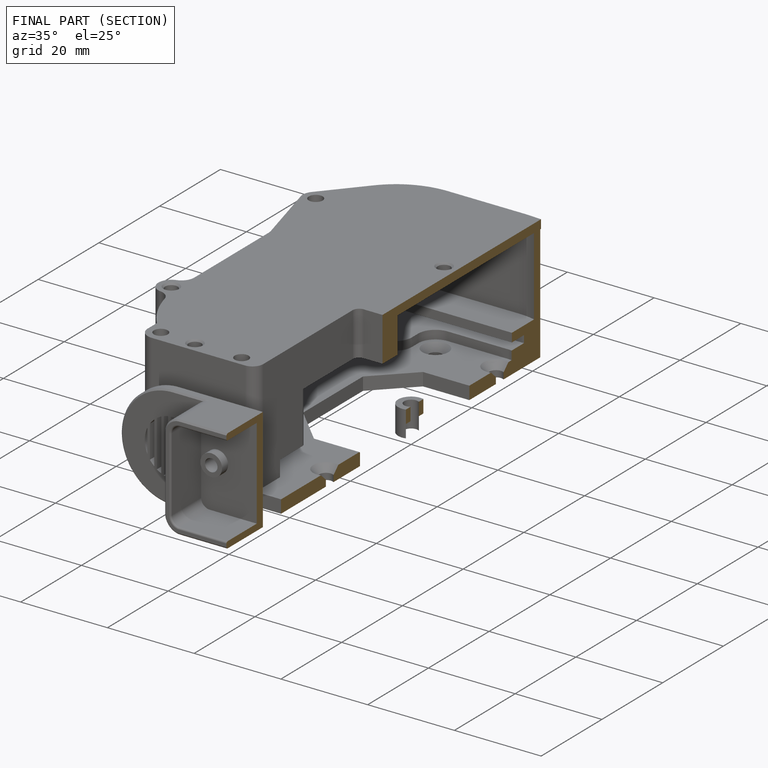
[diagram: finished part — half-section view (interior)]
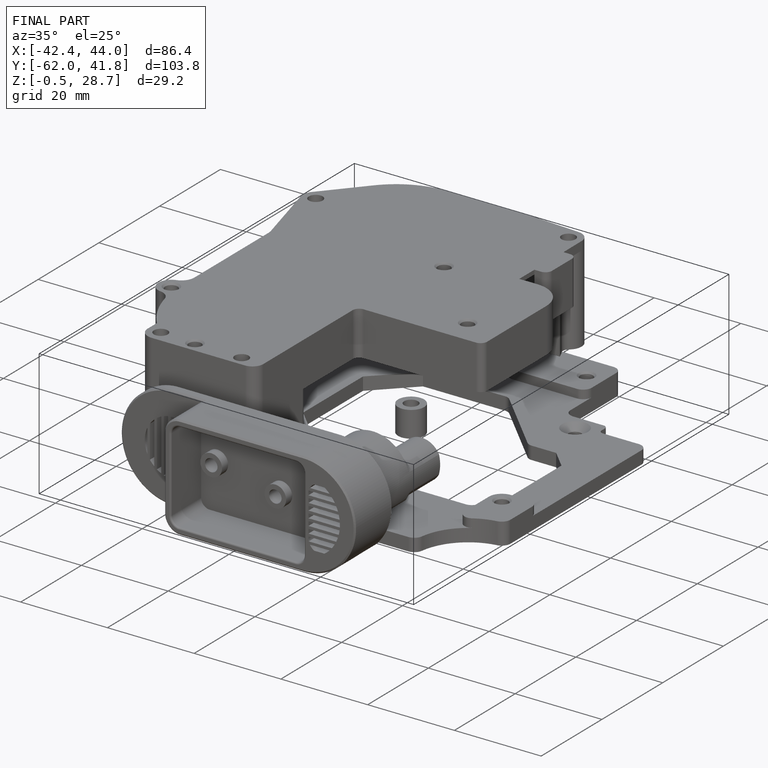
[diagram: finished part — iso view with bounding-box wireframe]
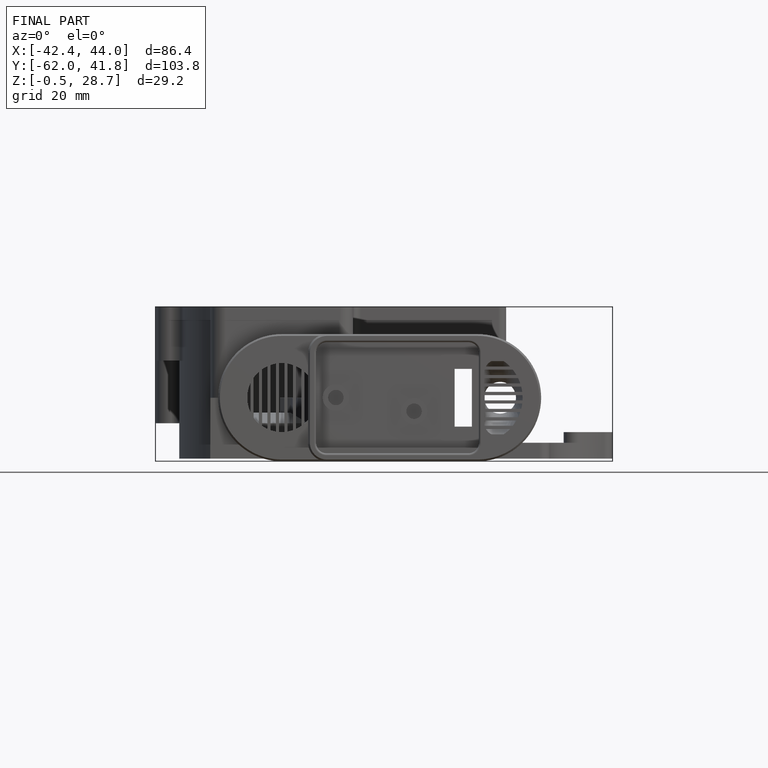
[diagram: finished part — front view with bounding-box wireframe]
